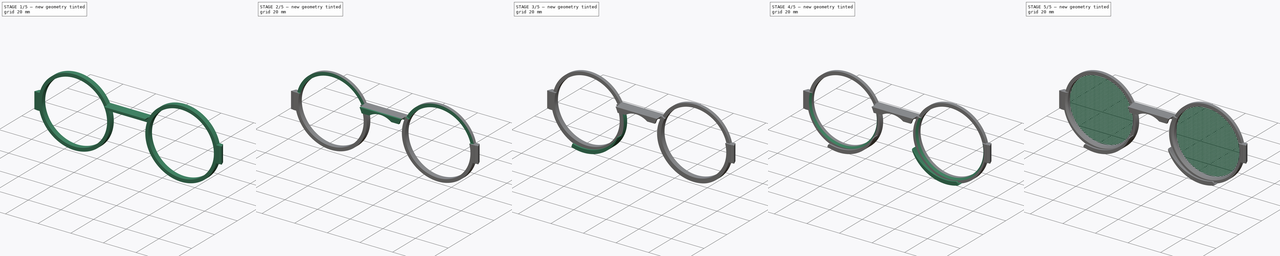
[diagram: build sequence overview — one tinted view per stage of 5, left to right]
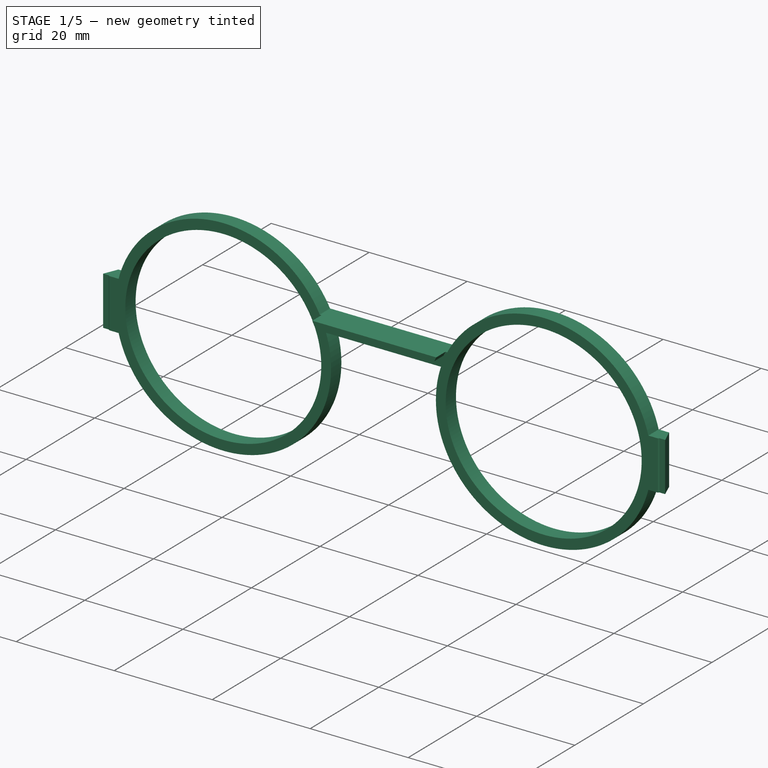
[diagram: stage 1 of 5 — iso view after this stage's code; geometry added in this stage tinted green]
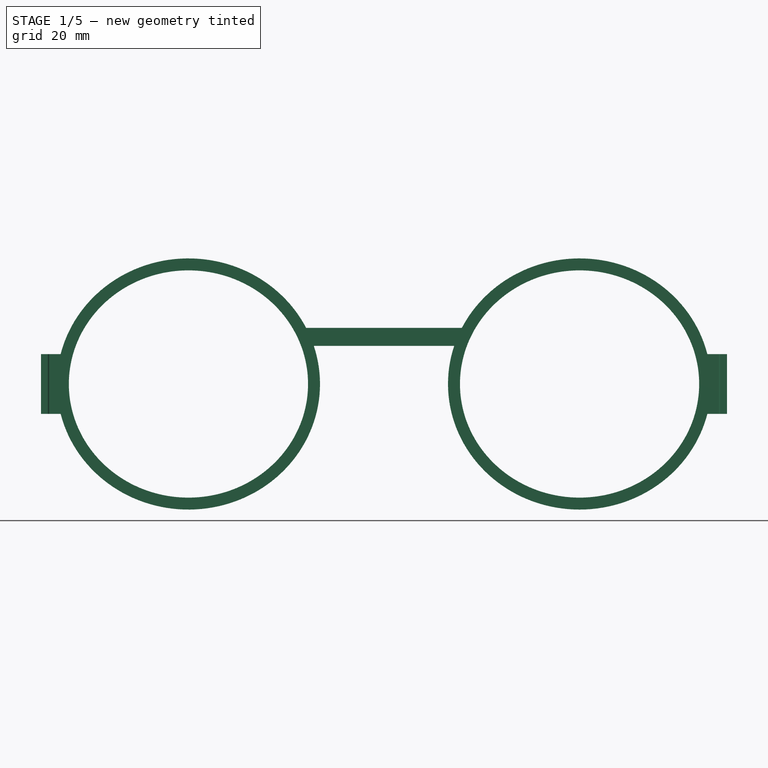
[diagram: stage 1 of 5 — front view after this stage's code; geometry added in this stage tinted green]
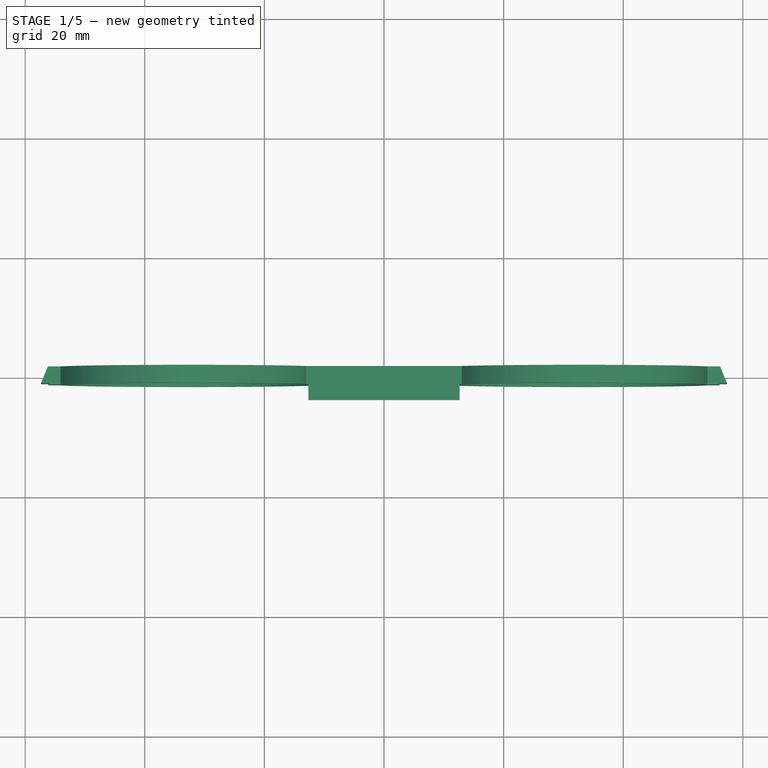
[diagram: stage 1 of 5 — top view after this stage's code; geometry added in this stage tinted green]
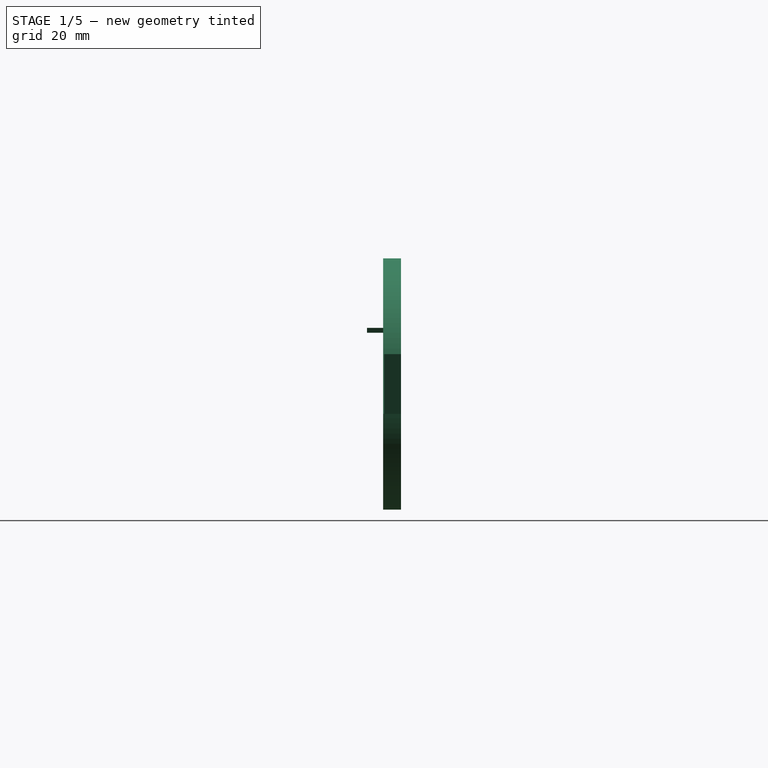
[diagram: stage 1 of 5 — right view after this stage's code; geometry added in this stage tinted green]
FCSTD DOCUMENT  (FreeCAD 1.1R39288 (Git))
Label: subframe
License: All rights reserved
LicenseURL: http://en.wikipedia.org/wiki/All_rights_reserved
objects: Sketcher::SketchObject×11, PartDesign::Pad×10, PartDesign::Mirrored×5, PartDesign::Pocket×3, PartDesign::Chamfer×1, PartDesign::Fillet×1, PartDesign::Body×1
note: 78 computed .brp shape members not serialized (recipe doc carries the construction recipe); baked Part::Feature solids carry a one-line shape summary decoded from their .brp

FEATURE [Sketcher::SketchObject] Sketch
  ArcFitTolerance = 1e-06
  AttachmentSupport = -> [XZ_Plane]
  FullyConstrained = true
  MakeInternals = false
  MapMode = 5
  Placement = pos=(0,0,0) rot=(1,0,0;1.5708rad)
  sketch-geometry (24):
    g0: Ellipse CenterX=-32.7 CenterY=0 CenterZ=0 NormalX=0 NormalY=0 NormalZ=1 MajorRadius=20 MinorRadius=19 AngleXU=-2.2e-15
    g1: LineSegment [constr] StartX=-12.7 StartY=0 StartZ=0 EndX=-52.7 EndY=0 EndZ=0
    g2: LineSegment [constr] StartX=-32.7 StartY=19 StartZ=0 EndX=-32.7 EndY=-19 EndZ=0
    g3: GeomPoint [constr] X=-26.455 Y=-1.37e-14 Z=0
    g4: GeomPoint [constr] X=-38.945 Y=1.39e-14 Z=0
    g5: Ellipse CenterX=32.7 CenterY=0 CenterZ=0 NormalX=0 NormalY=0 NormalZ=1 MajorRadius=20 MinorRadius=19 AngleXU=0
    g6: LineSegment [constr] StartX=52.7 StartY=0 StartZ=0 EndX=12.7 EndY=0 EndZ=0
    g7: LineSegment [constr] StartX=32.7 StartY=19 StartZ=0 EndX=32.7 EndY=-19 EndZ=0
    g8: GeomPoint [constr] X=38.945 Y=0 Z=0
    g9: GeomPoint [constr] X=26.455 Y=0 Z=0
    g10: ArcOfEllipse CenterX=-32.7 CenterY=0 CenterZ=0 NormalX=0 NormalY=0 NormalZ=1 MajorRadius=22 MinorRadius=21 AngleXU=-4.6e-15 StartAngle=0.410218 EndAngle=6.59162
    g11: LineSegment [constr] StartX=-10.7 StartY=0 StartZ=0 EndX=-54.7 EndY=0 EndZ=0
    g12: LineSegment [constr] StartX=-32.7 StartY=21 StartZ=0 EndX=-32.7 EndY=-21 EndZ=0
    g13: GeomPoint [constr] X=-26.1426 Y=-3.02e-14 Z=0
    g14: GeomPoint [constr] X=-39.2574 Y=3e-14 Z=0
    g15: ArcOfEllipse CenterX=32.7 CenterY=0 CenterZ=0 NormalX=0 NormalY=0 NormalZ=1 MajorRadius=22 MinorRadius=21 AngleXU=0 StartAngle=2.83315 EndAngle=9.01456
    g16: LineSegment [constr] StartX=54.7 StartY=0 StartZ=0 EndX=10.7 EndY=0 EndZ=0
    g17: LineSegment [constr] StartX=32.7 StartY=21 StartZ=0 EndX=32.7 EndY=-21 EndZ=0
    g18: GeomPoint [constr] X=39.2574 Y=0 Z=0
    g19: GeomPoint [constr] X=26.1426 Y=-3e-16 Z=0
    g20: LineSegment StartX=-11.7382 StartY=6.375 StartZ=0 EndX=11.7382 EndY=6.375 EndZ=0
    g21: LineSegment StartX=-12.5253 StartY=8.375 StartZ=0 EndX=12.5253 EndY=8.375 EndZ=0
    g22: Circle CenterX=-32.7 CenterY=0 CenterZ=0 NormalX=0 NormalY=0 NormalZ=1 AngleXU=0 Radius=0.5
    g23: Circle CenterX=32.7 CenterY=0 CenterZ=0 NormalX=0 NormalY=0 NormalZ=1 AngleXU=0 Radius=0.5
  constraints (33):
    c: InternalAlignment(g1-g4 -> g0) x4
    c: PointOnObject(g0,g-1)
    c: Horizontal(g1)
    c: DistanceX(g1,g1) = 40
    c: DistanceY(g2,g2) = 38
    c: InternalAlignment(g6-g9 -> g5) x4
    c: Horizontal(g6)
    c: Equal(g1,g6)
    c: Equal(g7,g2)
    c: Symmetric(g5,g0,g-2)
    c: DistanceX(g0,g5) = 65.4
    c: InternalAlignment(g11-g14 -> g10) x4
    c: Coincident(g10,g0)
    c: Horizontal(g11)
    c: DistanceX(g1,g11) = 2
    c: DistanceY(g12,g2) = 2
    c: InternalAlignment(g16-g19 -> g15) x4
    c: Symmetric(g0,g15,g-2)
    c: Horizontal(g16)
    c: Equal(g16,g11)
    c: Equal(g17,g12)
    c: Horizontal(g10,g15)
    c: Horizontal(g15,g10)
    c: Coincident(g20,g10)
    c: Coincident(g20,g15)
    c: Coincident(g21,g10)
    c: Coincident(g21,g15)
    c: Distance(g20,g21) = 2
    c: Distance(g-1,g20) = 6.375
    c: Coincident(g22,g0)
    c: Diameter(g22) = 1
    c: Equal(g22,g23)
    c: Symmetric(g22,g23,g-2)
FEATURE [PartDesign::Pad] Pad  label="Lenses holder"
  Direction = (0,-1,2e-16)
  Length = 3
  Length2 = 10
  Midplane = true
  Placement = pos=(0,0,0) rot=(1,0,0;1.5708rad)
  Profile = -> Sketch
  ReferenceAxis = -> Sketch [N_Axis]
  Suppressed = false
  Type = 0
FEATURE [Sketcher::SketchObject] Sketch012
  ArcFitTolerance = 1e-06
  AttachmentSupport = -> [XY_Plane]
  ExternalGeometry = -> [Pad]
  FullyConstrained = true
  MakeInternals = false
  MapMode = 5
  sketch-geometry (26):
    g0: LineSegment StartX=-53.2 StartY=1.5 StartZ=0 EndX=-56.2 EndY=1.5 EndZ=0
    g1: LineSegment [constr] StartX=-56.2 StartY=1.5 StartZ=0 EndX=-56.2 EndY=-1.5 EndZ=0
    g2: LineSegment StartX=-53.2 StartY=-1.5 StartZ=0 EndX=-53.2 EndY=1.5 EndZ=0
    g3: LineSegment StartX=53.2 StartY=-1.5 StartZ=0 EndX=53.2 EndY=1.5 EndZ=0
    g4: LineSegment StartX=53.2 StartY=1.5 StartZ=0 EndX=56.2 EndY=1.5 EndZ=0
    g5: LineSegment [constr] StartX=-54.7 StartY=-3.5 StartZ=0 EndX=-10.7 EndY=-3.5 EndZ=0
    g6: Circle [constr] CenterX=-56.2 CenterY=-5 CenterZ=0 NormalX=0 NormalY=0 NormalZ=1 AngleXU=0 Radius=1.5
    g7: ArcOfCircle [constr] CenterX=-53.2 CenterY=-5 CenterZ=0 NormalX=0 NormalY=0 NormalZ=1 AngleXU=0 Radius=1.5 StartAngle=1.5708 EndAngle=3.14159
    g8: LineSegment [constr] StartX=-58.7 StartY=-5 StartZ=0 EndX=-74.5344 EndY=-90 EndZ=0
    g9: LineSegment [constr] StartX=-58.7 StartY=-5 StartZ=0 EndX=-57.7 EndY=-5 EndZ=0
    g10: LineSegment [constr] StartX=-74.5344 StartY=-90 StartZ=0 EndX=-72.5682 EndY=-90.3663 EndZ=0
    g11: LineSegment [constr] StartX=-72.5682 StartY=-90.3663 StartZ=0 EndX=-72.5 EndY=-90 EndZ=0
    g12: LineSegment [constr] StartX=72.5682 StartY=-90.3663 StartZ=0 EndX=72.5 EndY=-90 EndZ=0
    g13: ArcOfEllipse [constr] CenterX=-56.2 CenterY=-6.90806 CenterZ=0 NormalX=0 NormalY=0 NormalZ=1 MajorRadius=5.40806 MinorRadius=2.67182 AngleXU=1.5708 StartAngle=1.11969e-07 EndAngle=1.21022
    g14: GeomPoint [constr] X=-56.2 Y=-1.5 Z=0
    g15: LineSegment StartX=-56.2 StartY=1.5 StartZ=0 EndX=-57.362 EndY=-1.3 EndZ=0
    g16: LineSegment StartX=-57.362 StartY=-1.3 StartZ=0 EndX=-56.2 EndY=-1.3 EndZ=0
    g17: LineSegment [constr] StartX=-57.362 StartY=-1.3 StartZ=0 EndX=-58.2458 EndY=-3.4296 EndZ=0
    g18: LineSegment StartX=57.362 StartY=-1.3 StartZ=0 EndX=56.2 EndY=-1.3 EndZ=0
    g19: LineSegment StartX=56.2 StartY=1.5 StartZ=0 EndX=57.362 EndY=-1.3 EndZ=0
    g20: LineSegment StartX=-56.2 StartY=-1.3 StartZ=0 EndX=-56 EndY=-1.5 EndZ=0
    g21: LineSegment [constr] StartX=-56.2 StartY=-1.5 StartZ=0 EndX=-56 EndY=-1.5 EndZ=0
    g22: GeomPoint [constr] X=-56.2 Y=-1.5 Z=0
    g23: LineSegment StartX=56.2 StartY=-1.3 StartZ=0 EndX=56 EndY=-1.5 EndZ=0
    g24: LineSegment StartX=-53.2 StartY=-1.5 StartZ=0 EndX=-56 EndY=-1.5 EndZ=0
    g25: LineSegment StartX=53.2 StartY=-1.5 StartZ=0 EndX=56 EndY=-1.5 EndZ=0
  constraints (71):
    c: Coincident(g0,g1)
    c: Coincident(g2,g0)
    c: Horizontal(g0)
    c: Vertical(g2)
    c: Coincident(g3,g4)
    c: Symmetric(g3,g0,g-2)
    c: Horizontal(g5)
    c: Vertical(g-3,g5)
    c: Vertical(g-3,g5)
    c: Diameter(g6) = 3
    c: Distance(g-3,g5) = 2
    c: Tangent(g5,g6)
    c: PointOnObject(g6,g1)
    c: Symmetric(g1,g0,g-1)
    c: PointOnObject(g7,g6)
    c: PointOnObject(g7,g5)
    c: Horizontal(g6,g7)
    c: Vertical(g7,g7)
    c: Horizontal(g7,g7)
    c: Vertical(g5,g7)
    c: PointOnObject(g7,g2)
    c: Coincident(g9,g8)
    c: PointOnObject(g9,g6)
    c: Horizontal(g9)
    c: PointOnObject(g6,g9)
    c: DistanceX(g9,g9) = 1
    c: Coincident(g10,g8)
    c: Coincident(g11,g10)
    c: Perpendicular(g10,g8)
    c: Parallel(g8,g11)
    c: Horizontal(g8,g11)
    c: Distance(g10,g10) = 2
    c: Symmetric(g11,g12,g-2)
    c: Symmetric(g11,g12,g-2)
    c: DistanceX(g11,g12) = 145
    c: DistanceY(g11,g6) = 85
    c: Coincident(g1,g13)
    c: PointOnObject(g14,g13)
    c: Tangent(g13,g8) = -1.5708
    c: Vertical(g13,g6)
    c: Coincident(g15,g0)
    c: Coincident(g16,g15)
    c: PointOnObject(g16,g1)
    c: Horizontal(g16)
    c: Coincident(g17,g15)
    c: Tangent(g17,g13) = -1.5708
    c: PointOnObject(g17,g15)
    c: Symmetric(g15,g19,g-2)
    c: Symmetric(g15,g19,g-2)
    c: Symmetric(g16,g18,g-2)
    c: Symmetric(g16,g18,g-2)
    c: Coincident(g20,g16)
    c: Angle(g1,g20) = 0.785398
    c: Coincident(g20,g21)
    c: Coincident(g14,g21)
    c: PointOnObject(g14,g1)
    c: PointOnObject(g22,g13)
    c: PointOnObject(g22,g21)
    c: Tangent(g13,g21,g22) = 1.5708
    c: Symmetric(g20,g23,g-2)
    c: Symmetric(g20,g23,g-2)
    c: Coincident(g24,g2)
    c: Coincident(g20,g24)
    c: Horizontal(g24)
    c: PointOnObject(g-3,g24)
    c: Distance(g16,g24) = 0.2
    c: Symmetric(g24,g25,g-2)
    c: Symmetric(g24,g25,g-2)
    c: PointOnObject(g22,g24)
    c: Coincident(g3,g25)
    c: Coincident(g4,g19)
FEATURE [PartDesign::Pad] Pad003  label="End pieces"
  BaseFeature = -> Pad
  Direction = (0,0,1)
  Length = 10
  Length2 = 10
  Midplane = true
  Placement = pos=(0,0,0) rot=(1,0,0;1.5708rad)
  Profile = -> Sketch012
  ReferenceAxis = -> Sketch012 [N_Axis]
  Refine = true
  Suppressed = false
  Type = 0
FEATURE [Sketcher::SketchObject] Sketch021  label="Nose bridge hook master sketch"
  ArcFitTolerance = 1e-06
  AttachmentSupport = -> [Pad003]
  ExternalGeometry = -> [Sketch]
  FullyConstrained = true
  MakeInternals = false
  MapMode = 5
  Placement = pos=(0,-1.5,7e-16) rot=(1,0,0;1.5708rad)
  sketch-geometry (45):
    g0: ArcOfEllipse CenterX=-32.7 CenterY=7e-16 CenterZ=0 NormalX=0 NormalY=0 NormalZ=1 MajorRadius=22.3233 MinorRadius=21.3233 AngleXU=-3.14159 StartAngle=3.4452 EndAngle=3.54523
    g1: LineSegment [constr] StartX=-55.0233 StartY=0 StartZ=0 EndX=-10.3767 EndY=1.3e-15 EndZ=0
    g2: LineSegment [constr] StartX=-32.7 StartY=-21.3233 StartZ=0 EndX=-32.7 EndY=21.3233 EndZ=0
    g3: GeomPoint [constr] X=-39.3066 Y=-1e-16 Z=0
    g4: GeomPoint [constr] X=-26.0934 Y=9e-16 Z=0
    g5: LineSegment [constr] StartX=-55.0233 StartY=0 StartZ=0 EndX=-54.7 EndY=0 EndZ=0
    g6: ArcOfEllipse CenterX=32.7 CenterY=7e-16 CenterZ=0 NormalX=0 NormalY=0 NormalZ=1 MajorRadius=22.3233 MinorRadius=21.3233 AngleXU=3.14159 StartAngle=5.87955 EndAngle=5.97957
    g7: LineSegment [constr] StartX=10.3767 StartY=1.3e-15 StartZ=0 EndX=55.0233 EndY=0 EndZ=0
    g8: LineSegment [constr] StartX=32.7 StartY=-21.3233 StartZ=0 EndX=32.7 EndY=21.3233 EndZ=0
    g9: GeomPoint [constr] X=26.0934 Y=1.5e-15 Z=0
    g10: GeomPoint [constr] X=39.3066 Y=5e-16 Z=0
    g11: LineSegment StartX=-12.1706 StartY=8.375 StartZ=0 EndX=12.1706 EndY=8.375 EndZ=0
    g12: LineSegment [constr] StartX=-32.7 StartY=21.3233 StartZ=0 EndX=-32.7 EndY=21 EndZ=0
    g13: ArcOfEllipse CenterX=-32.7 CenterY=7e-16 CenterZ=0 NormalX=0 NormalY=0 NormalZ=1 MajorRadius=22.3233 MinorRadius=21.3233 AngleXU=-3.14159 StartAngle=3.54523 EndAngle=3.55545
    g14: LineSegment [constr] StartX=-55.0233 StartY=0 StartZ=0 EndX=-10.3767 EndY=1.3e-15 EndZ=0
    g15: LineSegment [constr] StartX=-32.7 StartY=-21.3233 StartZ=0 EndX=-32.7 EndY=21.3233 EndZ=0
    g16: GeomPoint [constr] X=-39.3066 Y=-1e-16 Z=0
    g17: GeomPoint [constr] X=-26.0934 Y=9e-16 Z=0
    g18: ArcOfEllipse CenterX=32.7 CenterY=7e-16 CenterZ=0 NormalX=0 NormalY=0 NormalZ=1 MajorRadius=22.3233 MinorRadius=21.3233 AngleXU=3.14159 StartAngle=5.86933 EndAngle=5.87955
    g19: LineSegment [constr] StartX=10.3767 StartY=1.3e-15 StartZ=0 EndX=55.0233 EndY=0 EndZ=0
    g20: LineSegment [constr] StartX=32.7 StartY=-21.3233 StartZ=0 EndX=32.7 EndY=21.3233 EndZ=0
    g21: GeomPoint [constr] X=26.0934 Y=1.5e-15 Z=0
    g22: GeomPoint [constr] X=39.3066 Y=5e-16 Z=0
    g23: LineSegment StartX=-12.2613 StartY=8.575 StartZ=0 EndX=12.2613 EndY=8.575 EndZ=0
    g24: ArcOfEllipse CenterX=-32.7 CenterY=7e-16 CenterZ=0 NormalX=0 NormalY=0 NormalZ=1 MajorRadius=22.3233 MinorRadius=21.3233 AngleXU=-3.14159 StartAngle=3.55545 EndAngle=3.59681
    g25: LineSegment [constr] StartX=-55.0233 StartY=0 StartZ=0 EndX=-10.3767 EndY=1.3e-15 EndZ=0
    g26: LineSegment [constr] StartX=-32.7 StartY=-21.3233 StartZ=0 EndX=-32.7 EndY=21.3233 EndZ=0
    g27: GeomPoint [constr] X=-39.3066 Y=-1e-16 Z=0
    g28: GeomPoint [constr] X=-26.0934 Y=9e-16 Z=0
    g29: ArcOfEllipse CenterX=32.7 CenterY=7e-16 CenterZ=0 NormalX=0 NormalY=0 NormalZ=1 MajorRadius=22.3233 MinorRadius=21.3233 AngleXU=3.14159 StartAngle=5.82797 EndAngle=5.86933
    g30: LineSegment [constr] StartX=10.3767 StartY=1.3e-15 StartZ=0 EndX=55.0233 EndY=0 EndZ=0
    g31: LineSegment [constr] StartX=32.7 StartY=-21.3233 StartZ=0 EndX=32.7 EndY=21.3233 EndZ=0
    g32: GeomPoint [constr] X=26.0934 Y=1.5e-15 Z=0
    g33: GeomPoint [constr] X=39.3066 Y=5e-16 Z=0
    g34: LineSegment StartX=-12.65 StartY=9.375 StartZ=0 EndX=12.65 EndY=9.375 EndZ=0
    g35: LineSegment StartX=-12.65 StartY=9.375 StartZ=0 EndX=-13.014 EndY=9.375 EndZ=0
    g36: LineSegment StartX=-13.014 StartY=9.375 StartZ=0 EndX=-12.5253 EndY=8.375 EndZ=0
    g37: LineSegment StartX=-12.5253 StartY=8.375 StartZ=0 EndX=-12.1706 EndY=8.375 EndZ=0
    g38: LineSegment StartX=13.014 StartY=9.375 StartZ=0 EndX=12.5253 EndY=8.375 EndZ=0
    g39: LineSegment StartX=12.65 StartY=9.375 StartZ=0 EndX=13.014 EndY=9.375 EndZ=0
    g40: LineSegment StartX=12.5253 StartY=8.375 StartZ=0 EndX=12.1706 EndY=8.375 EndZ=0
    g41: LineSegment StartX=-11.3977 StartY=6.375 StartZ=0 EndX=-6.75 EndY=6.375 EndZ=0
    g42: LineSegment StartX=-6.75 StartY=6.375 StartZ=0 EndX=6.75 EndY=6.375 EndZ=0
    g43: LineSegment StartX=6.75 StartY=6.375 StartZ=0 EndX=11.3977 EndY=6.375 EndZ=0
    g44: ArcOfCircle CenterX=-1.9e-15 CenterY=-2.88011 CenterZ=0 NormalX=0 NormalY=0 NormalZ=1 AngleXU=0 Radius=11.4551 StartAngle=0.940658 EndAngle=2.20093
  constraints (73):
    c: InternalAlignment(g1-g4 -> g0) x4
    c: Coincident(g0,g-3)
    c: Coincident(g5,g1)
    c: PointOnObject(g5,g-3)
    c: PointOnObject(g5,g1)
    c: PointOnObject(g1,g-1)
    c: PointOnObject(g0,g-5)
    c: InternalAlignment(g7-g10 -> g6) x4
    c: Symmetric(g7,g1,g-2)
    c: Symmetric(g0,g6,g-2)
    c: Horizontal(g2,g8)
    c: Horizontal(g0,g6)
    c: Horizontal(g0,g6)
    c: Coincident(g43,g6)
    c: PointOnObject(g0,g-4)
    c: Coincident(g11,g0)
    c: Coincident(g11,g6)
    c: Coincident(g41,g0)
    c: Coincident(g12,g2)
    c: PointOnObject(g12,g-3)
    c: Equal(g12,g5)
    c: PointOnObject(g12,g2)
    c: InternalAlignment(g14-g17 -> g13) x4
    c: Coincident(g13,g0)
    c: Coincident(g1,g14)
    c: Horizontal(g2,g15)
    c: PointOnObject(g13,g11)
    c: Distance(g13,g11) = 0.2
    c: InternalAlignment(g19-g22 -> g18) x4
    c: Symmetric(g18,g0,g-2)
    c: Symmetric(g19,g1,g-2)
    c: Horizontal(g20,g2)
    c: Horizontal(g18,g13)
    c: Horizontal(g13,g18)
    c: Coincident(g23,g13)
    c: Coincident(g23,g18)
    c: InternalAlignment(g25-g28 -> g24) x4
    c: Coincident(g24,g0)
    c: Coincident(g1,g25)
    c: Horizontal(g2,g26)
    c: PointOnObject(g24,g23)
    c: InternalAlignment(g30-g33 -> g29) x4
    c: Symmetric(g29,g0,g-2)
    c: Symmetric(g30,g1,g-2)
    c: Horizontal(g31,g2)
    c: Horizontal(g29,g24)
    c: Horizontal(g24,g29)
    c: Coincident(g34,g24)
    c: Coincident(g34,g29)
    c: Coincident(g35,g24)
    c: PointOnObject(g35,g-3)
    c: Horizontal(g35)
    c: Coincident(g35,g36)
    c: Coincident(g36,g-4)
    c: Coincident(g37,g36)
    c: Coincident(g37,g13)
    c: Symmetric(g35,g39,g-2)
    c: Symmetric(g35,g39,g-2)
    c: Symmetric(g36,g38,g-2)
    c: Symmetric(g36,g38,g-2)
    c: Symmetric(g37,g40,g-2)
    c: Symmetric(g37,g40,g-2)
    c: Coincident(g41,g42)
    c: Coincident(g42,g43)
    c: Horizontal(g41)
    c: Horizontal(g43)
    c: Equal(g41,g43)
    c: Coincident(g41,g44)
    c: Coincident(g42,g44)
    c: Tangent(g23,g44)
    c: DistanceX(g41,g42) = 13.5
    c: DistanceX(g34,g34) = 25.3
    c: Distance(g34,g23) = 0.8
FEATURE [PartDesign::Pad] Pad007  label="Nose bridge hook #1"
  BaseFeature = -> Pad003
  Direction = (0,-1,2e-16)
  Length = 10
  Length2 = 10
  Placement = pos=(0,0,0) rot=(1,0,0;1.5708rad)
  Profile = -> Sketch021 [Edge7,Edge6,Edge1,Edge8,Edge11,Edge17,Edge18,Edge19]
  ReferenceAxis = -> Sketch021 [N_Axis]
  Refine = true
  Suppressed = false
  Type = 3
  UpToFace = -> Pad003 [Face17]
FEATURE [PartDesign::Pad] Pad005  label="Nose bridge hook #2"
  BaseFeature = -> Pad007
  Direction = (0,-1,2e-16)
  Length = 2.7
  Length2 = 10
  Placement = pos=(0,0,0) rot=(1,0,0;1.5708rad)
  Profile = -> Sketch021 [Edge5,Edge1,Edge3,Edge2]
  ReferenceAxis = -> Sketch021 [N_Axis]
  Refine = true
  Suppressed = false
  Type = 0
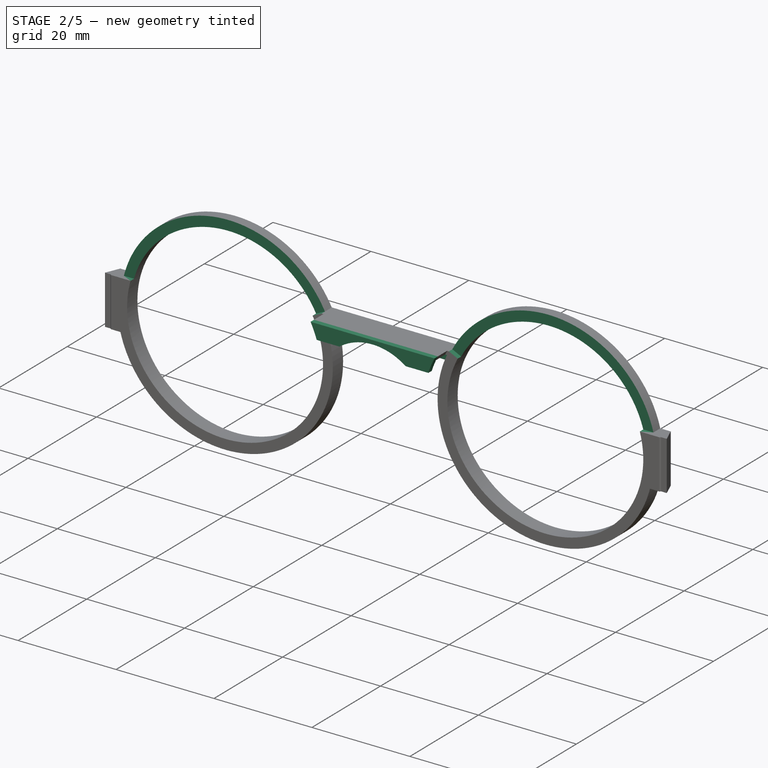
[diagram: stage 2 of 5 — iso view after this stage's code; geometry added in this stage tinted green]
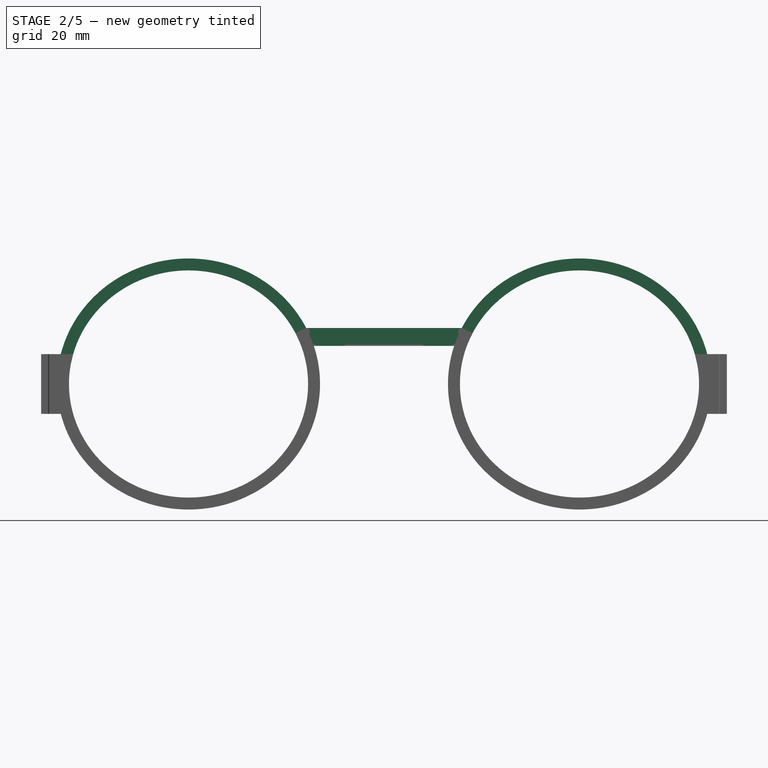
[diagram: stage 2 of 5 — front view after this stage's code; geometry added in this stage tinted green]
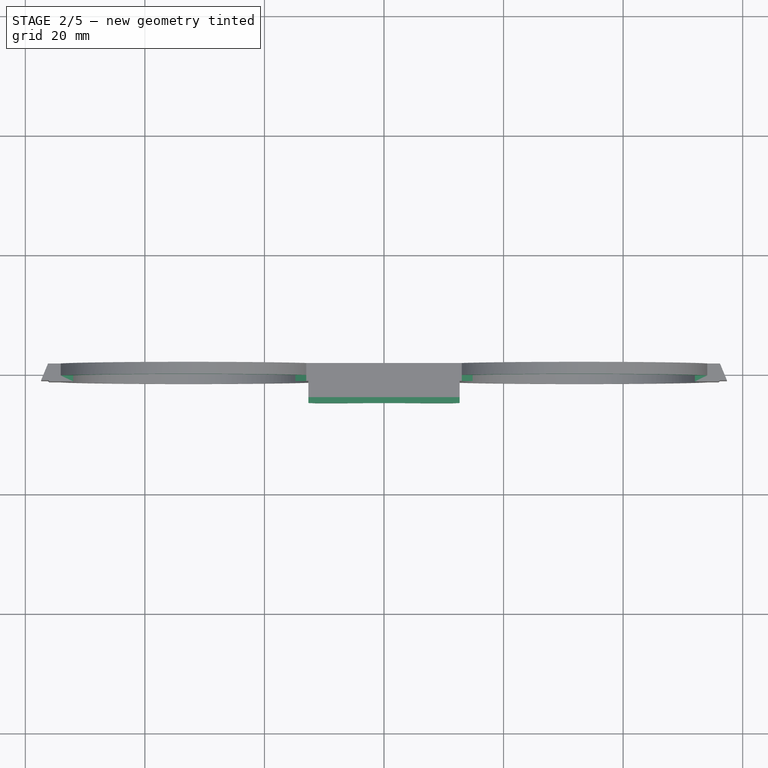
[diagram: stage 2 of 5 — top view after this stage's code; geometry added in this stage tinted green]
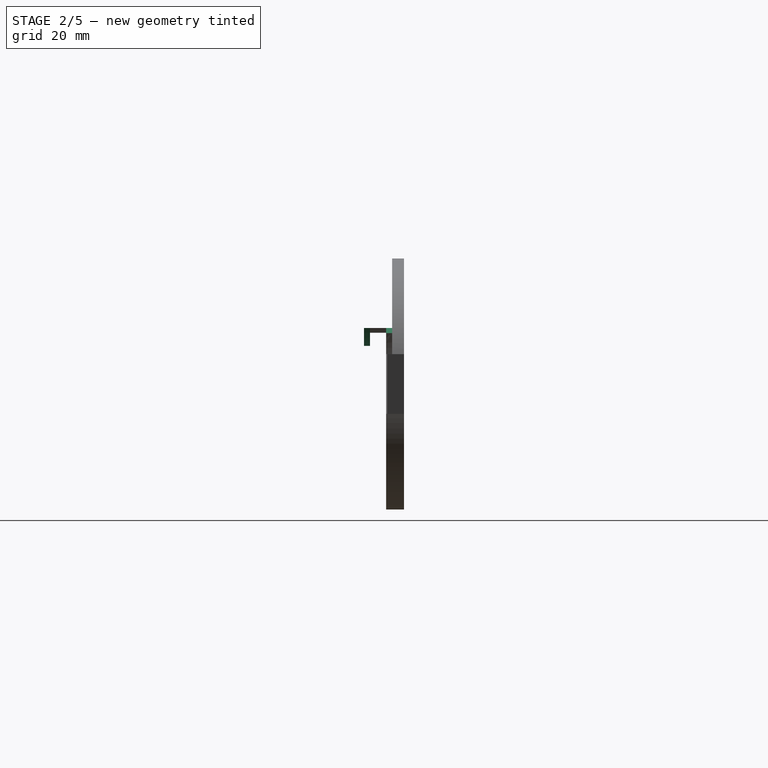
[diagram: stage 2 of 5 — right view after this stage's code; geometry added in this stage tinted green]
FEATURE [Sketcher::SketchObject] Sketch022
  ArcFitTolerance = 1e-06
  AttachmentSupport = -> [Pad005]
  ExternalGeometry = -> [Sketch021]
  FullyConstrained = true
  MakeInternals = false
  MapMode = 5
  Placement = pos=(0,-4.2,0) rot=(1,0,0;1.5708rad)
  sketch-geometry (14):
    g0: ArcOfCircle CenterX=-1.9e-15 CenterY=-2.88011 CenterZ=0 NormalX=0 NormalY=0 NormalZ=1 AngleXU=0 Radius=11.4551 StartAngle=0.940658 EndAngle=2.20093
    g1: LineSegment StartX=-11.3977 StartY=6.375 StartZ=0 EndX=-6.75 EndY=6.375 EndZ=0
    g2: LineSegment StartX=11.3977 StartY=6.375 StartZ=0 EndX=6.75 EndY=6.375 EndZ=0
    g3: ArcOfEllipse CenterX=-32.7 CenterY=8e-16 CenterZ=0 NormalX=0 NormalY=0 NormalZ=1 MajorRadius=22.3233 MinorRadius=21.3233 AngleXU=-3.14159 StartAngle=3.4452 EndAngle=3.59681
    g4: LineSegment [constr] StartX=-55.0233 StartY=0 StartZ=0 EndX=-10.3767 EndY=1.6e-15 EndZ=0
    g5: LineSegment [constr] StartX=-32.7 StartY=-21.3233 StartZ=0 EndX=-32.7 EndY=21.3233 EndZ=0
    g6: GeomPoint [constr] X=-39.3066 Y=0 Z=0
    g7: GeomPoint [constr] X=-26.0934 Y=1.1e-15 Z=0
    g8: ArcOfEllipse CenterX=32.7 CenterY=8e-16 CenterZ=0 NormalX=0 NormalY=0 NormalZ=1 MajorRadius=22.3233 MinorRadius=21.3233 AngleXU=-3.14159 StartAngle=5.82797 EndAngle=5.97957
    g9: LineSegment [constr] StartX=10.3767 StartY=0 StartZ=0 EndX=55.0233 EndY=1.6e-15 EndZ=0
    g10: LineSegment [constr] StartX=32.7 StartY=-21.3233 StartZ=0 EndX=32.7 EndY=21.3233 EndZ=0
    g11: GeomPoint [constr] X=26.0934 Y=0 Z=0
    g12: GeomPoint [constr] X=39.3066 Y=1.1e-15 Z=0
    g13: LineSegment StartX=-12.65 StartY=9.375 StartZ=0 EndX=12.65 EndY=9.375 EndZ=0
  constraints (21):
    c: Coincident(g0,g-5)
    c: Coincident(g0,g-5)
    c: Vertical(g-5,g0)
    c: Coincident(g1,g-4)
    c: Coincident(g1,g0)
    c: Symmetric(g1,g2,g-2)
    c: Symmetric(g1,g2,g-2)
    c: InternalAlignment(g4-g7 -> g3) x4
    c: Coincident(g3,g-3)
    c: Equal(g3,g-3)
    c: PointOnObject(g4,g-1)
    c: PointOnObject(g3,g1)
    c: PointOnObject(g3,g-6)
    c: InternalAlignment(g9-g12 -> g8) x4
    c: Symmetric(g8,g3,g-2)
    c: Equal(g8,g-3)
    c: PointOnObject(g9,g-1)
    c: PointOnObject(g8,g2)
    c: PointOnObject(g8,g-6)
    c: Coincident(g13,g3)
    c: Coincident(g13,g8)
FEATURE [PartDesign::Pad] Pad006  label="Nose bridge hook #3"
  BaseFeature = -> Pad005
  Direction = (0,-1,2e-16)
  Length = 1
  Length2 = 10
  Placement = pos=(0,0,0) rot=(1,0,0;1.5708rad)
  Profile = -> Sketch022
  ReferenceAxis = -> Sketch022 [N_Axis]
  Refine = true
  Suppressed = false
  Type = 0
FEATURE [Sketcher::SketchObject] Sketch025
  ArcFitTolerance = 1e-06
  AttachmentOffset = pos=(0,0,-0.8) rot=(0,0,1;3.14159rad)
  AttachmentSupport = -> [Pad006]
  ExternalGeometry = -> [Sketch,Sketch021]
  FullyConstrained = true
  MakeInternals = false
  MapMode = 5
  Placement = pos=(0,0.7,-7e-16) rot=(0,0.707107,0.707107;3.14159rad)
  sketch-geometry (12):
    g0: ArcOfEllipse CenterX=32.7 CenterY=4.8e-15 CenterZ=0 NormalX=0 NormalY=0 NormalZ=1 MajorRadius=22 MinorRadius=21 AngleXU=-3.14159 StartAngle=5.92434 EndAngle=5.97475
    g1: LineSegment [constr] StartX=10.7 StartY=0 StartZ=0 EndX=54.7 EndY=9.6e-15 EndZ=0
    g2: LineSegment [constr] StartX=32.7 StartY=-21 StartZ=0 EndX=32.7 EndY=21 EndZ=0
    g3: GeomPoint [constr] X=26.1426 Y=4e-15 Z=0
    g4: GeomPoint [constr] X=39.2574 Y=6.2e-15 Z=0
    g5: ArcOfEllipse CenterX=-32.7 CenterY=4.8e-15 CenterZ=0 NormalX=0 NormalY=0 NormalZ=1 MajorRadius=22 MinorRadius=21 AngleXU=-2e-16 StartAngle=0.308439 EndAngle=0.358842
    g6: LineSegment [constr] StartX=-10.7 StartY=0 StartZ=0 EndX=-54.7 EndY=9.6e-15 EndZ=0
    g7: LineSegment [constr] StartX=-32.7 StartY=21 StartZ=0 EndX=-32.7 EndY=-21 EndZ=0
    g8: GeomPoint [constr] X=-26.1426 Y=3.5e-15 Z=0
    g9: GeomPoint [constr] X=-39.2574 Y=6.2e-15 Z=0
    g10: LineSegment StartX=-12.1013 StartY=7.375 StartZ=0 EndX=12.1013 EndY=7.375 EndZ=0
    g11: LineSegment StartX=-11.7382 StartY=6.375 StartZ=0 EndX=11.7382 EndY=6.375 EndZ=0
  constraints (16):
    c: InternalAlignment(g1-g4 -> g0) x4
    c: Coincident(g0,g-3)
    c: PointOnObject(g1,g-1)
    c: Equal(g0,g-3)
    c: PointOnObject(g0,g-5)
    c: Distance(g0,g-4) = 2
    c: InternalAlignment(g6-g9 -> g5) x4
    c: Symmetric(g5,g0,g-2)
    c: PointOnObject(g6,g-1)
    c: Equal(g5,g-3)
    c: PointOnObject(g5,g-5)
    c: Horizontal(g5,g0)
    c: Coincident(g5,g10)
    c: Coincident(g0,g10)
    c: Coincident(g11,g5)
    c: Coincident(g11,g0)
FEATURE [PartDesign::Pocket] Pocket001  label="Nose bridge hook #4"
  BaseFeature = -> Pad006
  Direction = (0,-1,-2e-16)
  Length = 0
  Length2 = 5
  Placement = pos=(0,0,0) rot=(1,0,0;1.5708rad)
  Profile = -> Sketch025
  ReferenceAxis = -> Sketch025 [N_Axis]
  Refine = true
  Suppressed = false
  Type = 3
  UpToFace = -> Pad006 [Face1]
FEATURE [Sketcher::SketchObject] Sketch026
  ArcFitTolerance = 1e-06
  AttachmentSupport = -> [Pocket001]
  ExternalGeometry = -> [Sketch,Sketch021]
  FullyConstrained = true
  MakeInternals = false
  MapMode = 5
  Placement = pos=(0,-1.5,3e-16) rot=(1,0,0;1.5708rad)
  sketch-geometry (12):
    g0: ArcOfEllipse CenterX=-32.7 CenterY=0 CenterZ=0 NormalX=0 NormalY=0 NormalZ=1 MajorRadius=22 MinorRadius=21 AngleXU=3.14159 StartAngle=3.45003 EndAngle=3.56222
    g1: LineSegment [constr] StartX=-54.7 StartY=0 StartZ=0 EndX=-10.7 EndY=0 EndZ=0
    g2: LineSegment [constr] StartX=-32.7 StartY=-21 StartZ=0 EndX=-32.7 EndY=21 EndZ=0
    g3: GeomPoint [constr] X=-39.2574 Y=8e-16 Z=0
    g4: GeomPoint [constr] X=-26.1426 Y=0 Z=0
    g5: ArcOfEllipse CenterX=32.7 CenterY=0 CenterZ=0 NormalX=0 NormalY=0 NormalZ=1 MajorRadius=22 MinorRadius=21 AngleXU=3.14159 StartAngle=5.86256 EndAngle=5.97475
    g6: LineSegment [constr] StartX=10.7 StartY=0 StartZ=0 EndX=54.7 EndY=0 EndZ=0
    g7: LineSegment [constr] StartX=32.7 StartY=-21 StartZ=0 EndX=32.7 EndY=21 EndZ=0
    g8: GeomPoint [constr] X=26.1426 Y=8e-16 Z=0
    g9: GeomPoint [constr] X=39.2574 Y=0 Z=0
    g10: LineSegment StartX=-11.7382 StartY=6.375 StartZ=0 EndX=11.7382 EndY=6.375 EndZ=0
    g11: LineSegment StartX=-12.6177 StartY=8.575 StartZ=0 EndX=12.6177 EndY=8.575 EndZ=0
  constraints (16):
    c: InternalAlignment(g1-g4 -> g0) x4
    c: Coincident(g0,g-3)
    c: PointOnObject(g1,g-1)
    c: Equal(g0,g-3)
    c: PointOnObject(g0,g-4)
    c: InternalAlignment(g6-g9 -> g5) x4
    c: Symmetric(g5,g0,g-2)
    c: PointOnObject(g6,g-1)
    c: Equal(g-3,g5)
    c: PointOnObject(g5,g-4)
    c: Coincident(g10,g0)
    c: Coincident(g5,g10)
    c: PointOnObject(g0,g-5)
    c: PointOnObject(g5,g-5)
    c: Coincident(g11,g0)
    c: Coincident(g11,g5)
FEATURE [PartDesign::Pocket] Pocket002  label="Nose bridge hook ¤5"
  BaseFeature = -> Pocket001
  Direction = (0,1,-2e-16)
  Length = 0.5
  Length2 = 5
  Placement = pos=(0,0,0) rot=(1,0,0;1.5708rad)
  Profile = -> Sketch026
  ReferenceAxis = -> Sketch026 [N_Axis]
  Refine = true
  Suppressed = false
  Type = 0
FEATURE [Sketcher::SketchObject] Sketch027
  ArcFitTolerance = 1e-06
  AttachmentSupport = -> [Pocket002]
  ExternalGeometry = -> [Sketch,Pocket002,Sketch021]
  FullyConstrained = true
  MakeInternals = false
  MapMode = 5
  Placement = pos=(0,-1.5,3e-16) rot=(1,0,0;1.5708rad)
  sketch-geometry (12):
    g0: LineSegment StartX=-56 StartY=5 StartZ=0 EndX=-32.7 EndY=5 EndZ=0
    g1: LineSegment StartX=-32.7 StartY=5 StartZ=0 EndX=-32.7 EndY=0 EndZ=0
    g2: LineSegment StartX=-32.7 StartY=0 StartZ=0 EndX=-13.014 EndY=9.375 EndZ=0
    g3: LineSegment StartX=-13.014 StartY=9.375 StartZ=0 EndX=-13.014 EndY=32.675 EndZ=0
    g4: LineSegment StartX=-13.014 StartY=32.675 StartZ=0 EndX=-56 EndY=32.675 EndZ=0
    g5: LineSegment StartX=-56 StartY=5 StartZ=0 EndX=-56 EndY=32.675 EndZ=0
    g6: LineSegment StartX=56 StartY=5 StartZ=0 EndX=56 EndY=32.675 EndZ=0
    g7: LineSegment StartX=13.014 StartY=32.675 StartZ=0 EndX=56 EndY=32.675 EndZ=0
    g8: LineSegment StartX=13.014 StartY=9.375 StartZ=0 EndX=13.014 EndY=32.675 EndZ=0
    g9: LineSegment StartX=32.7 StartY=0 StartZ=0 EndX=13.014 EndY=9.375 EndZ=0
    g10: LineSegment StartX=32.7 StartY=5 StartZ=0 EndX=32.7 EndY=0 EndZ=0
    g11: LineSegment StartX=56 StartY=5 StartZ=0 EndX=32.7 EndY=5 EndZ=0
  constraints (27):
    c: Coincident(g0,g-4)
    c: Horizontal(g0)
    c: Coincident(g1,g0)
    c: Coincident(g1,g-3)
    c: Vertical(g1)
    c: Coincident(g2,g1)
    c: Coincident(g2,g-5)
    c: Coincident(g3,g2)
    c: Vertical(g3)
    c: Coincident(g4,g3)
    c: Horizontal(g4)
    c: Coincident(g5,g0)
    c: Coincident(g5,g4)
    c: Vertical(g5)
    c: Equal(g0,g3)
    c: Symmetric(g0,g11,g-2)
    c: Symmetric(g0,g11,g-2)
    c: Symmetric(g1,g10,g-2)
    c: Symmetric(g1,g10,g-2)
    c: Symmetric(g2,g9,g-2)
    c: Symmetric(g2,g9,g-2)
    c: Symmetric(g3,g8,g-2)
    c: Symmetric(g3,g8,g-2)
    c: Symmetric(g4,g7,g-2)
    c: Symmetric(g4,g7,g-2)
    c: Symmetric(g5,g6,g-2)
    c: Symmetric(g5,g6,g-2)
FEATURE [PartDesign::Pocket] Pocket  label="Top clearance for the lenses"
  BaseFeature = -> Pocket002
  Direction = (0,1,-2e-16)
  Length = 1
  Length2 = 5
  Placement = pos=(0,0,0) rot=(1,0,0;1.5708rad)
  Profile = -> Sketch027
  ReferenceAxis = -> Sketch027 [N_Axis]
  Refine = true
  Suppressed = false
  Type = 0
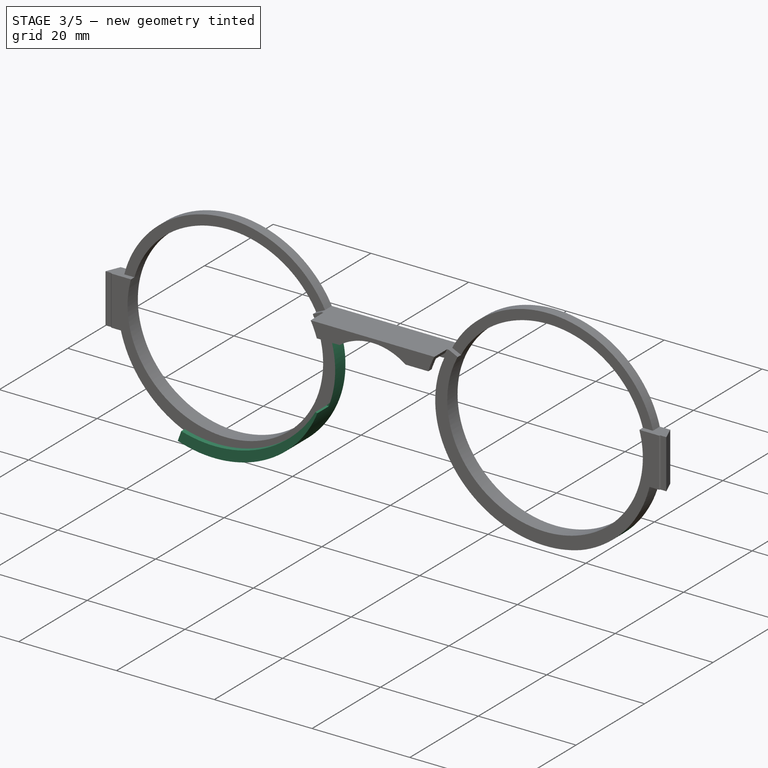
[diagram: stage 3 of 5 — iso view after this stage's code; geometry added in this stage tinted green]
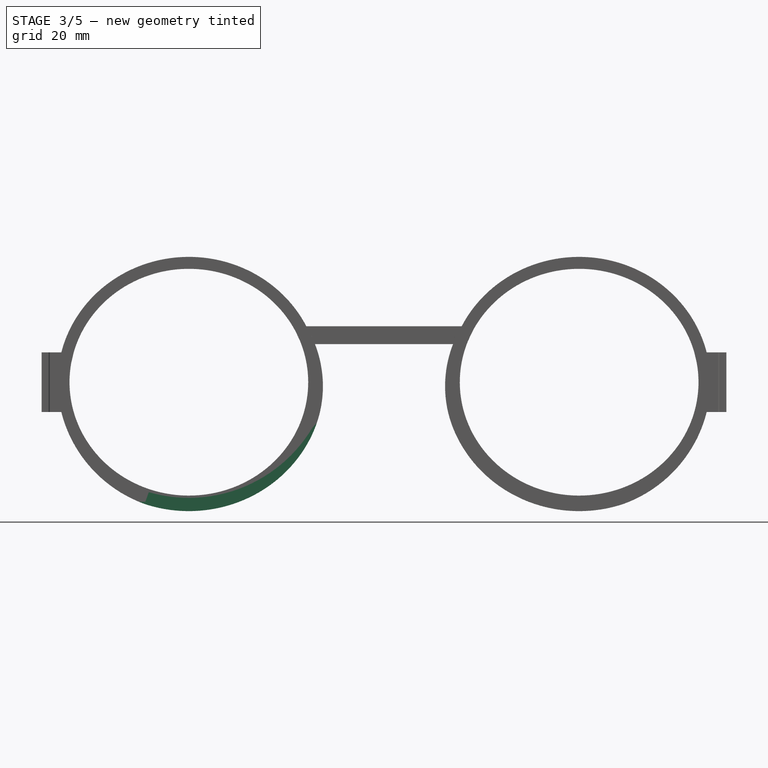
[diagram: stage 3 of 5 — front view after this stage's code; geometry added in this stage tinted green]
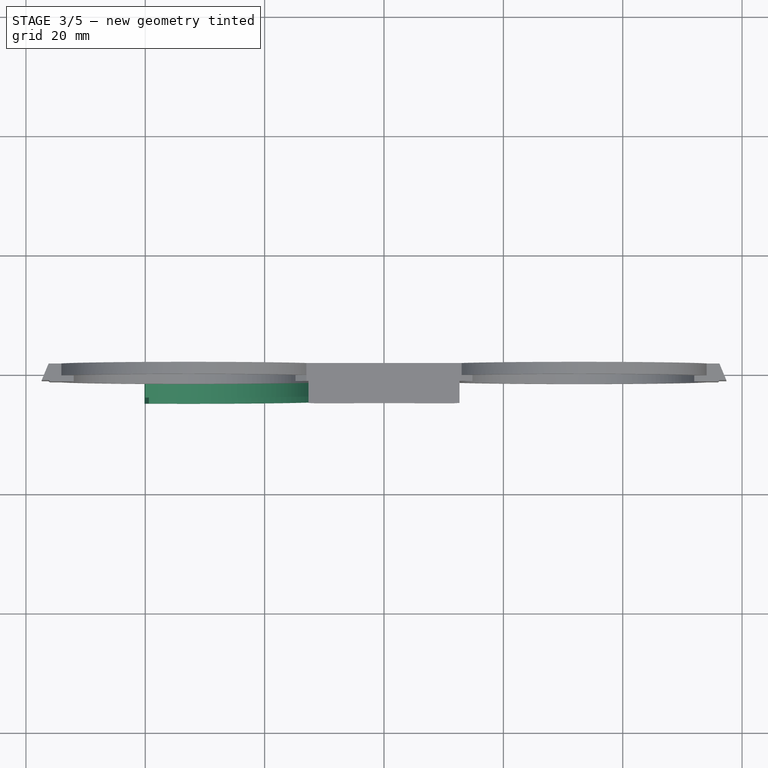
[diagram: stage 3 of 5 — top view after this stage's code; geometry added in this stage tinted green]
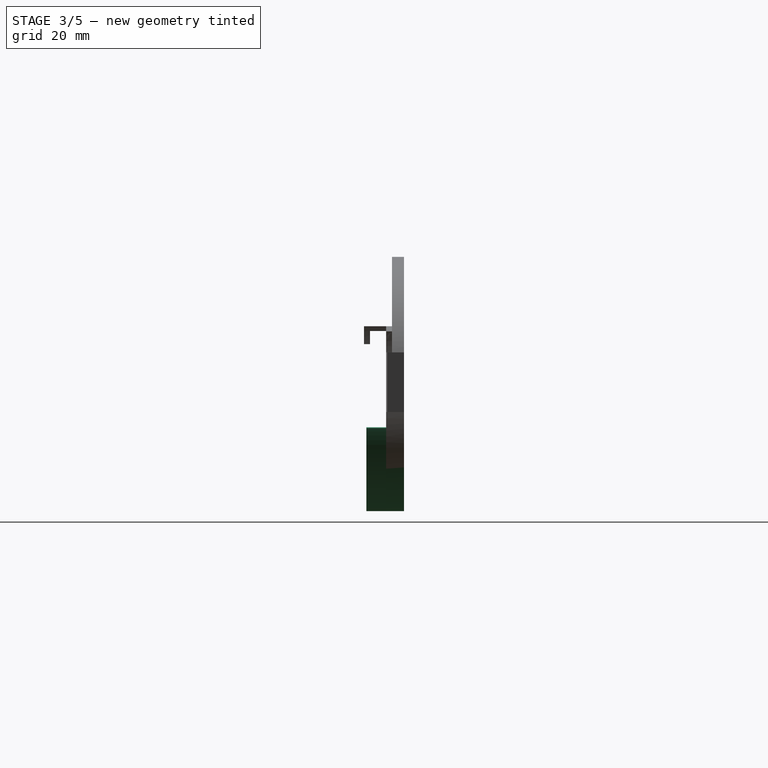
[diagram: stage 3 of 5 — right view after this stage's code; geometry added in this stage tinted green]
FEATURE [Sketcher::SketchObject] Sketch028  label="Left-hand side hook wall master sketch"
  ArcFitTolerance = 1e-06
  AttachmentSupport = -> [Pocket]
  ExternalGeometry = -> [Sketch,Sketch021,Pocket]
  FullyConstrained = true
  MakeInternals = false
  MapMode = 5
  Placement = pos=(0,-1.5,3e-16) rot=(1,0,0;1.5708rad)
  sketch-geometry (32):
    g0: LineSegment [constr] StartX=-32.7 StartY=3e-16 StartZ=0 EndX=-39.92 EndY=-19.8369 EndZ=0
    g1: LineSegment [constr] StartX=-39.92 StartY=-19.8369 StartZ=0 EndX=-39.9884 EndY=-20.0248 EndZ=0
    g2: LineSegment StartX=-39.9884 StartY=-20.0248 StartZ=0 EndX=-40.1253 EndY=-20.4007 EndZ=0
    g3: LineSegment [constr] StartX=-32.7 StartY=3e-16 StartZ=0 EndX=-54.7 EndY=0 EndZ=0
    g4: LineSegment [constr] StartX=-54.7 StartY=0 StartZ=0 EndX=-54.9 EndY=0 EndZ=0
    g5: LineSegment [constr] StartX=-54.9 StartY=0 StartZ=0 EndX=-55.3 EndY=0 EndZ=0
    g6: ArcOfEllipse CenterX=-32.7 CenterY=3e-16 CenterZ=0 NormalX=0 NormalY=0 NormalZ=1 MajorRadius=22 MinorRadius=21 AngleXU=-3.14159 StartAngle=0.240404 EndAngle=3.60436
    g7: LineSegment [constr] StartX=-54.7 StartY=0 StartZ=0 EndX=-10.7 EndY=6e-16 EndZ=0
    g8: LineSegment [constr] StartX=-32.7 StartY=-21 StartZ=0 EndX=-32.7 EndY=21 EndZ=0
    g9: GeomPoint [constr] X=-39.2574 Y=2e-16 Z=0
    g10: GeomPoint [constr] X=-26.1426 Y=4e-16 Z=0
    g11: ArcOfEllipse CenterX=-32.7 CenterY=3e-16 CenterZ=0 NormalX=0 NormalY=0 NormalZ=1 MajorRadius=22.2 MinorRadius=21.1999 AngleXU=-3.14159 StartAngle=1.23628 EndAngle=2.77745
    g12: LineSegment [constr] StartX=-54.9 StartY=0 StartZ=0 EndX=-10.5 EndY=6e-16 EndZ=0
    g13: LineSegment [constr] StartX=-32.7 StartY=-21.1999 StartZ=0 EndX=-32.7 EndY=21.1999 EndZ=0
    g14: GeomPoint [constr] X=-39.2881 Y=2e-16 Z=0
    g15: GeomPoint [constr] X=-26.1119 Y=4e-16 Z=0
    g16: ArcOfEllipse CenterX=-32.7 CenterY=3e-16 CenterZ=0 NormalX=0 NormalY=0 NormalZ=1 MajorRadius=22.6 MinorRadius=21.5998 AngleXU=-3.14159 StartAngle=1.23603 EndAngle=2.77773
    g17: LineSegment [constr] StartX=-55.3 StartY=0 StartZ=0 EndX=-10.1 EndY=7e-16 EndZ=0
    g18: LineSegment [constr] StartX=-32.7 StartY=-21.5998 StartZ=0 EndX=-32.7 EndY=21.5998 EndZ=0
    g19: GeomPoint [constr] X=-39.349 Y=2e-16 Z=0
    g20: GeomPoint [constr] X=-26.051 Y=4e-16 Z=0
    g21: ArcOfEllipse CenterX=-32.7 CenterY=0 CenterZ=0 NormalX=0 NormalY=0 NormalZ=1 MajorRadius=22.0471 MinorRadius=21.71 AngleXU=2.79253 StartAngle=0.58601 EndAngle=1.5708
    g22: LineSegment [constr] StartX=-53.4175 StartY=7.54055 StartZ=0 EndX=-11.9825 EndY=-7.54055 EndZ=0
    g23: LineSegment [constr] StartX=-40.1253 StartY=-20.4007 StartZ=0 EndX=-25.2747 EndY=20.4007 EndZ=0
    g24: GeomPoint [constr] X=-36.309 Y=1.31358 Z=0
    g25: GeomPoint [constr] X=-29.091 Y=-1.31358 Z=0
    g26: LineSegment StartX=-11.9557 StartY=-7.55032 StartZ=0 EndX=-11.5797 EndY=-7.68717 EndZ=0
    g27: ArcOfEllipse CenterX=-32.7 CenterY=0 CenterZ=0 NormalX=0 NormalY=0 NormalZ=1 MajorRadius=22.5304 MinorRadius=20.6279 AngleXU=-0.189523 StartAngle=6.10921 EndAngle=6.95977
    g28: LineSegment [constr] StartX=-10.573 StartY=-4.24452 StartZ=0 EndX=-54.827 EndY=4.24452 EndZ=0
    g29: LineSegment [constr] StartX=-28.8139 StartY=20.2585 StartZ=0 EndX=-36.5861 EndY=-20.2585 EndZ=0
    g30: GeomPoint [constr] X=-23.8008 Y=-1.7071 Z=0
    g31: GeomPoint [constr] X=-41.5992 Y=1.7071 Z=0
  constraints (47):
    c: Coincident(g0,g-3)
    c: PointOnObject(g0,g-3)
    c: Coincident(g1,g0)
    c: PointOnObject(g1,g0)
    c: Distance(g1,g1) = 0.2
    c: Coincident(g2,g1)
    c: PointOnObject(g2,g0)
    c: Distance(g2,g2) = 0.4
    c: Coincident(g3,g0)
    c: PointOnObject(g3,g-3)
    c: Coincident(g4,g3)
    c: Coincident(g5,g4)
    c: PointOnObject(g4,g3)
    c: PointOnObject(g5,g3)
    c: Equal(g4,g1)
    c: Equal(g5,g2)
    c: PointOnObject(g3,g-1)
    c: InternalAlignment(g7-g10 -> g6) x4
    c: Coincident(g6,g0)
    c: PointOnObject(g7,g-1)
    c: Equal(g6,g-3)
    c: InternalAlignment(g12-g15 -> g11) x4
    c: Coincident(g11,g0)
    c: Coincident(g12,g4)
    c: Coincident(g11,g1)
    c: InternalAlignment(g17-g20 -> g16) x4
    c: Coincident(g16,g0)
    c: Coincident(g5,g17)
    c: Coincident(g16,g2)
    c: InternalAlignment(g22-g25 -> g21) x4
    c: Coincident(g21,g0)
    c: Coincident(g2,g23)
    c: PointOnObject(g21,g0)
    c: Coincident(g27,g0)
    c: Coincident(g26,g11)
    c: Angle(g0,g8) = 0.349066
    c: PointOnObject(g11,g22)
    c: PointOnObject(g26,g22)
    c: PointOnObject(g26,g16)
    c: InternalAlignment(g28-g31 -> g27) x4
    c: PointOnObject(g16,g22)
    c: Tangent(g27,g16) = -1.5708
    c: PointOnObject(g27,g-3)
    c: PointOnObject(g27,g-4)
    c: PointOnObject(g6,g-4)
    c: PointOnObject(g6,g-5)
    c: Coincident(g6,g21)
FEATURE [PartDesign::Pad] Pad008  label="Left-hand side hook wall #1"
  BaseFeature = -> Pocket
  Direction = (1,1,1)
  Length = 10
  Length2 = 10
  Placement = pos=(0,0,0) rot=(1,0,0;1.5708rad)
  Profile = -> Sketch028 [Edge7,Edge6,Edge4,Edge5]
  ReferenceAxis = -> Sketch028 [N_Axis]
  Refine = true
  Suppressed = false
  Type = 3
  UpToFace = -> Pocket [Face19]
FEATURE [PartDesign::Pad] Pad009  label="Left-hand side hook wall #2"
  BaseFeature = -> Pad008
  Direction = (1,1,1)
  Length = 2.3
  Length2 = 10
  Placement = pos=(0,0,0) rot=(1,0,0;1.5708rad)
  Profile = -> Sketch028 [Edge3,Edge2,Edge4,Edge1]
  ReferenceAxis = -> Sketch028 [N_Axis]
  Refine = true
  Suppressed = false
  Type = 0
FEATURE [Sketcher::SketchObject] Sketch029
  ArcFitTolerance = 1e-06
  AttachmentSupport = -> [Pad009]
  ExternalGeometry = -> [Sketch028,Sketch]
  FullyConstrained = true
  MakeInternals = false
  MapMode = 5
  Placement = pos=(0,-3.8,0) rot=(1,0,0;1.5708rad)
  sketch-geometry (12):
    g0: ArcOfEllipse CenterX=-32.7 CenterY=8e-16 CenterZ=0 NormalX=0 NormalY=0 NormalZ=1 MajorRadius=22.6 MinorRadius=21.5998 AngleXU=-3.14159 StartAngle=1.23603 EndAngle=2.77773
    g1: GeomPoint [constr] X=-55.3 Y=0 Z=0
    g2: LineSegment StartX=-40.1253 StartY=-20.4007 StartZ=0 EndX=-39.4068 EndY=-18.4267 EndZ=0
    g3: LineSegment [constr] StartX=-39.4068 StartY=-18.4267 StartZ=0 EndX=-39.2358 EndY=-17.9569 EndZ=0
    g4: ArcOfCircle CenterX=-32.7 CenterY=4.72632 CenterZ=0 NormalX=0 NormalY=0 NormalZ=1 AngleXU=0 Radius=24.1048 StartAngle=4.43043 EndAngle=5.74881
    g5: LineSegment StartX=-11.9557 StartY=-7.55032 StartZ=0 EndX=-11.5797 EndY=-7.68717 EndZ=0
    g6: LineSegment [constr] StartX=-39.2358 StartY=-17.9569 StartZ=0 EndX=-32.7 EndY=0 EndZ=0
    g7: LineSegment [constr] StartX=-32.7 StartY=8e-16 StartZ=0 EndX=-26.1642 EndY=-17.9569 EndZ=0
    g8: LineSegment [constr] StartX=-32.7 StartY=8e-16 StartZ=0 EndX=-32.7 EndY=-19 EndZ=0
    g9: LineSegment [constr] StartX=-39.2358 StartY=-17.9569 StartZ=0 EndX=-32.7 EndY=-17.9569 EndZ=0
    g10: LineSegment [constr] StartX=-32.7 StartY=-17.9569 StartZ=0 EndX=-26.1642 EndY=-17.9569 EndZ=0
    g11: LineSegment [constr] StartX=-26.1642 StartY=-17.9569 StartZ=0 EndX=-25.9932 EndY=-18.4267 EndZ=0
  constraints (34):
    c: Coincident(g0,g-5)
    c: Coincident(g0,g-3)
    c: PointOnObject(g1,g-5)
    c: PointOnObject(g1,g0)
    c: Tangent(g-5,g0,g1) = -1.5708
    c: PointOnObject(g0,g-4)
    c: PointOnObject(g1,g-1)
    c: Coincident(g2,g0)
    c: PointOnObject(g-3,g2)
    c: Coincident(g3,g2)
    c: PointOnObject(g3,g-6)
    c: PointOnObject(g3,g2)
    c: Distance(g3,g3) = 0.5
    c: Coincident(g4,g2)
    c: Coincident(g4,g-4)
    c: Coincident(g5,g4)
    c: Coincident(g0,g5)
    c: Coincident(g6,g3)
    c: Coincident(g6,g0)
    c: Coincident(g7,g0)
    c: Coincident(g8,g0)
    c: PointOnObject(g8,g-6)
    c: Coincident(g9,g3)
    c: PointOnObject(g9,g8)
    c: Coincident(g10,g9)
    c: Coincident(g10,g7)
    c: Equal(g9,g10)
    c: Perpendicular(g8,g9)
    c: Perpendicular(g10,g8)
    c: PointOnObject(g7,g-6)
    c: Coincident(g11,g7)
    c: PointOnObject(g11,g4)
    c: PointOnObject(g11,g7)
    c: Equal(g3,g11)
FEATURE [PartDesign::Pad] Pad010  label="Left-hand side hook"
  BaseFeature = -> Pad009
  Direction = (0,-1,2e-16)
  Length = 1
  Length2 = 10
  Placement = pos=(0,0,0) rot=(1,0,0;1.5708rad)
  Profile = -> Sketch029
  ReferenceAxis = -> Sketch029 [N_Axis]
  Refine = true
  Suppressed = false
  Type = 0
FEATURE [PartDesign::Mirrored] Mirrored  label="Right-hand side hook wall #1"
  BaseFeature = -> Pad010
  MirrorPlane = -> YZ_Plane
  Originals = -> [Pad008]
  Placement = pos=(0,0,0) rot=(1,0,0;1.5708rad)
  Refine = true
  Suppressed = false
  TransformMode = 0
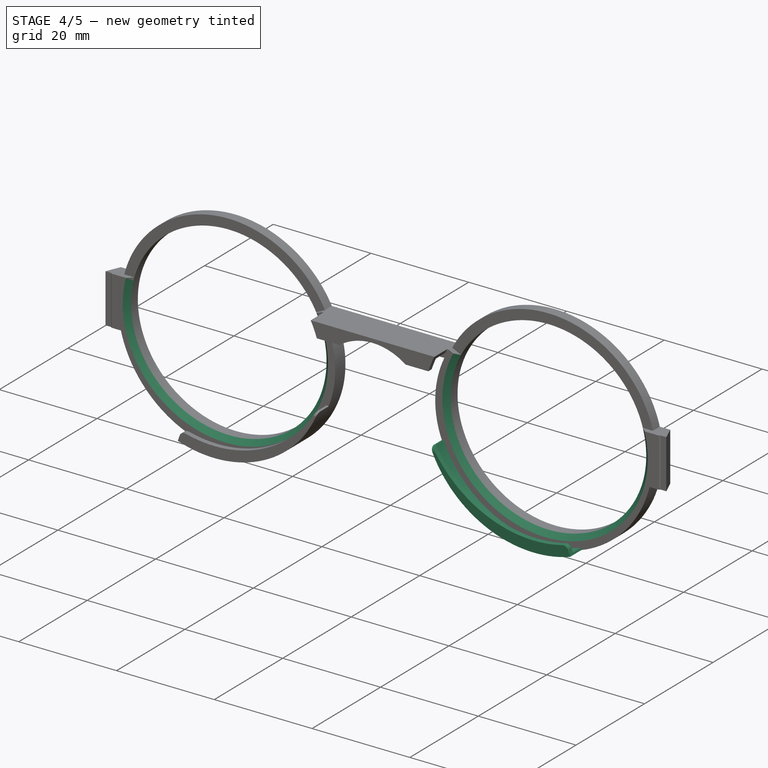
[diagram: stage 4 of 5 — iso view after this stage's code; geometry added in this stage tinted green]
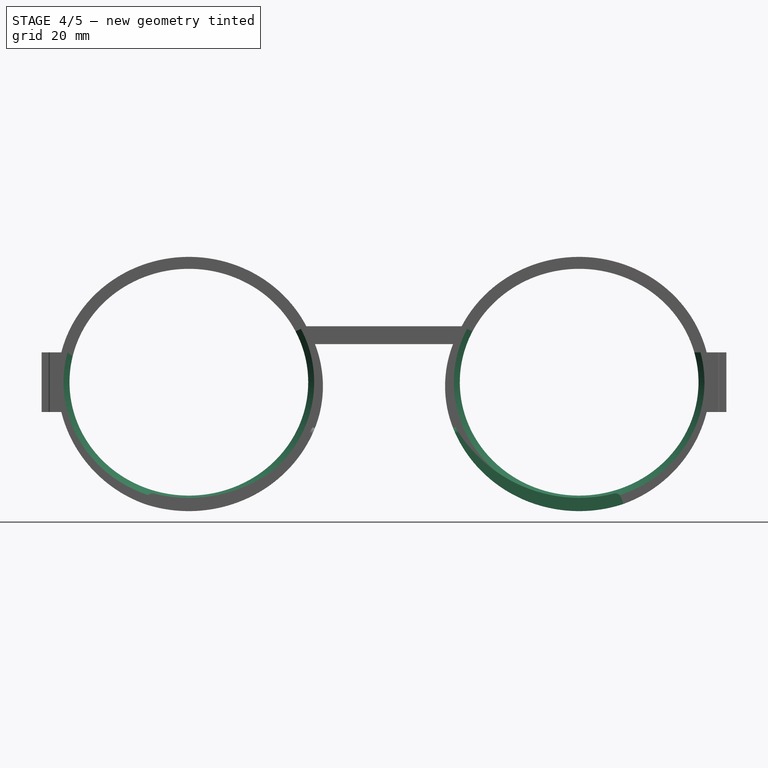
[diagram: stage 4 of 5 — front view after this stage's code; geometry added in this stage tinted green]
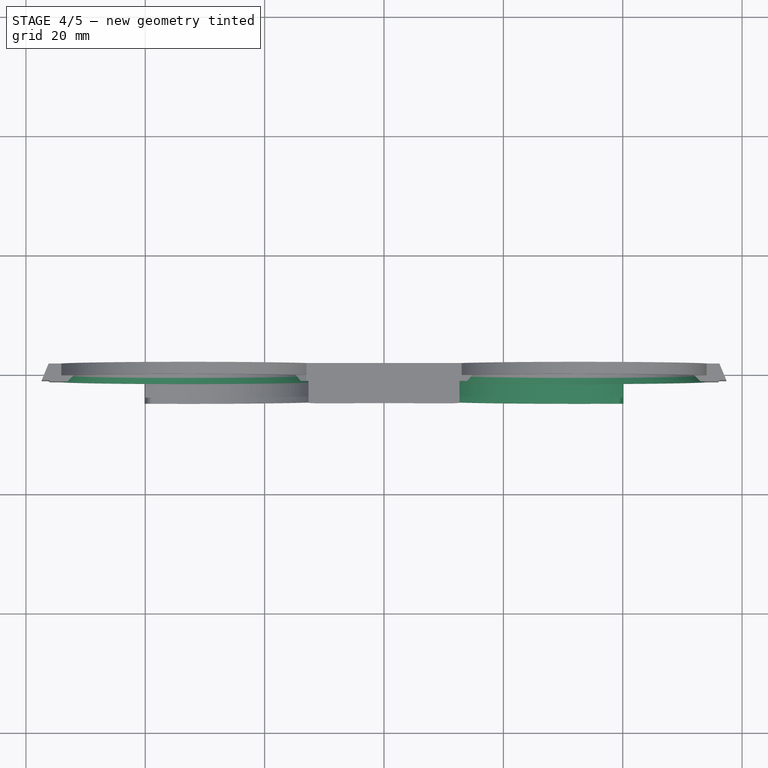
[diagram: stage 4 of 5 — top view after this stage's code; geometry added in this stage tinted green]
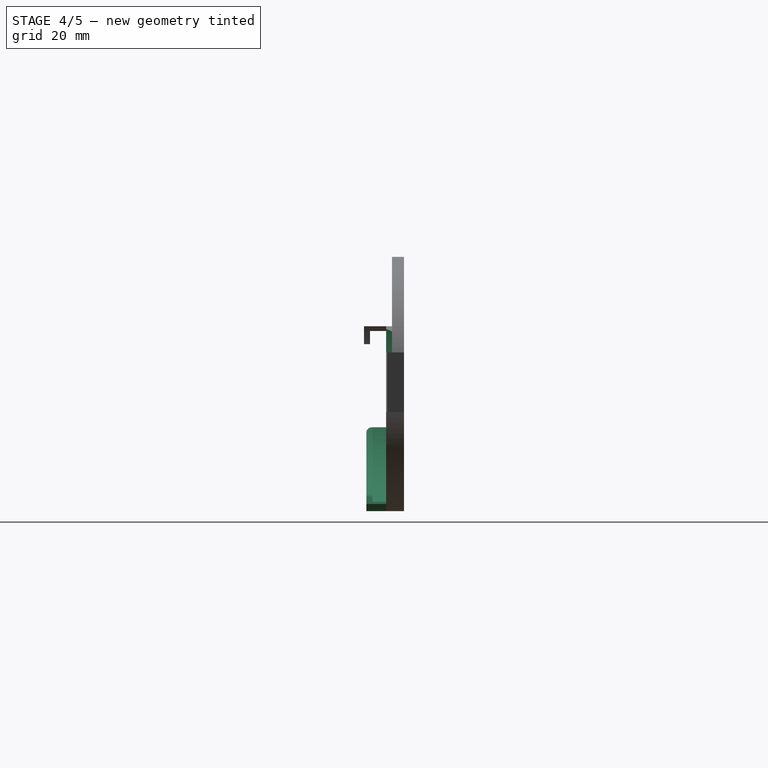
[diagram: stage 4 of 5 — right view after this stage's code; geometry added in this stage tinted green]
FEATURE [PartDesign::Mirrored] Mirrored001  label="Right-hand side hook wall #2"
  BaseFeature = -> Mirrored
  MirrorPlane = -> YZ_Plane
  Originals = -> [Pad009]
  Placement = pos=(0,0,0) rot=(1,0,0;1.5708rad)
  Refine = true
  Suppressed = false
  TransformMode = 0
FEATURE [PartDesign::Mirrored] Mirrored002  label="Right-hand side hook"
  BaseFeature = -> Mirrored001
  MirrorPlane = -> YZ_Plane
  Originals = -> [Pad010]
  Placement = pos=(0,0,0) rot=(1,0,0;1.5708rad)
  Refine = true
  Suppressed = false
  TransformMode = 0
FEATURE [PartDesign::Chamfer] Chamfer  label="Bottom clearance for the lenses"
  Angle = 45
  Base = -> Mirrored002 [Edge113,Edge9]
  BaseFeature = -> Mirrored002
  ChamferType = 0
  FlipDirection = false
  Placement = pos=(0,0,0) rot=(1,0,0;1.5708rad)
  Refine = true
  Size = 1
  Size2 = 1
  SupportTransform = false
  Suppressed = false
  UseAllEdges = false
FEATURE [PartDesign::Fillet] Fillet  label="Left and right hooks edge smoothing"
  Base = -> Chamfer [Edge64,Edge50,Edge156,Edge161]
  BaseFeature = -> Chamfer
  Placement = pos=(0,0,0) rot=(1,0,0;1.5708rad)
  Radius = 1
  Refine = true
  SupportTransform = false
  Suppressed = false
  UseAllEdges = false
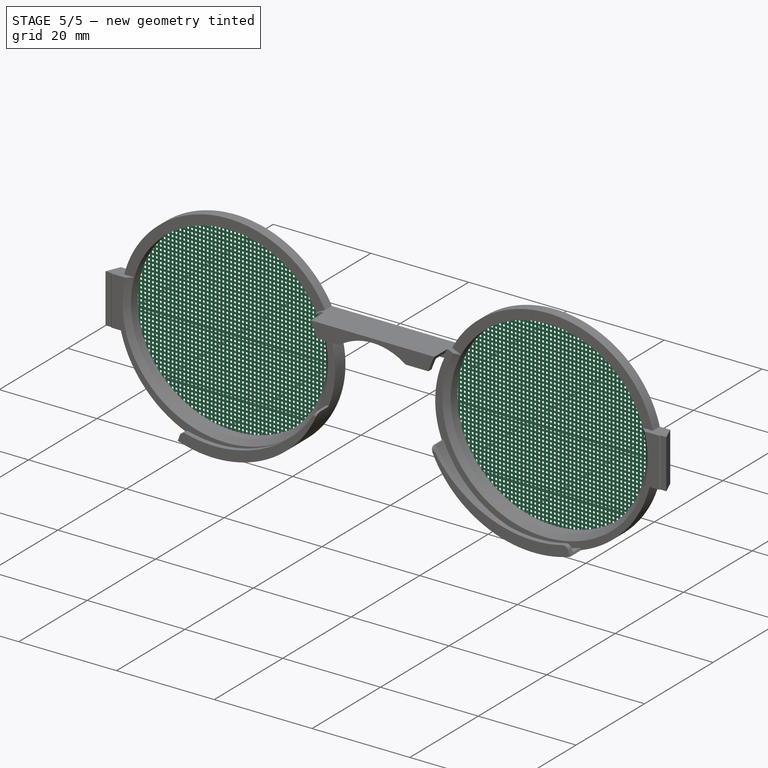
[diagram: stage 5 of 5 — iso view after this stage's code; geometry added in this stage tinted green]
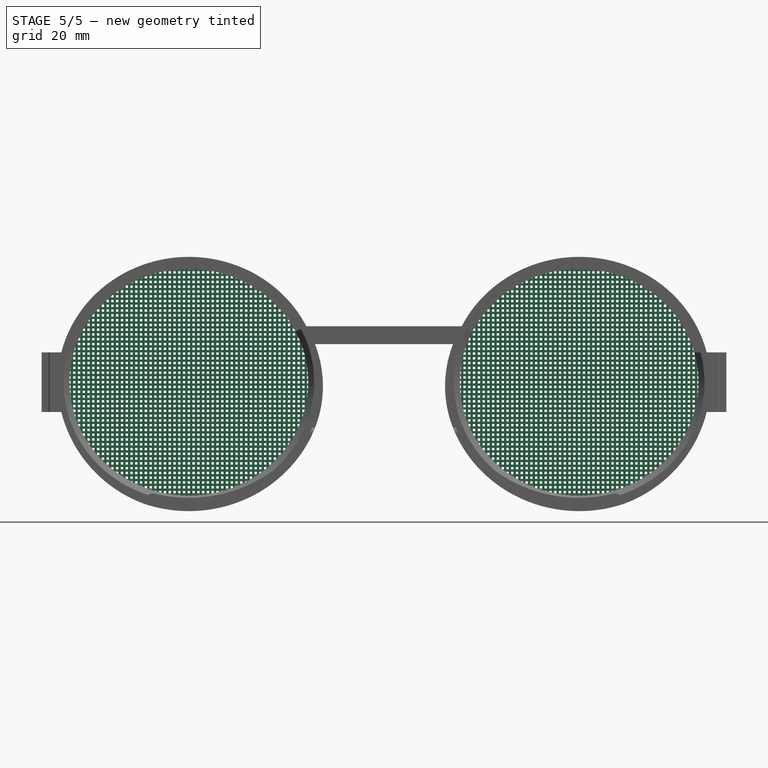
[diagram: stage 5 of 5 — front view after this stage's code; geometry added in this stage tinted green]
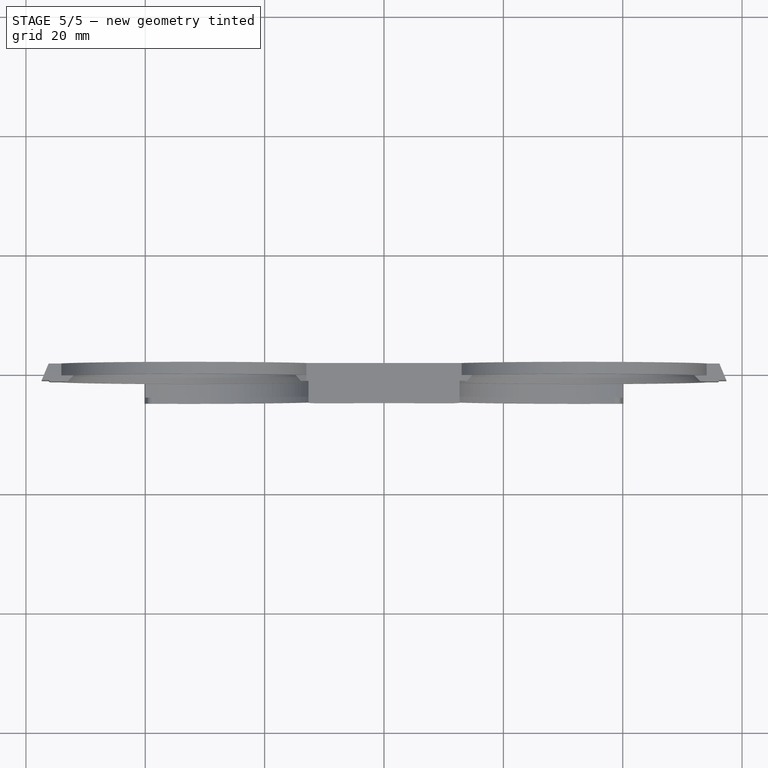
[diagram: stage 5 of 5 — top view after this stage's code; geometry added in this stage tinted green]
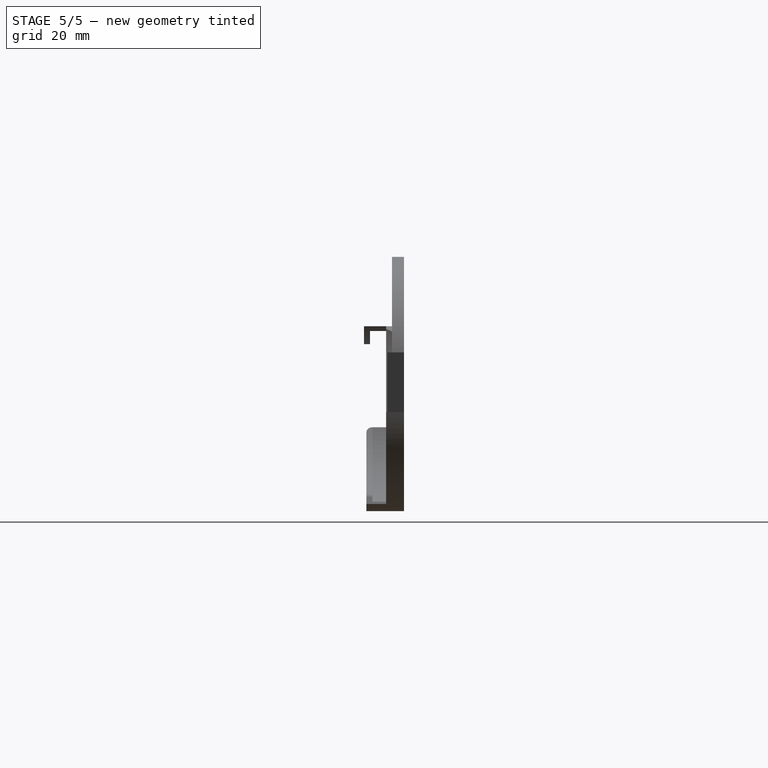
[diagram: stage 5 of 5 — right view after this stage's code; geometry added in this stage tinted green]
FEATURE [Sketcher::SketchObject] Sketch030
  ArcFitTolerance = 1e-06
  AttachmentOffset = pos=(0,0,0) rot=(0,0,1;3.14159rad)
  AttachmentSupport = -> [Fillet]
  ExternalGeometry = -> [Sketch]
  FullyConstrained = true
  MakeInternals = false
  MapMode = 5
  Placement = pos=(0,1.5,-1.4e-15) rot=(0,0.707107,0.707107;3.14159rad)
  sketch-geometry (258):
    g0: Circle [constr] CenterX=-32.7 CenterY=-2.3e-15 CenterZ=0 NormalX=0 NormalY=0 NormalZ=1 AngleXU=0 Radius=20.5
    g1: LineSegment [constr] StartX=-53.2 StartY=-2.3e-15 StartZ=0 EndX=-52.7 EndY=-2.3e-15 EndZ=0
    g2: LineSegment [constr] StartX=-32.7 StartY=21 StartZ=0 EndX=-32.7 EndY=20.5 EndZ=0
    g3: LineSegment StartX=-53.199 StartY=-0.2 StartZ=0 EndX=-12.201 EndY=-0.2 EndZ=0
    g4: LineSegment StartX=-53.1912 StartY=-0.6 StartZ=0 EndX=-12.2088 EndY=-0.6 EndZ=0
    g5: LineSegment [constr] StartX=-32.7 StartY=-0.2 StartZ=0 EndX=-32.7 EndY=-0.6 EndZ=0
    g6: LineSegment StartX=-53.1756 StartY=-1 StartZ=0 EndX=-12.2244 EndY=-1 EndZ=0
    g7: LineSegment StartX=-53.1521 StartY=-1.4 StartZ=0 EndX=-12.2479 EndY=-1.4 EndZ=0
    g8: LineSegment StartX=-53.1208 StartY=-1.8 StartZ=0 EndX=-12.2792 EndY=-1.8 EndZ=0
    g9: LineSegment StartX=-53.0816 StartY=-2.2 StartZ=0 EndX=-12.3184 EndY=-2.2 EndZ=0
    g10: LineSegment StartX=-53.0345 StartY=-2.6 StartZ=0 EndX=-12.3655 EndY=-2.6 EndZ=0
    g11: LineSegment StartX=-52.9793 StartY=-3 StartZ=0 EndX=-12.4207 EndY=-3 EndZ=0
    g12: LineSegment StartX=-52.9161 StartY=-3.4 StartZ=0 EndX=-12.4839 EndY=-3.4 EndZ=0
    g13: LineSegment StartX=-52.8447 StartY=-3.8 StartZ=0 EndX=-12.5553 EndY=-3.8 EndZ=0
    g14: LineSegment StartX=-52.7651 StartY=-4.2 StartZ=0 EndX=-12.6349 EndY=-4.2 EndZ=0
    g15: LineSegment [constr] StartX=-32.7 StartY=-0.6 StartZ=0 EndX=-32.7 EndY=-1 EndZ=0
    g16: LineSegment [constr] StartX=-32.7 StartY=-1 StartZ=0 EndX=-32.7 EndY=-1.4 EndZ=0
    g17: LineSegment [constr] StartX=-32.7 StartY=-1.4 StartZ=0 EndX=-32.7 EndY=-1.8 EndZ=0
    g18: LineSegment [constr] StartX=-32.7 StartY=-1.8 StartZ=0 EndX=-32.7 EndY=-2.2 EndZ=0
    g19: LineSegment [constr] StartX=-32.7 StartY=-2.2 StartZ=0 EndX=-32.7 EndY=-2.6 EndZ=0
    g20: LineSegment [constr] StartX=-32.7 StartY=-2.6 StartZ=0 EndX=-32.7 EndY=-3 EndZ=0
    g21: LineSegment [constr] StartX=-32.7 StartY=-3 StartZ=0 EndX=-32.7 EndY=-3.4 EndZ=0
    g22: LineSegment [constr] StartX=-32.7 StartY=-3.8 StartZ=0 EndX=-32.7 EndY=-3.4 EndZ=0
    g23: LineSegment [constr] StartX=-32.7 StartY=-4.2 StartZ=0 EndX=-32.7 EndY=-3.8 EndZ=0
    g24: LineSegment StartX=-52.6772 StartY=-4.6 StartZ=0 EndX=-12.7228 EndY=-4.6 EndZ=0
    g25: LineSegment StartX=-52.5809 StartY=-5 StartZ=0 EndX=-12.8191 EndY=-5 EndZ=0
    g26: LineSegment StartX=-52.476 StartY=-5.4 StartZ=0 EndX=-12.924 EndY=-5.4 EndZ=0
    g27: LineSegment StartX=-52.3624 StartY=-5.8 StartZ=0 EndX=-13.0376 EndY=-5.8 EndZ=0
    g28: LineSegment StartX=-52.24 StartY=-6.2 StartZ=0 EndX=-13.16 EndY=-6.2 EndZ=0
    g29: LineSegment StartX=-52.1085 StartY=-6.6 StartZ=0 EndX=-13.2915 EndY=-6.6 EndZ=0
    g30: LineSegment StartX=-51.9678 StartY=-7 StartZ=0 EndX=-13.4322 EndY=-7 EndZ=0
    g31: LineSegment StartX=-51.8178 StartY=-7.4 StartZ=0 EndX=-13.5822 EndY=-7.4 EndZ=0
    g32: LineSegment StartX=-51.6581 StartY=-7.8 StartZ=0 EndX=-13.7419 EndY=-7.8 EndZ=0
    g33: LineSegment StartX=-51.4886 StartY=-8.2 StartZ=0 EndX=-13.9114 EndY=-8.2 EndZ=0
    g34: LineSegment StartX=-51.3089 StartY=-8.6 StartZ=0 EndX=-14.0911 EndY=-8.6 EndZ=0
    g35: LineSegment [constr] StartX=-32.7 StartY=-4.2 StartZ=0 EndX=-32.7 EndY=-4.6 EndZ=0
    g36: LineSegment [constr] StartX=-32.7 StartY=-5 StartZ=0 EndX=-32.7 EndY=-4.6 EndZ=0
    g37: LineSegment [constr] StartX=-32.7 StartY=-5 StartZ=0 EndX=-32.7 EndY=-5.4 EndZ=0
    g38: LineSegment [constr] StartX=-32.7 StartY=-5.4 StartZ=0 EndX=-32.7 EndY=-5.8 EndZ=0
    g39: LineSegment [constr] StartX=-32.7 StartY=-6.2 StartZ=0 EndX=-32.7 EndY=-5.8 EndZ=0
    g40: LineSegment [constr] StartX=-32.7 StartY=-6.2 StartZ=0 EndX=-32.7 EndY=-6.6 EndZ=0
    g41: LineSegment [constr] StartX=-32.7 StartY=-6.6 StartZ=0 EndX=-32.7 EndY=-7 EndZ=0
    g42: LineSegment [constr] StartX=-32.7 StartY=-7 StartZ=0 EndX=-32.7 EndY=-7.4 EndZ=0
    g43: LineSegment [constr] StartX=-32.7 StartY=-7.4 StartZ=0 EndX=-32.7 EndY=-7.8 EndZ=0
    g44: LineSegment [constr] StartX=-32.7 StartY=-7.8 StartZ=0 EndX=-32.7 EndY=-8.2 EndZ=0
    g45: LineSegment [constr] StartX=-32.7 StartY=-8.2 StartZ=0 EndX=-32.7 EndY=-8.6 EndZ=0
    g46: LineSegment StartX=-51.1187 StartY=-9 StartZ=0 EndX=-14.2813 EndY=-9 EndZ=0
    g47: LineSegment StartX=-50.9178 StartY=-9.4 StartZ=0 EndX=-14.4822 EndY=-9.4 EndZ=0
    g48: LineSegment StartX=-50.7058 StartY=-9.8 StartZ=0 EndX=-14.6942 EndY=-9.8 EndZ=0
    g49: LineSegment StartX=-50.4823 StartY=-10.2 StartZ=0 EndX=-14.9177 EndY=-10.2 EndZ=0
    g50: LineSegment StartX=-50.2468 StartY=-10.6 StartZ=0 EndX=-15.1532 EndY=-10.6 EndZ=0
    g51: LineSegment StartX=-49.9988 StartY=-11 StartZ=0 EndX=-15.4012 EndY=-11 EndZ=0
    g52: LineSegment StartX=-49.7379 StartY=-11.4 StartZ=0 EndX=-15.6621 EndY=-11.4 EndZ=0
    g53: LineSegment StartX=-49.4634 StartY=-11.8 StartZ=0 EndX=-15.9366 EndY=-11.8 EndZ=0
    g54: LineSegment StartX=-49.1745 StartY=-12.2 StartZ=0 EndX=-16.2255 EndY=-12.2 EndZ=0
    g55: LineSegment StartX=-48.8707 StartY=-12.6 StartZ=0 EndX=-16.5293 EndY=-12.6 EndZ=0
    g56: LineSegment StartX=-48.5509 StartY=-13 StartZ=0 EndX=-16.8491 EndY=-13 EndZ=0
    g57: LineSegment StartX=-48.2142 StartY=-13.4 StartZ=0 EndX=-17.1858 EndY=-13.4 EndZ=0
    g58: LineSegment StartX=-47.8595 StartY=-13.8 StartZ=0 EndX=-17.5405 EndY=-13.8 EndZ=0
    g59: LineSegment StartX=-47.4855 StartY=-14.2 StartZ=0 EndX=-17.9145 EndY=-14.2 EndZ=0
    g60: LineSegment StartX=-47.0906 StartY=-14.6 StartZ=0 EndX=-18.3094 EndY=-14.6 EndZ=0
    g61: LineSegment StartX=-46.6732 StartY=-15 StartZ=0 EndX=-18.7268 EndY=-15 EndZ=0
    g62: LineSegment StartX=-46.2311 StartY=-15.4 StartZ=0 EndX=-19.1689 EndY=-15.4 EndZ=0
    g63: LineSegment StartX=-45.7618 StartY=-15.8 StartZ=0 EndX=-19.6382 EndY=-15.8 EndZ=0
    g64: LineSegment StartX=-45.2622 StartY=-16.2 StartZ=0 EndX=-20.1378 EndY=-16.2 EndZ=0
    g65: LineSegment StartX=-44.7287 StartY=-16.6 StartZ=0 EndX=-20.6713 EndY=-16.6 EndZ=0
    g66: LineSegment StartX=-44.1564 StartY=-17 StartZ=0 EndX=-21.2436 EndY=-17 EndZ=0
    g67: LineSegment StartX=-43.5393 StartY=-17.4 StartZ=0 EndX=-21.8607 EndY=-17.4 EndZ=0
    g68: LineSegment [constr] StartX=-32.7 StartY=-8.6 StartZ=0 EndX=-32.7 EndY=-9 EndZ=0
    g69: LineSegment [constr] StartX=-32.7 StartY=-9 StartZ=0 EndX=-32.7 EndY=-9.4 EndZ=0
    g70: LineSegment [constr] StartX=-32.7 StartY=-9.4 StartZ=0 EndX=-32.7 EndY=-9.8 EndZ=0
    g71: LineSegment [constr] StartX=-32.7 StartY=-9.8 StartZ=0 EndX=-32.7 EndY=-10.2 EndZ=0
    g72: LineSegment [constr] StartX=-32.7 StartY=-10.2 StartZ=0 EndX=-32.7 EndY=-10.6 EndZ=0
    g73: LineSegment [constr] StartX=-32.7 StartY=-10.6 StartZ=0 EndX=-32.7 EndY=-11 EndZ=0
    g74: LineSegment [constr] StartX=-32.7 StartY=-11 StartZ=0 EndX=-32.7 EndY=-11.4 EndZ=0
    g75: LineSegment [constr] StartX=-32.7 StartY=-11.4 StartZ=0 EndX=-32.7 EndY=-11.8 EndZ=0
    g76: LineSegment [constr] StartX=-32.7 StartY=-11.8 StartZ=0 EndX=-32.7 EndY=-12.2 EndZ=0
    g77: LineSegment [constr] StartX=-32.7 StartY=-12.2 StartZ=0 EndX=-32.7 EndY=-12.6 EndZ=0
    g78: LineSegment [constr] StartX=-32.7 StartY=-12.6 StartZ=0 EndX=-32.7 EndY=-13 EndZ=0
    g79: LineSegment [constr] StartX=-32.7 StartY=-13 StartZ=0 EndX=-32.7 EndY=-13.4 EndZ=0
    g80: LineSegment [constr] StartX=-32.7 StartY=-13.4 StartZ=0 EndX=-32.7 EndY=-13.8 EndZ=0
    g81: LineSegment [constr] StartX=-32.7 StartY=-13.8 StartZ=0 EndX=-32.7 EndY=-14.2 EndZ=0
    g82: LineSegment [constr] StartX=-32.7 StartY=-14.2 StartZ=0 EndX=-32.7 EndY=-14.6 EndZ=0
    g83: LineSegment [constr] StartX=-32.7 StartY=-14.6 StartZ=0 EndX=-32.7 EndY=-15 EndZ=0
    g84: LineSegment [constr] StartX=-32.7 StartY=-15 StartZ=0 EndX=-32.7 EndY=-15.4 EndZ=0
    g85: LineSegment [constr] StartX=-32.7 StartY=-15.4 StartZ=0 EndX=-32.7 EndY=-15.8 EndZ=0
    g86: LineSegment [constr] StartX=-32.7 StartY=-15.8 StartZ=0 EndX=-32.7 EndY=-16.2 EndZ=0
    g87: LineSegment [constr] StartX=-32.7 StartY=-16.2 StartZ=0 EndX=-32.7 EndY=-16.6 EndZ=0
    g88: LineSegment [constr] StartX=-32.7 StartY=-16.6 StartZ=0 EndX=-32.7 EndY=-17 EndZ=0
    g89: LineSegment [constr] StartX=-32.7 StartY=-17 StartZ=0 EndX=-32.7 EndY=-17.4 EndZ=0
    g90: LineSegment StartX=-42.8691 StartY=-17.8 StartZ=0 EndX=-22.5309 EndY=-17.8 EndZ=0
    g91: LineSegment StartX=-42.1345 StartY=-18.2 StartZ=0 EndX=-23.2655 EndY=-18.2 EndZ=0
    g92: LineSegment StartX=-41.3192 StartY=-18.6 StartZ=0 EndX=-24.0808 EndY=-18.6 EndZ=0
    g93: LineSegment [constr] StartX=-32.7 StartY=-17.4 StartZ=0 EndX=-32.7 EndY=-17.8 EndZ=0
    g94: LineSegment [constr] StartX=-32.7 StartY=-17.8 StartZ=0 EndX=-32.7 EndY=-18.2 EndZ=0
    g95: LineSegment [constr] StartX=-32.7 StartY=-18.2 StartZ=0 EndX=-32.7 EndY=-18.6 EndZ=0
    g96: LineSegment StartX=-40.3974 StartY=-19 StartZ=0 EndX=-25.0026 EndY=-19 EndZ=0
    g97: LineSegment [constr] StartX=-32.7 StartY=-18.6 StartZ=0 EndX=-32.7 EndY=-19 EndZ=0
    g98: LineSegment StartX=-39.325 StartY=-19.4 StartZ=0 EndX=-26.075 EndY=-19.4 EndZ=0
    g99: LineSegment StartX=-38.0113 StartY=-19.8 StartZ=0 EndX=-27.3887 EndY=-19.8 EndZ=0
    g100: LineSegment [constr] StartX=-32.7 StartY=-19 StartZ=0 EndX=-32.7 EndY=-19.4 EndZ=0
    g101: LineSegment [constr] StartX=-32.7 StartY=-19.4 StartZ=0 EndX=-32.7 EndY=-19.8 EndZ=0
    g102: LineSegment StartX=-36.1943 StartY=-20.2 StartZ=0 EndX=-29.2057 EndY=-20.2 EndZ=0
    g103: LineSegment [constr] StartX=-32.7 StartY=-20.2 StartZ=0 EndX=-32.7 EndY=-19.8 EndZ=0
    g104: LineSegment StartX=-12.201 StartY=-0.2 StartZ=0 EndX=-12.2088 EndY=-0.6 EndZ=0
    g105: LineSegment StartX=-12.2244 StartY=-1 StartZ=0 EndX=-12.2479 EndY=-1.4 EndZ=0
    g106: LineSegment StartX=-12.2792 StartY=-1.8 StartZ=0 EndX=-12.3184 EndY=-2.2 EndZ=0
    g107: LineSegment StartX=-12.3655 StartY=-2.6 StartZ=0 EndX=-12.4207 EndY=-3 EndZ=0
    g108: LineSegment StartX=-12.4839 StartY=-3.4 StartZ=0 EndX=-12.5553 EndY=-3.8 EndZ=0
    g109: LineSegment StartX=-12.6349 StartY=-4.2 StartZ=0 EndX=-12.7228 EndY=-4.6 EndZ=0
    g110: LineSegment StartX=-12.8191 StartY=-5 StartZ=0 EndX=-12.924 EndY=-5.4 EndZ=0
    g111: LineSegment StartX=-13.0376 StartY=-5.8 StartZ=0 EndX=-13.16 EndY=-6.2 EndZ=0
    g112: LineSegment StartX=-13.2915 StartY=-6.6 StartZ=0 EndX=-13.4322 EndY=-7 EndZ=0
    g113: LineSegment StartX=-13.5822 StartY=-7.4 StartZ=0 EndX=-13.7419 EndY=-7.8 EndZ=0
    g114: LineSegment StartX=-13.9114 StartY=-8.2 StartZ=0 EndX=-14.0911 EndY=-8.6 EndZ=0
    g115: LineSegment StartX=-14.2813 StartY=-9 StartZ=0 EndX=-14.4822 EndY=-9.4 EndZ=0
    g116: LineSegment StartX=-14.6942 StartY=-9.8 StartZ=0 EndX=-14.9177 EndY=-10.2 EndZ=0
    g117: LineSegment StartX=-15.1532 StartY=-10.6 StartZ=0 EndX=-15.4012 EndY=-11 EndZ=0
    g118: LineSegment StartX=-15.6621 StartY=-11.4 StartZ=0 EndX=-15.9366 EndY=-11.8 EndZ=0
    g119: LineSegment StartX=-16.2255 StartY=-12.2 StartZ=0 EndX=-16.5293 EndY=-12.6 EndZ=0
    g120: LineSegment StartX=-16.8491 StartY=-13 StartZ=0 EndX=-17.1858 EndY=-13.4 EndZ=0
    g121: LineSegment StartX=-17.5405 StartY=-13.8 StartZ=0 EndX=-17.9145 EndY=-14.2 EndZ=0
    g122: LineSegment StartX=-18.3094 StartY=-14.6 StartZ=0 EndX=-18.7268 EndY=-15 EndZ=0
    g123: LineSegment StartX=-19.1689 StartY=-15.4 StartZ=0 EndX=-19.6382 EndY=-15.8 EndZ=0
    g124: LineSegment StartX=-20.1378 StartY=-16.2 StartZ=0 EndX=-20.6713 EndY=-16.6 EndZ=0
    g125: LineSegment StartX=-21.2436 StartY=-17 StartZ=0 EndX=-21.8607 EndY=-17.4 EndZ=0
    g126: LineSegment StartX=-22.5309 StartY=-17.8 StartZ=0 EndX=-23.2655 EndY=-18.2 EndZ=0
    g127: LineSegment StartX=-24.0808 StartY=-18.6 StartZ=0 EndX=-25.0026 EndY=-19 EndZ=0
    g128: LineSegment StartX=-26.075 StartY=-19.4 StartZ=0 EndX=-27.3887 EndY=-19.8 EndZ=0
    g129: ArcOfCircle CenterX=-32.7 CenterY=-2.3e-15 CenterZ=0 NormalX=0 NormalY=0 NormalZ=1 AngleXU=0 Radius=20.5 StartAngle=4.5411 EndAngle=4.88368
    g130: LineSegment StartX=-53.199 StartY=-0.2 StartZ=0 EndX=-53.1912 EndY=-0.6 EndZ=0
    g131: LineSegment StartX=-53.1756 StartY=-1 StartZ=0 EndX=-53.1521 EndY=-1.4 EndZ=0
    g132: LineSegment StartX=-53.1208 StartY=-1.8 StartZ=0 EndX=-53.0816 EndY=-2.2 EndZ=0
    g133: LineSegment StartX=-53.0345 StartY=-2.6 StartZ=0 EndX=-52.9793 EndY=-3 EndZ=0
    g134: LineSegment StartX=-52.9161 StartY=-3.4 StartZ=0 EndX=-52.8447 EndY=-3.8 EndZ=0
    g135: LineSegment StartX=-52.7651 StartY=-4.2 StartZ=0 EndX=-52.6772 EndY=-4.6 EndZ=0
    g136: LineSegment StartX=-52.5809 StartY=-5 StartZ=0 EndX=-52.476 EndY=-5.4 EndZ=0
    g137: LineSegment StartX=-52.3624 StartY=-5.8 StartZ=0 EndX=-52.24 EndY=-6.2 EndZ=0
    g138: LineSegment StartX=-52.1085 StartY=-6.6 StartZ=0 EndX=-51.9678 EndY=-7 EndZ=0
    g139: LineSegment StartX=-51.8178 StartY=-7.4 StartZ=0 EndX=-51.6581 EndY=-7.8 EndZ=0
    g140: LineSegment StartX=-51.4886 StartY=-8.2 StartZ=0 EndX=-51.3089 EndY=-8.6 EndZ=0
    g141: LineSegment StartX=-51.1187 StartY=-9 StartZ=0 EndX=-50.9178 EndY=-9.4 EndZ=0
    g142: LineSegment StartX=-50.7058 StartY=-9.8 StartZ=0 EndX=-50.4823 EndY=-10.2 EndZ=0
    g143: LineSegment StartX=-50.2468 StartY=-10.6 StartZ=0 EndX=-49.9988 EndY=-11 EndZ=0
    g144: LineSegment StartX=-49.7379 StartY=-11.4 StartZ=0 EndX=-49.4634 EndY=-11.8 EndZ=0
    g145: LineSegment StartX=-49.1745 StartY=-12.2 StartZ=0 EndX=-48.8707 EndY=-12.6 EndZ=0
    g146: LineSegment StartX=-48.5509 StartY=-13 StartZ=0 EndX=-48.2142 EndY=-13.4 EndZ=0
    g147: LineSegment StartX=-47.8595 StartY=-13.8 StartZ=0 EndX=-47.4855 EndY=-14.2 EndZ=0
    g148: LineSegment StartX=-47.0906 StartY=-14.6 StartZ=0 EndX=-46.6732 EndY=-15 EndZ=0
    g149: LineSegment StartX=-46.2311 StartY=-15.4 StartZ=0 EndX=-45.7618 EndY=-15.8 EndZ=0
    g150: LineSegment StartX=-45.2622 StartY=-16.2 StartZ=0 EndX=-44.7287 EndY=-16.6 EndZ=0
    g151: LineSegment StartX=-44.1564 StartY=-17 StartZ=0 EndX=-43.5393 EndY=-17.4 EndZ=0
    g152: LineSegment StartX=-42.8691 StartY=-17.8 StartZ=0 EndX=-42.1345 EndY=-18.2 EndZ=0
    g153: LineSegment StartX=-41.3192 StartY=-18.6 StartZ=0 EndX=-40.3974 EndY=-19 EndZ=0
    g154: LineSegment StartX=-39.325 StartY=-19.4 StartZ=0 EndX=-38.0113 EndY=-19.8 EndZ=0
    g155: LineSegment StartX=-53.199 StartY=0.2 StartZ=0 EndX=-12.201 EndY=0.2 EndZ=0
    g156: LineSegment StartX=-53.1912 StartY=0.6 StartZ=0 EndX=-12.2088 EndY=0.6 EndZ=0
    g157: LineSegment StartX=-53.1756 StartY=1 StartZ=0 EndX=-12.2244 EndY=1 EndZ=0
    g158: LineSegment StartX=-53.1521 StartY=1.4 StartZ=0 EndX=-12.2479 EndY=1.4 EndZ=0
    g159: LineSegment StartX=-53.1208 StartY=1.8 StartZ=0 EndX=-12.2792 EndY=1.8 EndZ=0
    g160: LineSegment StartX=-53.0816 StartY=2.2 StartZ=0 EndX=-12.3184 EndY=2.2 EndZ=0
    g161: LineSegment StartX=-53.0345 StartY=2.6 StartZ=0 EndX=-12.3655 EndY=2.6 EndZ=0
    g162: LineSegment StartX=-52.9793 StartY=3 StartZ=0 EndX=-12.4207 EndY=3 EndZ=0
    g163: LineSegment StartX=-52.9161 StartY=3.4 StartZ=0 EndX=-12.4839 EndY=3.4 EndZ=0
    g164: LineSegment StartX=-52.8447 StartY=3.8 StartZ=0 EndX=-12.5553 EndY=3.8 EndZ=0
    g165: LineSegment StartX=-52.7651 StartY=4.2 StartZ=0 EndX=-12.6349 EndY=4.2 EndZ=0
    g166: LineSegment StartX=-52.6772 StartY=4.6 StartZ=0 EndX=-12.7228 EndY=4.6 EndZ=0
    g167: LineSegment StartX=-52.5809 StartY=5 StartZ=0 EndX=-12.8191 EndY=5 EndZ=0
    g168: LineSegment StartX=-52.476 StartY=5.4 StartZ=0 EndX=-12.924 EndY=5.4 EndZ=0
    g169: LineSegment StartX=-52.3624 StartY=5.8 StartZ=0 EndX=-13.0376 EndY=5.8 EndZ=0
    g170: LineSegment StartX=-52.24 StartY=6.2 StartZ=0 EndX=-13.16 EndY=6.2 EndZ=0
    g171: LineSegment StartX=-52.1085 StartY=6.6 StartZ=0 EndX=-13.2915 EndY=6.6 EndZ=0
    g172: LineSegment StartX=-51.9678 StartY=7 StartZ=0 EndX=-13.4322 EndY=7 EndZ=0
    g173: LineSegment StartX=-51.8178 StartY=7.4 StartZ=0 EndX=-13.5822 EndY=7.4 EndZ=0
    g174: LineSegment StartX=-51.6581 StartY=7.8 StartZ=0 EndX=-13.7419 EndY=7.8 EndZ=0
    g175: LineSegment StartX=-51.4886 StartY=8.2 StartZ=0 EndX=-13.9114 EndY=8.2 EndZ=0
    g176: LineSegment StartX=-51.3089 StartY=8.6 StartZ=0 EndX=-14.0911 EndY=8.6 EndZ=0
    g177: LineSegment StartX=-51.1187 StartY=9 StartZ=0 EndX=-14.2813 EndY=9 EndZ=0
    g178: LineSegment StartX=-50.9178 StartY=9.4 StartZ=0 EndX=-14.4822 EndY=9.4 EndZ=0
    g179: LineSegment StartX=-50.7058 StartY=9.8 StartZ=0 EndX=-14.6942 EndY=9.8 EndZ=0
    g180: LineSegment StartX=-50.4823 StartY=10.2 StartZ=0 EndX=-14.9177 EndY=10.2 EndZ=0
    g181: LineSegment StartX=-50.2468 StartY=10.6 StartZ=0 EndX=-15.1532 EndY=10.6 EndZ=0
    g182: LineSegment StartX=-49.9988 StartY=11 StartZ=0 EndX=-15.4012 EndY=11 EndZ=0
    g183: LineSegment StartX=-49.7379 StartY=11.4 StartZ=0 EndX=-15.6621 EndY=11.4 EndZ=0
    g184: LineSegment StartX=-49.4634 StartY=11.8 StartZ=0 EndX=-15.9366 EndY=11.8 EndZ=0
    g185: LineSegment StartX=-49.1745 StartY=12.2 StartZ=0 EndX=-16.2255 EndY=12.2 EndZ=0
    g186: LineSegment StartX=-48.8707 StartY=12.6 StartZ=0 EndX=-16.5293 EndY=12.6 EndZ=0
    g187: LineSegment StartX=-48.5509 StartY=13 StartZ=0 EndX=-16.8491 EndY=13 EndZ=0
    g188: LineSegment StartX=-48.2142 StartY=13.4 StartZ=0 EndX=-17.1858 EndY=13.4 EndZ=0
    g189: LineSegment StartX=-47.8595 StartY=13.8 StartZ=0 EndX=-17.5405 EndY=13.8 EndZ=0
    g190: LineSegment StartX=-47.4855 StartY=14.2 StartZ=0 EndX=-17.9145 EndY=14.2 EndZ=0
    g191: LineSegment StartX=-47.0906 StartY=14.6 StartZ=0 EndX=-18.3094 EndY=14.6 EndZ=0
    g192: LineSegment StartX=-46.6732 StartY=15 StartZ=0 EndX=-18.7268 EndY=15 EndZ=0
    g193: LineSegment StartX=-46.2311 StartY=15.4 StartZ=0 EndX=-19.1689 EndY=15.4 EndZ=0
    g194: LineSegment StartX=-45.7618 StartY=15.8 StartZ=0 EndX=-19.6382 EndY=15.8 EndZ=0
    g195: LineSegment StartX=-45.2622 StartY=16.2 StartZ=0 EndX=-20.1378 EndY=16.2 EndZ=0
    g196: LineSegment StartX=-44.7287 StartY=16.6 StartZ=0 EndX=-20.6713 EndY=16.6 EndZ=0
    g197: LineSegment StartX=-44.1564 StartY=17 StartZ=0 EndX=-21.2436 EndY=17 EndZ=0
    g198: LineSegment StartX=-43.5393 StartY=17.4 StartZ=0 EndX=-21.8607 EndY=17.4 EndZ=0
    g199: LineSegment StartX=-42.8691 StartY=17.8 StartZ=0 EndX=-22.5309 EndY=17.8 EndZ=0
    g200: LineSegment StartX=-42.1345 StartY=18.2 StartZ=0 EndX=-23.2655 EndY=18.2 EndZ=0
    g201: LineSegment StartX=-41.3192 StartY=18.6 StartZ=0 EndX=-24.0808 EndY=18.6 EndZ=0
    g202: LineSegment StartX=-40.3974 StartY=19 StartZ=0 EndX=-25.0026 EndY=19 EndZ=0
    g203: LineSegment StartX=-39.325 StartY=19.4 StartZ=0 EndX=-26.075 EndY=19.4 EndZ=0
    g204: LineSegment StartX=-38.0113 StartY=19.8 StartZ=0 EndX=-27.3887 EndY=19.8 EndZ=0
    g205: LineSegment StartX=-36.1943 StartY=20.2 StartZ=0 EndX=-29.2057 EndY=20.2 EndZ=0
    g206: LineSegment StartX=-12.201 StartY=0.2 StartZ=0 EndX=-12.2088 EndY=0.6 EndZ=0
    g207: LineSegment StartX=-12.2244 StartY=1 StartZ=0 EndX=-12.2479 EndY=1.4 EndZ=0
    g208: LineSegment StartX=-12.2792 StartY=1.8 StartZ=0 EndX=-12.3184 EndY=2.2 EndZ=0
    g209: LineSegment StartX=-12.3655 StartY=2.6 StartZ=0 EndX=-12.4207 EndY=3 EndZ=0
    g210: LineSegment StartX=-12.4839 StartY=3.4 StartZ=0 EndX=-12.5553 EndY=3.8 EndZ=0
    g211: LineSegment StartX=-12.6349 StartY=4.2 StartZ=0 EndX=-12.7228 EndY=4.6 EndZ=0
    g212: LineSegment StartX=-12.8191 StartY=5 StartZ=0 EndX=-12.924 EndY=5.4 EndZ=0
    g213: LineSegment StartX=-13.0376 StartY=5.8 StartZ=0 EndX=-13.16 EndY=6.2 EndZ=0
    g214: LineSegment StartX=-13.2915 StartY=6.6 StartZ=0 EndX=-13.4322 EndY=7 EndZ=0
    g215: LineSegment StartX=-13.5822 StartY=7.4 StartZ=0 EndX=-13.7419 EndY=7.8 EndZ=0
    g216: LineSegment StartX=-13.9114 StartY=8.2 StartZ=0 EndX=-14.0911 EndY=8.6 EndZ=0
    g217: LineSegment StartX=-14.2813 StartY=9 StartZ=0 EndX=-14.4822 EndY=9.4 EndZ=0
    g218: LineSegment StartX=-14.6942 StartY=9.8 StartZ=0 EndX=-14.9177 EndY=10.2 EndZ=0
    g219: LineSegment StartX=-15.1532 StartY=10.6 StartZ=0 EndX=-15.4012 EndY=11 EndZ=0
    g220: LineSegment StartX=-15.6621 StartY=11.4 StartZ=0 EndX=-15.9366 EndY=11.8 EndZ=0
    g221: LineSegment StartX=-16.2255 StartY=12.2 StartZ=0 EndX=-16.5293 EndY=12.6 EndZ=0
    g222: LineSegment StartX=-16.8491 StartY=13 StartZ=0 EndX=-17.1858 EndY=13.4 EndZ=0
    g223: LineSegment StartX=-17.5405 StartY=13.8 StartZ=0 EndX=-17.9145 EndY=14.2 EndZ=0
    g224: LineSegment StartX=-18.3094 StartY=14.6 StartZ=0 EndX=-18.7268 EndY=15 EndZ=0
    g225: LineSegment StartX=-19.1689 StartY=15.4 StartZ=0 EndX=-19.6382 EndY=15.8 EndZ=0
    g226: LineSegment StartX=-20.1378 StartY=16.2 StartZ=0 EndX=-20.6713 EndY=16.6 EndZ=0
    g227: LineSegment StartX=-21.2436 StartY=17 StartZ=0 EndX=-21.8607 EndY=17.4 EndZ=0
    g228: LineSegment StartX=-22.5309 StartY=17.8 StartZ=0 EndX=-23.2655 EndY=18.2 EndZ=0
    g229: LineSegment StartX=-24.0808 StartY=18.6 StartZ=0 EndX=-25.0026 EndY=19 EndZ=0
    g230: LineSegment StartX=-26.075 StartY=19.4 StartZ=0 EndX=-27.3887 EndY=19.8 EndZ=0
    g231: ArcOfCircle CenterX=-32.7 CenterY=2.3e-15 CenterZ=0 NormalX=0 NormalY=0 NormalZ=1 AngleXU=0 Radius=20.5 StartAngle=1.39951 EndAngle=1.74209
    g232: LineSegment StartX=-53.199 StartY=0.2 StartZ=0 EndX=-53.1912 EndY=0.6 EndZ=0
    g233: LineSegment StartX=-53.1756 StartY=1 StartZ=0 EndX=-53.1521 EndY=1.4 EndZ=0
    g234: LineSegment StartX=-53.1208 StartY=1.8 StartZ=0 EndX=-53.0816 EndY=2.2 EndZ=0
    g235: LineSegment StartX=-53.0345 StartY=2.6 StartZ=0 EndX=-52.9793 EndY=3 EndZ=0
    g236: LineSegment StartX=-52.9161 StartY=3.4 StartZ=0 EndX=-52.8447 EndY=3.8 EndZ=0
    g237: LineSegment StartX=-52.7651 StartY=4.2 StartZ=0 EndX=-52.6772 EndY=4.6 EndZ=0
    g238: LineSegment StartX=-52.5809 StartY=5 StartZ=0 EndX=-52.476 EndY=5.4 EndZ=0
    g239: LineSegment StartX=-52.3624 StartY=5.8 StartZ=0 EndX=-52.24 EndY=6.2 EndZ=0
    g240: LineSegment StartX=-52.1085 StartY=6.6 StartZ=0 EndX=-51.9678 EndY=7 EndZ=0
    g241: LineSegment StartX=-51.8178 StartY=7.4 StartZ=0 EndX=-51.6581 EndY=7.8 EndZ=0
    g242: LineSegment StartX=-51.4886 StartY=8.2 StartZ=0 EndX=-51.3089 EndY=8.6 EndZ=0
    g243: LineSegment StartX=-51.1187 StartY=9 StartZ=0 EndX=-50.9178 EndY=9.4 EndZ=0
    g244: LineSegment StartX=-50.7058 StartY=9.8 StartZ=0 EndX=-50.4823 EndY=10.2 EndZ=0
    g245: LineSegment StartX=-50.2468 StartY=10.6 StartZ=0 EndX=-49.9988 EndY=11 EndZ=0
    g246: LineSegment StartX=-49.7379 StartY=11.4 StartZ=0 EndX=-49.4634 EndY=11.8 EndZ=0
    g247: LineSegment StartX=-49.1745 StartY=12.2 StartZ=0 EndX=-48.8707 EndY=12.6 EndZ=0
    g248: LineSegment StartX=-48.5509 StartY=13 StartZ=0 EndX=-48.2142 EndY=13.4 EndZ=0
    g249: LineSegment StartX=-47.8595 StartY=13.8 StartZ=0 EndX=-47.4855 EndY=14.2 EndZ=0
    g250: LineSegment StartX=-47.0906 StartY=14.6 StartZ=0 EndX=-46.6732 EndY=15 EndZ=0
    g251: LineSegment StartX=-46.2311 StartY=15.4 StartZ=0 EndX=-45.7618 EndY=15.8 EndZ=0
    g252: LineSegment StartX=-45.2622 StartY=16.2 StartZ=0 EndX=-44.7287 EndY=16.6 EndZ=0
    g253: LineSegment StartX=-44.1564 StartY=17 StartZ=0 EndX=-43.5393 EndY=17.4 EndZ=0
    g254: LineSegment StartX=-42.8691 StartY=17.8 StartZ=0 EndX=-42.1345 EndY=18.2 EndZ=0
    g255: LineSegment StartX=-41.3192 StartY=18.6 StartZ=0 EndX=-40.3974 EndY=19 EndZ=0
    g256: LineSegment StartX=-39.325 StartY=19.4 StartZ=0 EndX=-38.0113 EndY=19.8 EndZ=0
    g257: LineSegment [constr] StartX=-32.7 StartY=-0.2 StartZ=0 EndX=-32.7 EndY=0.2 EndZ=0
  constraints (624):
    c: Coincident(g0,g-4)
    c: PointOnObject(g1,g0)
    c: PointOnObject(g1,g-4)
    c: PointOnObject(g2,g-3)
    c: PointOnObject(g2,g0)
    c: PointOnObject(g0,g2)
    c: PointOnObject(g0,g1)
    c: Equal(g1,g2)
    c: Vertical(g2)
    c: Horizontal(g1)
    c: PointOnObject(g3,g0)
    c: PointOnObject(g3,g0)
    c: Horizontal(g3)
    c: PointOnObject(g4,g0)
    c: PointOnObject(g4,g0)
    c: Horizontal(g4)
    c: Symmetric(g3,g3,g5)
    c: Symmetric(g4,g4,g5)
    c: Distance(g4,g3) = 0.4
    c: PointOnObject(g6,g0)
    c: PointOnObject(g6,g0)
    c: Horizontal(g6)
    c: PointOnObject(g7,g0)
    c: PointOnObject(g7,g0)
    c: Horizontal(g7)
    c: PointOnObject(g8,g0)
    c: PointOnObject(g8,g0)
    c: Horizontal(g8)
    c: PointOnObject(g9,g0)
    c: PointOnObject(g9,g0)
    c: Horizontal(g9)
    c: PointOnObject(g10,g0)
    c: PointOnObject(g10,g0)
    c: Horizontal(g10)
    c: PointOnObject(g11,g0)
    c: PointOnObject(g11,g0)
    c: Horizontal(g11)
    c: PointOnObject(g12,g0)
    c: PointOnObject(g12,g0)
    c: Horizontal(g12)
    c: PointOnObject(g13,g0)
    c: PointOnObject(g13,g0)
    c: Horizontal(g13)
    c: PointOnObject(g14,g0)
    c: PointOnObject(g14,g0)
    c: Horizontal(g14)
    c: Coincident(g15,g5)
    c: Symmetric(g6,g6,g15)
    c: Distance(g6,g4) = 0.4
    c: Coincident(g16,g15)
    c: Symmetric(g7,g7,g16)
    c: Equal(g16,g5)
    c: Coincident(g17,g16)
    c: Symmetric(g8,g8,g17)
    c: Equal(g17,g15)
    c: Coincident(g18,g17)
    c: Symmetric(g9,g9,g18)
    c: Equal(g18,g16)
    c: Coincident(g19,g18)
    c: Symmetric(g10,g10,g19)
    c: Equal(g19,g17)
    c: Coincident(g20,g19)
    c: Symmetric(g11,g11,g20)
    c: Equal(g20,g18)
    c: Coincident(g21,g20)
    c: Symmetric(g12,g12,g21)
    c: Equal(g21,g19)
    c: Symmetric(g13,g13,g22)
    c: Coincident(g22,g21)
    c: Equal(g22,g20)
    c: Symmetric(g14,g14,g23)
    c: Coincident(g23,g22)
    c: Equal(g23,g21)
    c: PointOnObject(g24,g0)
    c: PointOnObject(g24,g0)
    c: Horizontal(g24)
    c: PointOnObject(g25,g0)
    c: PointOnObject(g25,g0)
    c: Horizontal(g25)
    c: PointOnObject(g26,g0)
    c: PointOnObject(g26,g0)
    c: Horizontal(g26)
    c: PointOnObject(g27,g0)
    c: PointOnObject(g27,g0)
    c: Horizontal(g27)
    c: PointOnObject(g28,g0)
    c: PointOnObject(g28,g0)
    c: Horizontal(g28)
    c: PointOnObject(g29,g0)
    c: PointOnObject(g29,g0)
    c: Horizontal(g29)
    c: PointOnObject(g30,g0)
    c: PointOnObject(g30,g0)
    c: Horizontal(g30)
    c: PointOnObject(g31,g0)
    c: PointOnObject(g31,g0)
    c: Horizontal(g31)
    c: PointOnObject(g32,g0)
    c: PointOnObject(g32,g0)
    c: Horizontal(g32)
    c: PointOnObject(g33,g0)
    c: PointOnObject(g33,g0)
    c: Horizontal(g33)
    c: PointOnObject(g34,g0)
    c: PointOnObject(g34,g0)
    c: Horizontal(g34)
    c: Coincident(g35,g23)
    c: Symmetric(g24,g24,g35)
    c: Equal(g35,g22)
    c: Symmetric(g25,g25,g36)
    c: Coincident(g36,g35)
    c: Equal(g23,g36)
    c: Coincident(g37,g36)
    c: Symmetric(g26,g26,g37)
    c: Equal(g37,g35)
    c: Coincident(g38,g37)
    c: Symmetric(g27,g27,g38)
    c: Equal(g38,g36)
    c: Coincident(g39,g38)
    c: Vertical(g39)
    c: Equal(g39,g37)
    c: PointOnObject(g39,g28)
    c: Coincident(g40,g39)
    c: Symmetric(g29,g29,g40)
    c: Equal(g40,g38)
    c: Coincident(g41,g40)
    c: Symmetric(g30,g30,g41)
    c: Equal(g41,g39)
    c: Coincident(g42,g41)
    c: Symmetric(g31,g31,g42)
    c: Equal(g42,g40)
    c: Coincident(g43,g42)
    c: Symmetric(g32,g32,g43)
    c: Equal(g43,g41)
    c: Coincident(g44,g43)
    c: Symmetric(g33,g33,g44)
    c: Equal(g44,g42)
    c: Coincident(g45,g44)
    c: Symmetric(g34,g34,g45)
    c: Equal(g45,g43)
    c: PointOnObject(g46,g0)
    c: PointOnObject(g46,g0)
    c: Horizontal(g46)
    c: PointOnObject(g47,g0)
    c: PointOnObject(g47,g0)
    c: Horizontal(g47)
    c: PointOnObject(g48,g0)
    c: PointOnObject(g48,g0)
    c: Horizontal(g48)
    c: PointOnObject(g49,g0)
    c: PointOnObject(g49,g0)
    c: Horizontal(g49)
    c: PointOnObject(g50,g0)
    c: PointOnObject(g50,g0)
    c: Horizontal(g50)
    c: PointOnObject(g51,g0)
    c: PointOnObject(g51,g0)
    c: Horizontal(g51)
    c: PointOnObject(g52,g0)
    c: PointOnObject(g52,g0)
    c: Horizontal(g52)
    c: PointOnObject(g53,g0)
    c: PointOnObject(g53,g0)
    c: Horizontal(g53)
    c: PointOnObject(g54,g0)
    c: PointOnObject(g54,g0)
    c: Horizontal(g54)
    c: PointOnObject(g55,g0)
    c: PointOnObject(g55,g0)
    c: Horizontal(g55)
    c: PointOnObject(g56,g0)
    c: PointOnObject(g56,g0)
    c: Horizontal(g56)
    c: PointOnObject(g57,g0)
    c: PointOnObject(g57,g0)
    c: Horizontal(g57)
    c: PointOnObject(g58,g0)
    c: PointOnObject(g58,g0)
    c: Horizontal(g58)
    c: PointOnObject(g59,g0)
    c: PointOnObject(g59,g0)
    c: Horizontal(g59)
    c: PointOnObject(g60,g0)
    c: PointOnObject(g60,g0)
    c: Horizontal(g60)
    c: PointOnObject(g61,g0)
    c: PointOnObject(g61,g0)
    c: Horizontal(g61)
    c: PointOnObject(g62,g0)
    c: PointOnObject(g62,g0)
    c: Horizontal(g62)
    c: PointOnObject(g63,g0)
    c: PointOnObject(g63,g0)
    c: Horizontal(g63)
    c: PointOnObject(g64,g0)
    c: PointOnObject(g64,g0)
    c: Horizontal(g64)
    c: PointOnObject(g65,g0)
    c: PointOnObject(g65,g0)
    c: Horizontal(g65)
    c: PointOnObject(g66,g0)
    c: PointOnObject(g66,g0)
    c: Horizontal(g66)
    c: PointOnObject(g67,g0)
    c: PointOnObject(g67,g0)
    c: Horizontal(g67)
    c: Coincident(g68,g45)
    c: Symmetric(g46,g46,g68)
    c: Equal(g68,g44)
    c: Coincident(g69,g68)
    c: Symmetric(g47,g47,g69)
    c: Equal(g69,g45)
    c: Coincident(g70,g69)
    c: Symmetric(g48,g48,g70)
    c: Equal(g70,g68)
    c: Coincident(g71,g70)
    c: Symmetric(g49,g49,g71)
    c: Equal(g69,g71)
    c: Coincident(g72,g71)
    c: Symmetric(g50,g50,g72)
    c: Equal(g70,g72)
    c: Coincident(g73,g72)
    c: Symmetric(g51,g51,g73)
    c: Equal(g73,g71)
    c: Coincident(g74,g73)
    c: Symmetric(g52,g52,g74)
    c: Equal(g72,g74)
    c: Coincident(g75,g74)
    c: Symmetric(g53,g53,g75)
    c: Equal(g75,g73)
    c: Coincident(g76,g75)
    c: Symmetric(g54,g54,g76)
    c: Equal(g76,g74)
    c: Coincident(g77,g76)
    c: Symmetric(g55,g55,g77)
    c: Equal(g77,g75)
    c: Coincident(g78,g77)
    c: Symmetric(g56,g56,g78)
    c: Equal(g78,g76)
    c: Coincident(g79,g78)
    c: Symmetric(g57,g57,g79)
    c: Equal(g79,g77)
    c: Coincident(g80,g79)
    c: Symmetric(g58,g58,g80)
    c: Equal(g80,g78)
    c: Coincident(g81,g80)
    c: Symmetric(g59,g59,g81)
    c: Equal(g81,g79)
    c: Coincident(g82,g81)
    c: Symmetric(g60,g60,g82)
    c: Equal(g82,g80)
    c: Coincident(g83,g82)
    c: Symmetric(g61,g61,g83)
    c: Equal(g83,g81)
    c: Coincident(g84,g83)
    c: Symmetric(g62,g62,g84)
    c: Equal(g84,g82)
    c: Coincident(g85,g84)
    c: Symmetric(g63,g63,g85)
    c: Equal(g85,g83)
    c: Coincident(g86,g85)
    c: Symmetric(g64,g64,g86)
    c: Equal(g86,g84)
    c: Coincident(g87,g86)
    c: Symmetric(g65,g65,g87)
    c: Equal(g85,g87)
    c: Coincident(g88,g87)
    c: Symmetric(g66,g66,g88)
    c: Equal(g88,g86)
    c: Coincident(g89,g88)
    c: Symmetric(g67,g67,g89)
    c: Equal(g89,g87)
    c: PointOnObject(g90,g0)
    c: PointOnObject(g90,g0)
    c: Horizontal(g90)
    c: PointOnObject(g91,g0)
    c: PointOnObject(g91,g0)
    c: Horizontal(g91)
    c: PointOnObject(g92,g0)
    c: PointOnObject(g92,g0)
    c: Horizontal(g92)
    c: Coincident(g93,g89)
    c: Symmetric(g90,g90,g93)
    c: Equal(g93,g88)
    c: Coincident(g94,g93)
    c: Symmetric(g91,g91,g94)
    c: Equal(g94,g89)
    c: Coincident(g95,g94)
    c: Symmetric(g92,g92,g95)
    c: Equal(g95,g93)
    c: PointOnObject(g96,g0)
    c: PointOnObject(g96,g0)
    c: Horizontal(g96)
    c: Coincident(g97,g95)
    c: Symmetric(g96,g96,g97)
    c: Equal(g97,g94)
    c: PointOnObject(g98,g0)
    c: PointOnObject(g98,g0)
    c: Horizontal(g98)
    c: PointOnObject(g99,g0)
    c: PointOnObject(g99,g0)
    c: Horizontal(g99)
    c: Coincident(g100,g97)
    c: Symmetric(g98,g98,g100)
    c: Coincident(g101,g100)
    c: Symmetric(g99,g99,g101)
    c: Equal(g100,g95)
    c: Equal(g101,g97)
    c: PointOnObject(g102,g0)
    c: Horizontal(g102)
    c: Symmetric(g102,g102,g103)
    c: Coincident(g103,g101)
    c: Equal(g103,g100)
    c: Coincident(g3,g104)
    c: Coincident(g104,g4)
    c: Coincident(g6,g105)
    c: Coincident(g105,g7)
    c: Coincident(g8,g106)
    c: Coincident(g9,g106)
    c: Coincident(g10,g107)
    c: Coincident(g11,g107)
    c: Coincident(g12,g108)
    c: Coincident(g13,g108)
    c: Coincident(g14,g109)
    c: Coincident(g24,g109)
    c: Coincident(g25,g110)
    c: Coincident(g26,g110)
    c: Coincident(g27,g111)
    c: Coincident(g28,g111)
    c: Coincident(g29,g112)
    c: Coincident(g30,g112)
    c: Coincident(g31,g113)
    c: Coincident(g32,g113)
    c: Coincident(g33,g114)
    c: Coincident(g34,g114)
    c: Coincident(g46,g115)
    c: Coincident(g47,g115)
    c: Coincident(g48,g116)
    c: Coincident(g49,g116)
    c: Coincident(g50,g117)
    c: Coincident(g51,g117)
    c: Coincident(g52,g118)
    c: Coincident(g53,g118)
    c: Coincident(g54,g119)
    c: Coincident(g55,g119)
    c: Coincident(g56,g120)
    c: Coincident(g57,g120)
    c: Coincident(g58,g121)
    c: Coincident(g59,g121)
    c: Coincident(g60,g122)
    c: Coincident(g61,g122)
    c: Coincident(g62,g123)
    c: Coincident(g63,g123)
    c: Coincident(g64,g124)
    c: Coincident(g65,g124)
    c: Coincident(g66,g125)
    c: Coincident(g67,g125)
    c: Coincident(g90,g126)
    c: Coincident(g91,g126)
    c: Coincident(g92,g127)
    c: Coincident(g96,g127)
    c: Coincident(g98,g128)
    c: Coincident(g99,g128)
    c: Coincident(g102,g129)
    c: Coincident(g102,g129)
    c: Coincident(g0,g129)
    c: Symmetric(g104,g130,g5)
    c: Symmetric(g104,g130,g5)
    c: Symmetric(g105,g131,g5)
    c: Symmetric(g105,g131,g5)
    c: Symmetric(g106,g132,g5)
    c: Symmetric(g106,g132,g5)
    c: Symmetric(g107,g133,g5)
    c: Symmetric(g107,g133,g5)
    c: Symmetric(g108,g134,g5)
    c: Symmetric(g108,g134,g5)
    c: Symmetric(g109,g135,g5)
    c: Symmetric(g109,g135,g5)
    c: Symmetric(g110,g136,g5)
    c: Symmetric(g110,g136,g5)
    c: Symmetric(g111,g137,g5)
    c: Symmetric(g111,g137,g5)
    c: Symmetric(g112,g138,g5)
    c: Symmetric(g112,g138,g5)
    c: Symmetric(g113,g139,g5)
    c: Symmetric(g113,g139,g5)
    c: Symmetric(g114,g140,g5)
    c: Symmetric(g114,g140,g5)
    c: Symmetric(g115,g141,g5)
    c: Symmetric(g115,g141,g5)
    c: Symmetric(g116,g142,g5)
    c: Symmetric(g116,g142,g5)
    c: Symmetric(g117,g143,g5)
    c: Symmetric(g117,g143,g5)
    c: Symmetric(g118,g144,g5)
    c: Symmetric(g118,g144,g5)
    c: Symmetric(g119,g145,g5)
    c: Symmetric(g119,g145,g5)
    c: Symmetric(g120,g146,g5)
    c: Symmetric(g120,g146,g5)
    c: Symmetric(g121,g147,g5)
    c: Symmetric(g121,g147,g5)
    c: Symmetric(g122,g148,g5)
    c: Symmetric(g122,g148,g5)
    c: Symmetric(g123,g149,g5)
    c: Symmetric(g123,g149,g5)
    c: Symmetric(g124,g150,g5)
    c: Symmetric(g124,g150,g5)
    c: Symmetric(g125,g151,g5)
    c: Symmetric(g125,g151,g5)
    c: Symmetric(g126,g152,g5)
    c: Symmetric(g126,g152,g5)
    c: Symmetric(g127,g153,g5)
    c: Symmetric(g127,g153,g5)
    c: Symmetric(g128,g154,g5)
    c: Symmetric(g128,g154,g5)
    c: Symmetric(g3,g155,g-1)
    c: Symmetric(g3,g155,g-1)
    c: Symmetric(g4,g156,g-1)
    c: Symmetric(g4,g156,g-1)
    c: Symmetric(g6,g157,g-1)
    c: Symmetric(g6,g157,g-1)
    c: Symmetric(g7,g158,g-1)
    c: Symmetric(g7,g158,g-1)
    c: Symmetric(g8,g159,g-1)
    c: Symmetric(g8,g159,g-1)
    c: Symmetric(g9,g160,g-1)
    c: Symmetric(g9,g160,g-1)
    c: Symmetric(g10,g161,g-1)
    c: Symmetric(g10,g161,g-1)
    c: Symmetric(g11,g162,g-1)
    c: Symmetric(g11,g162,g-1)
    c: Symmetric(g12,g163,g-1)
    c: Symmetric(g12,g163,g-1)
    c: Symmetric(g13,g164,g-1)
    c: Symmetric(g13,g164,g-1)
    c: Symmetric(g14,g165,g-1)
    c: Symmetric(g14,g165,g-1)
    c: Symmetric(g24,g166,g-1)
    c: Symmetric(g24,g166,g-1)
    c: Symmetric(g25,g167,g-1)
    c: Symmetric(g25,g167,g-1)
    c: Symmetric(g26,g168,g-1)
    c: Symmetric(g26,g168,g-1)
    c: Symmetric(g27,g169,g-1)
    c: Symmetric(g27,g169,g-1)
    c: Symmetric(g28,g170,g-1)
    c: Symmetric(g28,g170,g-1)
    c: Symmetric(g29,g171,g-1)
    c: Symmetric(g29,g171,g-1)
    c: Symmetric(g30,g172,g-1)
    c: Symmetric(g30,g172,g-1)
    c: Symmetric(g31,g173,g-1)
    c: Symmetric(g31,g173,g-1)
    c: Symmetric(g32,g174,g-1)
    c: Symmetric(g32,g174,g-1)
    c: Symmetric(g33,g175,g-1)
    c: Symmetric(g33,g175,g-1)
    c: Symmetric(g34,g176,g-1)
    c: Symmetric(g34,g176,g-1)
    c: Symmetric(g46,g177,g-1)
    c: Symmetric(g46,g177,g-1)
    c: Symmetric(g47,g178,g-1)
    c: Symmetric(g47,g178,g-1)
    c: Symmetric(g48,g179,g-1)
    c: Symmetric(g48,g179,g-1)
    c: Symmetric(g49,g180,g-1)
    c: Symmetric(g49,g180,g-1)
    c: Symmetric(g50,g181,g-1)
    c: Symmetric(g50,g181,g-1)
    c: Symmetric(g51,g182,g-1)
    c: Symmetric(g51,g182,g-1)
    c: Symmetric(g52,g183,g-1)
    c: Symmetric(g52,g183,g-1)
    c: Symmetric(g53,g184,g-1)
    c: Symmetric(g53,g184,g-1)
    c: Symmetric(g54,g185,g-1)
    c: Symmetric(g54,g185,g-1)
    c: Symmetric(g55,g186,g-1)
    c: Symmetric(g55,g186,g-1)
    c: Symmetric(g56,g187,g-1)
    c: Symmetric(g56,g187,g-1)
    c: Symmetric(g57,g188,g-1)
    c: Symmetric(g57,g188,g-1)
    c: Symmetric(g58,g189,g-1)
    c: Symmetric(g58,g189,g-1)
    c: Symmetric(g59,g190,g-1)
    c: Symmetric(g59,g190,g-1)
    c: Symmetric(g60,g191,g-1)
    c: Symmetric(g60,g191,g-1)
    c: Symmetric(g61,g192,g-1)
    c: Symmetric(g61,g192,g-1)
    c: Symmetric(g62,g193,g-1)
    c: Symmetric(g62,g193,g-1)
    c: Symmetric(g63,g194,g-1)
    c: Symmetric(g63,g194,g-1)
    c: Symmetric(g64,g195,g-1)
    c: Symmetric(g64,g195,g-1)
    c: Symmetric(g65,g196,g-1)
    c: Symmetric(g65,g196,g-1)
    c: Symmetric(g66,g197,g-1)
    c: Symmetric(g66,g197,g-1)
    c: Symmetric(g67,g198,g-1)
    c: Symmetric(g67,g198,g-1)
    c: Symmetric(g90,g199,g-1)
    c: Symmetric(g90,g199,g-1)
    c: Symmetric(g91,g200,g-1)
    c: Symmetric(g91,g200,g-1)
    c: Symmetric(g92,g201,g-1)
    c: Symmetric(g92,g201,g-1)
    c: Symmetric(g96,g202,g-1)
    c: Symmetric(g96,g202,g-1)
    c: Symmetric(g98,g203,g-1)
    c: Symmetric(g98,g203,g-1)
    c: Symmetric(g99,g204,g-1)
    c: Symmetric(g99,g204,g-1)
    c: Symmetric(g102,g205,g-1)
    c: Symmetric(g102,g205,g-1)
    c: Symmetric(g104,g206,g-1)
    c: Symmetric(g104,g206,g-1)
    c: Symmetric(g105,g207,g-1)
    c: Symmetric(g105,g207,g-1)
    c: Symmetric(g106,g208,g-1)
    c: Symmetric(g106,g208,g-1)
    c: Symmetric(g107,g209,g-1)
    c: Symmetric(g107,g209,g-1)
    c: Symmetric(g108,g210,g-1)
    c: Symmetric(g108,g210,g-1)
    c: Symmetric(g109,g211,g-1)
    c: Symmetric(g109,g211,g-1)
    c: Symmetric(g110,g212,g-1)
    c: Symmetric(g110,g212,g-1)
    c: Symmetric(g111,g213,g-1)
    c: Symmetric(g111,g213,g-1)
    c: Symmetric(g112,g214,g-1)
    c: Symmetric(g112,g214,g-1)
    c: Symmetric(g113,g215,g-1)
    c: Symmetric(g113,g215,g-1)
    c: Symmetric(g114,g216,g-1)
    c: Symmetric(g114,g216,g-1)
    c: Symmetric(g115,g217,g-1)
    c: Symmetric(g115,g217,g-1)
    c: Symmetric(g116,g218,g-1)
    c: Symmetric(g116,g218,g-1)
    c: Symmetric(g117,g219,g-1)
    c: Symmetric(g117,g219,g-1)
    c: Symmetric(g118,g220,g-1)
    c: Symmetric(g118,g220,g-1)
    c: Symmetric(g119,g221,g-1)
    c: Symmetric(g119,g221,g-1)
    c: Symmetric(g120,g222,g-1)
    c: Symmetric(g120,g222,g-1)
    c: Symmetric(g121,g223,g-1)
    c: Symmetric(g121,g223,g-1)
    c: Symmetric(g122,g224,g-1)
    c: Symmetric(g122,g224,g-1)
    c: Symmetric(g123,g225,g-1)
    c: Symmetric(g123,g225,g-1)
    c: Symmetric(g124,g226,g-1)
    c: Symmetric(g124,g226,g-1)
    c: Symmetric(g125,g227,g-1)
    c: Symmetric(g125,g227,g-1)
    c: Symmetric(g126,g228,g-1)
    c: Symmetric(g126,g228,g-1)
    c: Symmetric(g127,g229,g-1)
    c: Symmetric(g127,g229,g-1)
    c: Symmetric(g128,g230,g-1)
    c: Symmetric(g128,g230,g-1)
    c: Equal(g129,g231)
    c: Symmetric(g129,g231,g-1)
    c: Symmetric(g129,g231,g-1)
    c: Symmetric(g130,g232,g-1)
    c: Symmetric(g130,g232,g-1)
    c: Symmetric(g131,g233,g-1)
    c: Symmetric(g131,g233,g-1)
    c: Symmetric(g132,g234,g-1)
    c: Symmetric(g132,g234,g-1)
    c: Symmetric(g133,g235,g-1)
    c: Symmetric(g133,g235,g-1)
    c: Symmetric(g134,g236,g-1)
    c: Symmetric(g134,g236,g-1)
    c: Symmetric(g135,g237,g-1)
    c: Symmetric(g135,g237,g-1)
    c: Symmetric(g136,g238,g-1)
    c: Symmetric(g136,g238,g-1)
    c: Symmetric(g137,g239,g-1)
    c: Symmetric(g137,g239,g-1)
    c: Symmetric(g138,g240,g-1)
    c: Symmetric(g138,g240,g-1)
    c: Symmetric(g139,g241,g-1)
    c: Symmetric(g139,g241,g-1)
    c: Symmetric(g140,g242,g-1)
    c: Symmetric(g140,g242,g-1)
    c: Symmetric(g141,g243,g-1)
    c: Symmetric(g141,g243,g-1)
    c: Symmetric(g142,g244,g-1)
    c: Symmetric(g142,g244,g-1)
    c: Symmetric(g143,g245,g-1)
    c: Symmetric(g143,g245,g-1)
    c: Symmetric(g144,g246,g-1)
    c: Symmetric(g144,g246,g-1)
    c: Symmetric(g145,g247,g-1)
    c: Symmetric(g145,g247,g-1)
    c: Symmetric(g146,g248,g-1)
    c: Symmetric(g146,g248,g-1)
    c: Symmetric(g147,g249,g-1)
    c: Symmetric(g147,g249,g-1)
    c: Symmetric(g148,g250,g-1)
    c: Symmetric(g148,g250,g-1)
    c: Symmetric(g149,g251,g-1)
    c: Symmetric(g149,g251,g-1)
    c: Symmetric(g150,g252,g-1)
    c: Symmetric(g150,g252,g-1)
    c: Symmetric(g151,g253,g-1)
    c: Symmetric(g151,g253,g-1)
    c: Symmetric(g152,g254,g-1)
    c: Symmetric(g152,g254,g-1)
    c: Symmetric(g153,g255,g-1)
    c: Symmetric(g153,g255,g-1)
    c: Symmetric(g154,g256,g-1)
    c: Symmetric(g154,g256,g-1)
    c: Coincident(g257,g5)
    c: Symmetric(g155,g155,g257)
    c: Equal(g15,g257)
FEATURE [PartDesign::Pad] Pad011  label="Right lens horizontal mesh"
  BaseFeature = -> Fillet
  Direction = (0,1,0)
  Length = 0.1
  Length2 = 10
  Placement = pos=(0,0,0) rot=(1,0,0;1.5708rad)
  Profile = -> Sketch030
  ReferenceAxis = -> Sketch030 [N_Axis]
  Refine = true
  Reversed = true
  Suppressed = false
  Type = 0
FEATURE [PartDesign::Mirrored] Mirrored003  label="Left lens horizontal mesh"
  BaseFeature = -> Pad011
  MirrorPlane = -> YZ_Plane
  Originals = -> [Pad011]
  Placement = pos=(0,0,0) rot=(1,0,0;1.5708rad)
  Refine = true
  Suppressed = false
  TransformMode = 0
FEATURE [Sketcher::SketchObject] Sketch032
  ArcFitTolerance = 1e-06
  AttachmentOffset = pos=(0,0,-0.1) rot=(0,0,1;3.14159rad)
  AttachmentSupport = -> [Mirrored003]
  ExternalGeometry = -> [Sketch]
  FullyConstrained = true
  MakeInternals = false
  MapMode = 5
  Placement = pos=(0,1.4,-1.5e-15) rot=(0,0.707107,0.707107;3.14159rad)
  sketch-geometry (258):
    g0: Circle [constr] CenterX=-32.7 CenterY=-2.4e-15 CenterZ=0 NormalX=0 NormalY=0 NormalZ=1 AngleXU=0 Radius=20.5
    g1: LineSegment [constr] StartX=-12.2 StartY=0 StartZ=0 EndX=-12.7 EndY=0 EndZ=0
    g2: LineSegment [constr] StartX=-32.7 StartY=21 StartZ=0 EndX=-32.7 EndY=20.5 EndZ=0
    g3: LineSegment StartX=-32.9 StartY=20.499 StartZ=0 EndX=-32.9 EndY=-20.499 EndZ=0
    g4: LineSegment StartX=-33.3 StartY=20.4912 StartZ=0 EndX=-33.3 EndY=-20.4912 EndZ=0
    g5: LineSegment [constr] StartX=-32.9 StartY=2.45e-14 StartZ=0 EndX=-33.3 EndY=2.45e-14 EndZ=0
    g6: LineSegment [constr] StartX=-33.3 StartY=2.45e-14 StartZ=0 EndX=-33.7 EndY=2.45e-14 EndZ=0
    g7: LineSegment StartX=-32.9 StartY=20.499 StartZ=0 EndX=-33.3 EndY=20.4912 EndZ=0
    g8: LineSegment StartX=-32.9 StartY=-20.499 StartZ=0 EndX=-33.3 EndY=-20.4912 EndZ=0
    g9: LineSegment StartX=-33.7 StartY=-20.4756 StartZ=0 EndX=-33.7 EndY=20.4756 EndZ=0
    g10: LineSegment StartX=-34.1 StartY=20.4521 StartZ=0 EndX=-34.1 EndY=-20.4521 EndZ=0
    g11: LineSegment StartX=-33.7 StartY=20.4756 StartZ=0 EndX=-34.1 EndY=20.4521 EndZ=0
    g12: LineSegment StartX=-33.7 StartY=-20.4756 StartZ=0 EndX=-34.1 EndY=-20.4521 EndZ=0
    g13: LineSegment [constr] StartX=-33.7 StartY=2.45e-14 StartZ=0 EndX=-34.1 EndY=2.45e-14 EndZ=0
    g14: LineSegment StartX=-34.5 StartY=20.4208 StartZ=0 EndX=-34.5 EndY=-20.4208 EndZ=0
    g15: LineSegment StartX=-34.9 StartY=20.3816 StartZ=0 EndX=-34.9 EndY=-20.3816 EndZ=0
    g16: LineSegment StartX=-35.3 StartY=20.3345 StartZ=0 EndX=-35.3 EndY=-20.3345 EndZ=0
    g17: LineSegment StartX=-35.7 StartY=20.2793 StartZ=0 EndX=-35.7 EndY=-20.2793 EndZ=0
    g18: LineSegment StartX=-36.1 StartY=20.2161 StartZ=0 EndX=-36.1 EndY=-20.2161 EndZ=0
    g19: LineSegment StartX=-36.5 StartY=20.1447 StartZ=0 EndX=-36.5 EndY=-20.1447 EndZ=0
    g20: LineSegment StartX=-36.9 StartY=20.0651 StartZ=0 EndX=-36.9 EndY=-20.0651 EndZ=0
    g21: LineSegment StartX=-37.3 StartY=19.9772 StartZ=0 EndX=-37.3 EndY=-19.9772 EndZ=0
    g22: LineSegment StartX=-37.7 StartY=19.8809 StartZ=0 EndX=-37.7 EndY=-19.8809 EndZ=0
    g23: LineSegment StartX=-38.1 StartY=19.776 StartZ=0 EndX=-38.1 EndY=-19.776 EndZ=0
    g24: LineSegment StartX=-38.5 StartY=19.6624 StartZ=0 EndX=-38.5 EndY=-19.6624 EndZ=0
    g25: LineSegment StartX=-38.9 StartY=19.54 StartZ=0 EndX=-38.9 EndY=-19.54 EndZ=0
    g26: LineSegment StartX=-39.3 StartY=19.4085 StartZ=0 EndX=-39.3 EndY=-19.4085 EndZ=0
    g27: LineSegment StartX=-39.7 StartY=19.2678 StartZ=0 EndX=-39.7 EndY=-19.2678 EndZ=0
    g28: LineSegment StartX=-40.1 StartY=19.1178 StartZ=0 EndX=-40.1 EndY=-19.1178 EndZ=0
    g29: LineSegment StartX=-40.5 StartY=18.9581 StartZ=0 EndX=-40.5 EndY=-18.9581 EndZ=0
    g30: LineSegment StartX=-40.9 StartY=18.7886 StartZ=0 EndX=-40.9 EndY=-18.7886 EndZ=0
    g31: LineSegment StartX=-41.3 StartY=18.6089 StartZ=0 EndX=-41.3 EndY=-18.6089 EndZ=0
    g32: LineSegment StartX=-41.7 StartY=18.4187 StartZ=0 EndX=-41.7 EndY=-18.4187 EndZ=0
    g33: LineSegment StartX=-42.1 StartY=18.2178 StartZ=0 EndX=-42.1 EndY=-18.2178 EndZ=0
    g34: LineSegment StartX=-42.5 StartY=18.0058 StartZ=0 EndX=-42.5 EndY=-18.0058 EndZ=0
    g35: LineSegment StartX=-42.9 StartY=17.7823 StartZ=0 EndX=-42.9 EndY=-17.7823 EndZ=0
    g36: LineSegment StartX=-43.3 StartY=17.5468 StartZ=0 EndX=-43.3 EndY=-17.5468 EndZ=0
    g37: LineSegment StartX=-43.7 StartY=17.2988 StartZ=0 EndX=-43.7 EndY=-17.2988 EndZ=0
    g38: LineSegment StartX=-44.1 StartY=17.0379 StartZ=0 EndX=-44.1 EndY=-17.0379 EndZ=0
    g39: LineSegment StartX=-34.5 StartY=20.4208 StartZ=0 EndX=-34.9 EndY=20.3816 EndZ=0
    g40: LineSegment StartX=-35.3 StartY=20.3345 StartZ=0 EndX=-35.7 EndY=20.2793 EndZ=0
    g41: LineSegment StartX=-36.1 StartY=20.2161 StartZ=0 EndX=-36.5 EndY=20.1447 EndZ=0
    g42: LineSegment StartX=-36.9 StartY=20.0651 StartZ=0 EndX=-37.3 EndY=19.9772 EndZ=0
    g43: LineSegment StartX=-37.7 StartY=19.8809 StartZ=0 EndX=-38.1 EndY=19.776 EndZ=0
    g44: LineSegment StartX=-38.5 StartY=19.6624 StartZ=0 EndX=-38.9 EndY=19.54 EndZ=0
    g45: LineSegment StartX=-39.3 StartY=19.4085 StartZ=0 EndX=-39.7 EndY=19.2678 EndZ=0
    g46: LineSegment StartX=-40.1 StartY=19.1178 StartZ=0 EndX=-40.5 EndY=18.9581 EndZ=0
    g47: LineSegment StartX=-40.9 StartY=18.7886 StartZ=0 EndX=-41.3 EndY=18.6089 EndZ=0
    g48: LineSegment StartX=-41.7 StartY=18.4187 StartZ=0 EndX=-42.1 EndY=18.2178 EndZ=0
    g49: LineSegment StartX=-42.5 StartY=18.0058 StartZ=0 EndX=-42.9 EndY=17.7823 EndZ=0
    g50: LineSegment StartX=-43.3 StartY=17.5468 StartZ=0 EndX=-43.7 EndY=17.2988 EndZ=0
    g51: LineSegment StartX=-34.5 StartY=-20.4208 StartZ=0 EndX=-34.9 EndY=-20.3816 EndZ=0
    g52: LineSegment StartX=-35.3 StartY=-20.3345 StartZ=0 EndX=-35.7 EndY=-20.2793 EndZ=0
    g53: LineSegment StartX=-36.1 StartY=-20.2161 StartZ=0 EndX=-36.5 EndY=-20.1447 EndZ=0
    g54: LineSegment StartX=-36.9 StartY=-20.0651 StartZ=0 EndX=-37.3 EndY=-19.9772 EndZ=0
    g55: LineSegment StartX=-37.7 StartY=-19.8809 StartZ=0 EndX=-38.1 EndY=-19.776 EndZ=0
    g56: LineSegment StartX=-38.5 StartY=-19.6624 StartZ=0 EndX=-38.9 EndY=-19.54 EndZ=0
    g57: LineSegment StartX=-39.3 StartY=-19.4085 StartZ=0 EndX=-39.7 EndY=-19.2678 EndZ=0
    g58: LineSegment StartX=-40.1 StartY=-19.1178 StartZ=0 EndX=-40.5 EndY=-18.9581 EndZ=0
    g59: LineSegment StartX=-40.9 StartY=-18.7886 StartZ=0 EndX=-41.3 EndY=-18.6089 EndZ=0
    g60: LineSegment StartX=-41.7 StartY=-18.4187 StartZ=0 EndX=-42.1 EndY=-18.2178 EndZ=0
    g61: LineSegment StartX=-42.5 StartY=-18.0058 StartZ=0 EndX=-42.9 EndY=-17.7823 EndZ=0
    g62: LineSegment StartX=-43.3 StartY=-17.5468 StartZ=0 EndX=-43.7 EndY=-17.2988 EndZ=0
    g63: LineSegment [constr] StartX=-34.1 StartY=2.45e-14 StartZ=0 EndX=-34.5 EndY=2.45e-14 EndZ=0
    g64: LineSegment [constr] StartX=-34.5 StartY=2.45e-14 StartZ=0 EndX=-34.9 EndY=2.45e-14 EndZ=0
    g65: LineSegment [constr] StartX=-34.9 StartY=2.45e-14 StartZ=0 EndX=-35.3 EndY=2.45e-14 EndZ=0
    g66: LineSegment [constr] StartX=-35.3 StartY=2.45e-14 StartZ=0 EndX=-35.7 EndY=2.45e-14 EndZ=0
    g67: LineSegment [constr] StartX=-35.7 StartY=2.45e-14 StartZ=0 EndX=-36.1 EndY=2.45e-14 EndZ=0
    g68: LineSegment [constr] StartX=-36.1 StartY=2.45e-14 StartZ=0 EndX=-36.5 EndY=2.45e-14 EndZ=0
    g69: LineSegment [constr] StartX=-36.5 StartY=2.45e-14 StartZ=0 EndX=-36.9 EndY=2.45e-14 EndZ=0
    g70: LineSegment [constr] StartX=-36.9 StartY=2.45e-14 StartZ=0 EndX=-37.3 EndY=2.45e-14 EndZ=0
    g71: LineSegment [constr] StartX=-37.3 StartY=2.45e-14 StartZ=0 EndX=-37.7 EndY=2.45e-14 EndZ=0
    g72: LineSegment [constr] StartX=-37.7 StartY=2.45e-14 StartZ=0 EndX=-38.1 EndY=2.45e-14 EndZ=0
    g73: LineSegment [constr] StartX=-38.1 StartY=2.45e-14 StartZ=0 EndX=-38.5 EndY=2.45e-14 EndZ=0
    g74: LineSegment [constr] StartX=-38.5 StartY=2.45e-14 StartZ=0 EndX=-38.9 EndY=2.45e-14 EndZ=0
    g75: LineSegment [constr] StartX=-38.9 StartY=2.45e-14 StartZ=0 EndX=-39.3 EndY=2.45e-14 EndZ=0
    g76: LineSegment [constr] StartX=-39.3 StartY=2.45e-14 StartZ=0 EndX=-39.7 EndY=2.45e-14 EndZ=0
    g77: LineSegment [constr] StartX=-39.7 StartY=2.45e-14 StartZ=0 EndX=-40.1 EndY=2.45e-14 EndZ=0
    g78: LineSegment [constr] StartX=-40.1 StartY=2.45e-14 StartZ=0 EndX=-40.5 EndY=2.45e-14 EndZ=0
    g79: LineSegment [constr] StartX=-40.5 StartY=2.45e-14 StartZ=0 EndX=-40.9 EndY=2.45e-14 EndZ=0
    g80: LineSegment [constr] StartX=-40.9 StartY=2.45e-14 StartZ=0 EndX=-41.3 EndY=2.45e-14 EndZ=0
    g81: LineSegment [constr] StartX=-41.3 StartY=2.45e-14 StartZ=0 EndX=-41.7 EndY=2.45e-14 EndZ=0
    g82: LineSegment [constr] StartX=-41.7 StartY=2.45e-14 StartZ=0 EndX=-42.1 EndY=2.45e-14 EndZ=0
    g83: LineSegment [constr] StartX=-42.1 StartY=2.45e-14 StartZ=0 EndX=-42.5 EndY=2.45e-14 EndZ=0
    g84: LineSegment [constr] StartX=-42.5 StartY=2.45e-14 StartZ=0 EndX=-42.9 EndY=2.45e-14 EndZ=0
    g85: LineSegment [constr] StartX=-42.9 StartY=2.45e-14 StartZ=0 EndX=-43.3 EndY=2.45e-14 EndZ=0
    g86: LineSegment [constr] StartX=-43.3 StartY=2.45e-14 StartZ=0 EndX=-43.7 EndY=2.45e-14 EndZ=0
    g87: LineSegment [constr] StartX=-43.7 StartY=2.45e-14 StartZ=0 EndX=-44.1 EndY=2.45e-14 EndZ=0
    g88: LineSegment StartX=-44.5 StartY=16.7634 StartZ=0 EndX=-44.5 EndY=-16.7634 EndZ=0
    g89: LineSegment StartX=-44.9 StartY=16.4745 StartZ=0 EndX=-44.9 EndY=-16.4745 EndZ=0
    g90: LineSegment StartX=-45.3 StartY=16.1707 StartZ=0 EndX=-45.3 EndY=-16.1707 EndZ=0
    g91: LineSegment StartX=-45.7 StartY=15.8509 StartZ=0 EndX=-45.7 EndY=-15.8509 EndZ=0
    g92: LineSegment StartX=-46.1 StartY=15.5142 StartZ=0 EndX=-46.1 EndY=-15.5142 EndZ=0
    g93: LineSegment StartX=-46.5 StartY=15.1595 StartZ=0 EndX=-46.5 EndY=-15.1595 EndZ=0
    g94: LineSegment StartX=-46.9 StartY=14.7855 StartZ=0 EndX=-46.9 EndY=-14.7855 EndZ=0
    g95: LineSegment StartX=-47.3 StartY=14.3906 StartZ=0 EndX=-47.3 EndY=-14.3906 EndZ=0
    g96: LineSegment StartX=-47.7 StartY=13.9732 StartZ=0 EndX=-47.7 EndY=-13.9732 EndZ=0
    g97: LineSegment StartX=-48.1 StartY=13.5311 StartZ=0 EndX=-48.1 EndY=-13.5311 EndZ=0
    g98: LineSegment StartX=-48.5 StartY=13.0618 StartZ=0 EndX=-48.5 EndY=-13.0618 EndZ=0
    g99: LineSegment StartX=-48.9 StartY=12.5622 StartZ=0 EndX=-48.9 EndY=-12.5622 EndZ=0
    g100: LineSegment StartX=-49.3 StartY=12.0287 StartZ=0 EndX=-49.3 EndY=-12.0287 EndZ=0
    g101: LineSegment StartX=-49.7 StartY=11.4564 StartZ=0 EndX=-49.7 EndY=-11.4564 EndZ=0
    g102: LineSegment StartX=-50.1 StartY=10.8393 StartZ=0 EndX=-50.1 EndY=-10.8393 EndZ=0
    g103: LineSegment StartX=-50.5 StartY=10.1691 StartZ=0 EndX=-50.5 EndY=-10.1691 EndZ=0
    g104: LineSegment StartX=-50.9 StartY=9.43451 StartZ=0 EndX=-50.9 EndY=-9.43451 EndZ=0
    g105: LineSegment StartX=-51.3 StartY=8.61916 StartZ=0 EndX=-51.3 EndY=-8.61916 EndZ=0
    g106: LineSegment StartX=-51.7 StartY=7.6974 StartZ=0 EndX=-51.7 EndY=-7.6974 EndZ=0
    g107: LineSegment StartX=-52.1 StartY=6.62495 StartZ=0 EndX=-52.1 EndY=-6.62495 EndZ=0
    g108: LineSegment StartX=-52.5 StartY=5.31131 StartZ=0 EndX=-52.5 EndY=-5.31131 EndZ=0
    g109: LineSegment [constr] StartX=-44.1 StartY=2.45e-14 StartZ=0 EndX=-44.5 EndY=2.45e-14 EndZ=0
    g110: LineSegment [constr] StartX=-44.5 StartY=2.45e-14 StartZ=0 EndX=-44.9 EndY=2.45e-14 EndZ=0
    g111: LineSegment [constr] StartX=-44.9 StartY=2.45e-14 StartZ=0 EndX=-45.3 EndY=2.45e-14 EndZ=0
    g112: LineSegment [constr] StartX=-45.3 StartY=2.45e-14 StartZ=0 EndX=-45.7 EndY=2.45e-14 EndZ=0
    g113: LineSegment [constr] StartX=-45.7 StartY=2.45e-14 StartZ=0 EndX=-46.1 EndY=2.45e-14 EndZ=0
    g114: LineSegment [constr] StartX=-46.1 StartY=2.45e-14 StartZ=0 EndX=-46.5 EndY=2.45e-14 EndZ=0
    g115: LineSegment [constr] StartX=-46.5 StartY=2.45e-14 StartZ=0 EndX=-46.9 EndY=2.45e-14 EndZ=0
    g116: LineSegment [constr] StartX=-46.9 StartY=2.45e-14 StartZ=0 EndX=-47.3 EndY=2.45e-14 EndZ=0
    g117: LineSegment [constr] StartX=-47.3 StartY=2.45e-14 StartZ=0 EndX=-47.7 EndY=2.45e-14 EndZ=0
    g118: LineSegment [constr] StartX=-47.7 StartY=2.45e-14 StartZ=0 EndX=-48.1 EndY=2.45e-14 EndZ=0
    g119: LineSegment [constr] StartX=-48.1 StartY=2.45e-14 StartZ=0 EndX=-48.5 EndY=2.45e-14 EndZ=0
    g120: LineSegment [constr] StartX=-48.5 StartY=2.45e-14 StartZ=0 EndX=-48.9 EndY=2.45e-14 EndZ=0
    g121: LineSegment [constr] StartX=-48.9 StartY=2.45e-14 StartZ=0 EndX=-49.3 EndY=2.45e-14 EndZ=0
    g122: LineSegment [constr] StartX=-49.3 StartY=2.45e-14 StartZ=0 EndX=-49.7 EndY=2.45e-14 EndZ=0
    g123: LineSegment [constr] StartX=-49.7 StartY=2.45e-14 StartZ=0 EndX=-50.1 EndY=2.45e-14 EndZ=0
    g124: LineSegment [constr] StartX=-50.1 StartY=2.45e-14 StartZ=0 EndX=-50.5 EndY=2.45e-14 EndZ=0
    g125: LineSegment [constr] StartX=-50.5 StartY=2.45e-14 StartZ=0 EndX=-50.9 EndY=2.45e-14 EndZ=0
    g126: LineSegment [constr] StartX=-50.9 StartY=2.45e-14 StartZ=0 EndX=-51.3 EndY=2.45e-14 EndZ=0
    g127: LineSegment [constr] StartX=-51.3 StartY=2.45e-14 StartZ=0 EndX=-51.7 EndY=2.45e-14 EndZ=0
    g128: LineSegment [constr] StartX=-51.7 StartY=2.45e-14 StartZ=0 EndX=-52.1 EndY=2.45e-14 EndZ=0
    g129: LineSegment [constr] StartX=-52.1 StartY=2.45e-14 StartZ=0 EndX=-52.5 EndY=2.45e-14 EndZ=0
    g130: LineSegment StartX=-52.9 StartY=3.49428 StartZ=0 EndX=-52.9 EndY=-3.49428 EndZ=0
    g131: LineSegment [constr] StartX=-52.5 StartY=2.45e-14 StartZ=0 EndX=-52.9 EndY=2.45e-14 EndZ=0
    g132: LineSegment StartX=-44.1 StartY=17.0379 StartZ=0 EndX=-44.5 EndY=16.7634 EndZ=0
    g133: LineSegment StartX=-44.9 StartY=16.4745 StartZ=0 EndX=-45.3 EndY=16.1707 EndZ=0
    g134: LineSegment StartX=-45.7 StartY=15.8509 StartZ=0 EndX=-46.1 EndY=15.5142 EndZ=0
    g135: LineSegment StartX=-46.5 StartY=15.1595 StartZ=0 EndX=-46.9 EndY=14.7855 EndZ=0
    g136: LineSegment StartX=-47.3 StartY=14.3906 StartZ=0 EndX=-47.7 EndY=13.9732 EndZ=0
    g137: LineSegment StartX=-48.1 StartY=13.5311 StartZ=0 EndX=-48.5 EndY=13.0618 EndZ=0
    g138: LineSegment StartX=-48.9 StartY=12.5622 StartZ=0 EndX=-49.3 EndY=12.0287 EndZ=0
    g139: LineSegment StartX=-49.7 StartY=11.4564 StartZ=0 EndX=-50.1 EndY=10.8393 EndZ=0
    g140: LineSegment StartX=-50.5 StartY=10.1691 StartZ=0 EndX=-50.9 EndY=9.43451 EndZ=0
    g141: LineSegment StartX=-51.3 StartY=8.61916 StartZ=0 EndX=-51.7 EndY=7.6974 EndZ=0
    g142: LineSegment StartX=-52.1 StartY=6.62495 StartZ=0 EndX=-52.5 EndY=5.31131 EndZ=0
    g143: ArcOfCircle CenterX=-32.7 CenterY=2.45e-14 CenterZ=0 NormalX=0 NormalY=0 NormalZ=1 AngleXU=0 Radius=20.5 StartAngle=2.9703 EndAngle=3.31288
    g144: LineSegment StartX=-44.1 StartY=-17.0379 StartZ=0 EndX=-44.5 EndY=-16.7634 EndZ=0
    g145: LineSegment StartX=-44.9 StartY=-16.4745 StartZ=0 EndX=-45.3 EndY=-16.1707 EndZ=0
    g146: LineSegment StartX=-45.7 StartY=-15.8509 StartZ=0 EndX=-46.1 EndY=-15.5142 EndZ=0
    g147: LineSegment StartX=-46.5 StartY=-15.1595 StartZ=0 EndX=-46.9 EndY=-14.7855 EndZ=0
    g148: LineSegment StartX=-47.3 StartY=-14.3906 StartZ=0 EndX=-47.7 EndY=-13.9732 EndZ=0
    g149: LineSegment StartX=-48.1 StartY=-13.5311 StartZ=0 EndX=-48.5 EndY=-13.0618 EndZ=0
    g150: LineSegment StartX=-48.9 StartY=-12.5622 StartZ=0 EndX=-49.3 EndY=-12.0287 EndZ=0
    g151: LineSegment StartX=-49.7 StartY=-11.4564 StartZ=0 EndX=-50.1 EndY=-10.8393 EndZ=0
    g152: LineSegment StartX=-50.5 StartY=-10.1691 StartZ=0 EndX=-50.9 EndY=-9.43451 EndZ=0
    g153: LineSegment StartX=-51.3 StartY=-8.61916 StartZ=0 EndX=-51.7 EndY=-7.6974 EndZ=0
    g154: LineSegment StartX=-52.1 StartY=-6.62495 StartZ=0 EndX=-52.5 EndY=-5.31131 EndZ=0
    g155: LineSegment StartX=-32.5 StartY=20.499 StartZ=0 EndX=-32.5 EndY=-20.499 EndZ=0
    g156: LineSegment StartX=-32.1 StartY=20.4912 StartZ=0 EndX=-32.1 EndY=-20.4912 EndZ=0
    g157: LineSegment StartX=-32.5 StartY=20.499 StartZ=0 EndX=-32.1 EndY=20.4912 EndZ=0
    g158: LineSegment StartX=-32.5 StartY=-20.499 StartZ=0 EndX=-32.1 EndY=-20.4912 EndZ=0
    g159: LineSegment StartX=-31.7 StartY=-20.4756 StartZ=0 EndX=-31.7 EndY=20.4756 EndZ=0
    g160: LineSegment StartX=-31.3 StartY=20.4521 StartZ=0 EndX=-31.3 EndY=-20.4521 EndZ=0
    g161: LineSegment StartX=-31.7 StartY=20.4756 StartZ=0 EndX=-31.3 EndY=20.4521 EndZ=0
    g162: LineSegment StartX=-31.7 StartY=-20.4756 StartZ=0 EndX=-31.3 EndY=-20.4521 EndZ=0
    g163: LineSegment StartX=-30.9 StartY=20.4208 StartZ=0 EndX=-30.9 EndY=-20.4208 EndZ=0
    g164: LineSegment StartX=-30.5 StartY=20.3816 StartZ=0 EndX=-30.5 EndY=-20.3816 EndZ=0
    g165: LineSegment StartX=-30.1 StartY=20.3345 StartZ=0 EndX=-30.1 EndY=-20.3345 EndZ=0
    g166: LineSegment StartX=-29.7 StartY=20.2793 StartZ=0 EndX=-29.7 EndY=-20.2793 EndZ=0
    g167: LineSegment StartX=-29.3 StartY=20.2161 StartZ=0 EndX=-29.3 EndY=-20.2161 EndZ=0
    g168: LineSegment StartX=-28.9 StartY=20.1447 StartZ=0 EndX=-28.9 EndY=-20.1447 EndZ=0
    g169: LineSegment StartX=-28.5 StartY=20.0651 StartZ=0 EndX=-28.5 EndY=-20.0651 EndZ=0
    g170: LineSegment StartX=-28.1 StartY=19.9772 StartZ=0 EndX=-28.1 EndY=-19.9772 EndZ=0
    g171: LineSegment StartX=-27.7 StartY=19.8809 StartZ=0 EndX=-27.7 EndY=-19.8809 EndZ=0
    g172: LineSegment StartX=-27.3 StartY=19.776 StartZ=0 EndX=-27.3 EndY=-19.776 EndZ=0
    g173: LineSegment StartX=-26.9 StartY=19.6624 StartZ=0 EndX=-26.9 EndY=-19.6624 EndZ=0
    g174: LineSegment StartX=-26.5 StartY=19.54 StartZ=0 EndX=-26.5 EndY=-19.54 EndZ=0
    g175: LineSegment StartX=-26.1 StartY=19.4085 StartZ=0 EndX=-26.1 EndY=-19.4085 EndZ=0
    g176: LineSegment StartX=-25.7 StartY=19.2678 StartZ=0 EndX=-25.7 EndY=-19.2678 EndZ=0
    g177: LineSegment StartX=-25.3 StartY=19.1178 StartZ=0 EndX=-25.3 EndY=-19.1178 EndZ=0
    g178: LineSegment StartX=-24.9 StartY=18.9581 StartZ=0 EndX=-24.9 EndY=-18.9581 EndZ=0
    g179: LineSegment StartX=-24.5 StartY=18.7886 StartZ=0 EndX=-24.5 EndY=-18.7886 EndZ=0
    g180: LineSegment StartX=-24.1 StartY=18.6089 StartZ=0 EndX=-24.1 EndY=-18.6089 EndZ=0
    g181: LineSegment StartX=-23.7 StartY=18.4187 StartZ=0 EndX=-23.7 EndY=-18.4187 EndZ=0
    g182: LineSegment StartX=-23.3 StartY=18.2178 StartZ=0 EndX=-23.3 EndY=-18.2178 EndZ=0
    g183: LineSegment StartX=-22.9 StartY=18.0058 StartZ=0 EndX=-22.9 EndY=-18.0058 EndZ=0
    g184: LineSegment StartX=-22.5 StartY=17.7823 StartZ=0 EndX=-22.5 EndY=-17.7823 EndZ=0
    g185: LineSegment StartX=-22.1 StartY=17.5468 StartZ=0 EndX=-22.1 EndY=-17.5468 EndZ=0
    g186: LineSegment StartX=-21.7 StartY=17.2988 StartZ=0 EndX=-21.7 EndY=-17.2988 EndZ=0
    g187: LineSegment StartX=-21.3 StartY=17.0379 StartZ=0 EndX=-21.3 EndY=-17.0379 EndZ=0
    g188: LineSegment StartX=-30.9 StartY=20.4208 StartZ=0 EndX=-30.5 EndY=20.3816 EndZ=0
    g189: LineSegment StartX=-30.1 StartY=20.3345 StartZ=0 EndX=-29.7 EndY=20.2793 EndZ=0
    g190: LineSegment StartX=-29.3 StartY=20.2161 StartZ=0 EndX=-28.9 EndY=20.1447 EndZ=0
    g191: LineSegment StartX=-28.5 StartY=20.0651 StartZ=0 EndX=-28.1 EndY=19.9772 EndZ=0
    g192: LineSegment StartX=-27.7 StartY=19.8809 StartZ=0 EndX=-27.3 EndY=19.776 EndZ=0
    g193: LineSegment StartX=-26.9 StartY=19.6624 StartZ=0 EndX=-26.5 EndY=19.54 EndZ=0
    g194: LineSegment StartX=-26.1 StartY=19.4085 StartZ=0 EndX=-25.7 EndY=19.2678 EndZ=0
    g195: LineSegment StartX=-25.3 StartY=19.1178 StartZ=0 EndX=-24.9 EndY=18.9581 EndZ=0
    g196: LineSegment StartX=-24.5 StartY=18.7886 StartZ=0 EndX=-24.1 EndY=18.6089 EndZ=0
    g197: LineSegment StartX=-23.7 StartY=18.4187 StartZ=0 EndX=-23.3 EndY=18.2178 EndZ=0
    g198: LineSegment StartX=-22.9 StartY=18.0058 StartZ=0 EndX=-22.5 EndY=17.7823 EndZ=0
    g199: LineSegment StartX=-22.1 StartY=17.5468 StartZ=0 EndX=-21.7 EndY=17.2988 EndZ=0
    g200: LineSegment StartX=-30.9 StartY=-20.4208 StartZ=0 EndX=-30.5 EndY=-20.3816 EndZ=0
    g201: LineSegment StartX=-30.1 StartY=-20.3345 StartZ=0 EndX=-29.7 EndY=-20.2793 EndZ=0
    g202: LineSegment StartX=-29.3 StartY=-20.2161 StartZ=0 EndX=-28.9 EndY=-20.1447 EndZ=0
    g203: LineSegment StartX=-28.5 StartY=-20.0651 StartZ=0 EndX=-28.1 EndY=-19.9772 EndZ=0
    g204: LineSegment StartX=-27.7 StartY=-19.8809 StartZ=0 EndX=-27.3 EndY=-19.776 EndZ=0
    g205: LineSegment StartX=-26.9 StartY=-19.6624 StartZ=0 EndX=-26.5 EndY=-19.54 EndZ=0
    g206: LineSegment StartX=-26.1 StartY=-19.4085 StartZ=0 EndX=-25.7 EndY=-19.2678 EndZ=0
    g207: LineSegment StartX=-25.3 StartY=-19.1178 StartZ=0 EndX=-24.9 EndY=-18.9581 EndZ=0
    g208: LineSegment StartX=-24.5 StartY=-18.7886 StartZ=0 EndX=-24.1 EndY=-18.6089 EndZ=0
    g209: LineSegment StartX=-23.7 StartY=-18.4187 StartZ=0 EndX=-23.3 EndY=-18.2178 EndZ=0
    g210: LineSegment StartX=-22.9 StartY=-18.0058 StartZ=0 EndX=-22.5 EndY=-17.7823 EndZ=0
    g211: LineSegment StartX=-22.1 StartY=-17.5468 StartZ=0 EndX=-21.7 EndY=-17.2988 EndZ=0
    g212: LineSegment StartX=-20.9 StartY=16.7634 StartZ=0 EndX=-20.9 EndY=-16.7634 EndZ=0
    g213: LineSegment StartX=-20.5 StartY=16.4745 StartZ=0 EndX=-20.5 EndY=-16.4745 EndZ=0
    g214: LineSegment StartX=-20.1 StartY=16.1707 StartZ=0 EndX=-20.1 EndY=-16.1707 EndZ=0
    g215: LineSegment StartX=-19.7 StartY=15.8509 StartZ=0 EndX=-19.7 EndY=-15.8509 EndZ=0
    g216: LineSegment StartX=-19.3 StartY=15.5142 StartZ=0 EndX=-19.3 EndY=-15.5142 EndZ=0
    g217: LineSegment StartX=-18.9 StartY=15.1595 StartZ=0 EndX=-18.9 EndY=-15.1595 EndZ=0
    g218: LineSegment StartX=-18.5 StartY=14.7855 StartZ=0 EndX=-18.5 EndY=-14.7855 EndZ=0
    g219: LineSegment StartX=-18.1 StartY=14.3906 StartZ=0 EndX=-18.1 EndY=-14.3906 EndZ=0
    g220: LineSegment StartX=-17.7 StartY=13.9732 StartZ=0 EndX=-17.7 EndY=-13.9732 EndZ=0
    g221: LineSegment StartX=-17.3 StartY=13.5311 StartZ=0 EndX=-17.3 EndY=-13.5311 EndZ=0
    g222: LineSegment StartX=-16.9 StartY=13.0618 StartZ=0 EndX=-16.9 EndY=-13.0618 EndZ=0
    g223: LineSegment StartX=-16.5 StartY=12.5622 StartZ=0 EndX=-16.5 EndY=-12.5622 EndZ=0
    g224: LineSegment StartX=-16.1 StartY=12.0287 StartZ=0 EndX=-16.1 EndY=-12.0287 EndZ=0
    g225: LineSegment StartX=-15.7 StartY=11.4564 StartZ=0 EndX=-15.7 EndY=-11.4564 EndZ=0
    g226: LineSegment StartX=-15.3 StartY=10.8393 StartZ=0 EndX=-15.3 EndY=-10.8393 EndZ=0
    g227: LineSegment StartX=-14.9 StartY=10.1691 StartZ=0 EndX=-14.9 EndY=-10.1691 EndZ=0
    g228: LineSegment StartX=-14.5 StartY=9.43451 StartZ=0 EndX=-14.5 EndY=-9.43451 EndZ=0
    g229: LineSegment StartX=-14.1 StartY=8.61916 StartZ=0 EndX=-14.1 EndY=-8.61916 EndZ=0
    g230: LineSegment StartX=-13.7 StartY=7.6974 StartZ=0 EndX=-13.7 EndY=-7.6974 EndZ=0
    g231: LineSegment StartX=-13.3 StartY=6.62495 StartZ=0 EndX=-13.3 EndY=-6.62495 EndZ=0
    g232: LineSegment StartX=-12.9 StartY=5.31131 StartZ=0 EndX=-12.9 EndY=-5.31131 EndZ=0
    g233: LineSegment StartX=-12.5 StartY=3.49428 StartZ=0 EndX=-12.5 EndY=-3.49428 EndZ=0
    g234: LineSegment StartX=-21.3 StartY=17.0379 StartZ=0 EndX=-20.9 EndY=16.7634 EndZ=0
    g235: LineSegment StartX=-20.5 StartY=16.4745 StartZ=0 EndX=-20.1 EndY=16.1707 EndZ=0
    g236: LineSegment StartX=-19.7 StartY=15.8509 StartZ=0 EndX=-19.3 EndY=15.5142 EndZ=0
    g237: LineSegment StartX=-18.9 StartY=15.1595 StartZ=0 EndX=-18.5 EndY=14.7855 EndZ=0
    g238: LineSegment StartX=-18.1 StartY=14.3906 StartZ=0 EndX=-17.7 EndY=13.9732 EndZ=0
    g239: LineSegment StartX=-17.3 StartY=13.5311 StartZ=0 EndX=-16.9 EndY=13.0618 EndZ=0
    g240: LineSegment StartX=-16.5 StartY=12.5622 StartZ=0 EndX=-16.1 EndY=12.0287 EndZ=0
    g241: LineSegment StartX=-15.7 StartY=11.4564 StartZ=0 EndX=-15.3 EndY=10.8393 EndZ=0
    g242: LineSegment StartX=-14.9 StartY=10.1691 StartZ=0 EndX=-14.5 EndY=9.43451 EndZ=0
    g243: LineSegment StartX=-14.1 StartY=8.61916 StartZ=0 EndX=-13.7 EndY=7.6974 EndZ=0
    g244: LineSegment StartX=-13.3 StartY=6.62495 StartZ=0 EndX=-12.9 EndY=5.31131 EndZ=0
    g245: ArcOfCircle CenterX=-32.7 CenterY=-2.38e-14 CenterZ=0 NormalX=0 NormalY=0 NormalZ=1 AngleXU=0 Radius=20.5 StartAngle=6.1119 EndAngle=6.45447
    g246: LineSegment StartX=-21.3 StartY=-17.0379 StartZ=0 EndX=-20.9 EndY=-16.7634 EndZ=0
    g247: LineSegment StartX=-20.5 StartY=-16.4745 StartZ=0 EndX=-20.1 EndY=-16.1707 EndZ=0
    g248: LineSegment StartX=-19.7 StartY=-15.8509 StartZ=0 EndX=-19.3 EndY=-15.5142 EndZ=0
    g249: LineSegment StartX=-18.9 StartY=-15.1595 StartZ=0 EndX=-18.5 EndY=-14.7855 EndZ=0
    g250: LineSegment StartX=-18.1 StartY=-14.3906 StartZ=0 EndX=-17.7 EndY=-13.9732 EndZ=0
    g251: LineSegment StartX=-17.3 StartY=-13.5311 StartZ=0 EndX=-16.9 EndY=-13.0618 EndZ=0
    g252: LineSegment StartX=-16.5 StartY=-12.5622 StartZ=0 EndX=-16.1 EndY=-12.0287 EndZ=0
    g253: LineSegment StartX=-15.7 StartY=-11.4564 StartZ=0 EndX=-15.3 EndY=-10.8393 EndZ=0
    g254: LineSegment StartX=-14.9 StartY=-10.1691 StartZ=0 EndX=-14.5 EndY=-9.43451 EndZ=0
    g255: LineSegment StartX=-14.1 StartY=-8.61916 StartZ=0 EndX=-13.7 EndY=-7.6974 EndZ=0
    g256: LineSegment StartX=-13.3 StartY=-6.62495 StartZ=0 EndX=-12.9 EndY=-5.31131 EndZ=0
    g257: LineSegment [constr] StartX=-32.5 StartY=2.45e-14 StartZ=0 EndX=-32.9 EndY=2.45e-14 EndZ=0
  constraints (676):
    c: Coincident(g0,g-4)
    c: PointOnObject(g1,g0)
    c: PointOnObject(g1,g-3)
    c: PointOnObject(g1,g-1)
    c: PointOnObject(g2,g-4)
    c: PointOnObject(g2,g0)
    c: Vertical(g2,g0)
    c: Vertical(g2)
    c: Equal(g2,g1)
    c: Horizontal(g1)
    c: Vertical(g3)
    c: Vertical(g4)
    c: PointOnObject(g5,g3)
    c: PointOnObject(g5,g4)
    c: Horizontal(g5)
    c: DistanceX(g5,g5) = 0.4
    c: Coincident(g6,g5)
    c: Horizontal(g6)
    c: DistanceX(g6,g6) = 0.4
    c: PointOnObject(g3,g0)
    c: PointOnObject(g4,g0)
    c: PointOnObject(g3,g0)
    c: PointOnObject(g4,g0)
    c: Coincident(g3,g7)
    c: Coincident(g7,g4)
    c: Coincident(g8,g3)
    c: Coincident(g4,g8)
    c: PointOnObject(g9,g0)
    c: PointOnObject(g9,g0)
    c: Vertical(g9)
    c: PointOnObject(g10,g0)
    c: PointOnObject(g10,g0)
    c: Vertical(g10)
    c: Coincident(g11,g9)
    c: Coincident(g10,g11)
    c: Coincident(g12,g9)
    c: Coincident(g10,g12)
    c: PointOnObject(g6,g9)
    c: Coincident(g13,g6)
    c: PointOnObject(g13,g10)
    c: Horizontal(g13)
    c: Equal(g13,g5)
    c: PointOnObject(g14,g0)
    c: PointOnObject(g14,g0)
    c: Vertical(g14)
    c: PointOnObject(g15,g0)
    c: PointOnObject(g15,g0)
    c: Vertical(g15)
    c: PointOnObject(g16,g0)
    c: PointOnObject(g16,g0)
    c: Vertical(g16)
    c: PointOnObject(g17,g0)
    c: PointOnObject(g17,g0)
    c: Vertical(g17)
    c: PointOnObject(g18,g0)
    c: PointOnObject(g18,g0)
    c: Vertical(g18)
    c: PointOnObject(g19,g0)
    c: PointOnObject(g19,g0)
    c: Vertical(g19)
    c: PointOnObject(g20,g0)
    c: PointOnObject(g20,g0)
    c: Vertical(g20)
    c: PointOnObject(g21,g0)
    c: PointOnObject(g21,g0)
    c: Vertical(g21)
    c: PointOnObject(g22,g0)
    c: PointOnObject(g22,g0)
    c: Vertical(g22)
    c: PointOnObject(g23,g0)
    c: PointOnObject(g23,g0)
    c: Vertical(g23)
    c: PointOnObject(g24,g0)
    c: PointOnObject(g24,g0)
    c: Vertical(g24)
    c: PointOnObject(g25,g0)
    c: PointOnObject(g25,g0)
    c: Vertical(g25)
    c: PointOnObject(g26,g0)
    c: PointOnObject(g26,g0)
    c: Vertical(g26)
    c: PointOnObject(g27,g0)
    c: PointOnObject(g27,g0)
    c: Vertical(g27)
    c: PointOnObject(g28,g0)
    c: PointOnObject(g28,g0)
    c: Vertical(g28)
    c: PointOnObject(g29,g0)
    c: PointOnObject(g29,g0)
    c: Vertical(g29)
    c: PointOnObject(g30,g0)
    c: PointOnObject(g30,g0)
    c: Vertical(g30)
    c: PointOnObject(g31,g0)
    c: PointOnObject(g31,g0)
    c: Vertical(g31)
    c: PointOnObject(g32,g0)
    c: PointOnObject(g32,g0)
    c: Vertical(g32)
    c: PointOnObject(g33,g0)
    c: PointOnObject(g33,g0)
    c: Vertical(g33)
    c: PointOnObject(g34,g0)
    c: PointOnObject(g34,g0)
    c: Vertical(g34)
    c: PointOnObject(g35,g0)
    c: PointOnObject(g35,g0)
    c: Vertical(g35)
    c: PointOnObject(g36,g0)
    c: PointOnObject(g36,g0)
    c: Vertical(g36)
    c: PointOnObject(g37,g0)
    c: PointOnObject(g37,g0)
    c: Vertical(g37)
    c: PointOnObject(g38,g0)
    c: PointOnObject(g38,g0)
    c: Vertical(g38)
    c: Coincident(g39,g14)
    c: Coincident(g15,g39)
    c: Coincident(g40,g16)
    c: Coincident(g41,g18)
    c: Coincident(g42,g20)
    c: Coincident(g43,g22)
    c: Coincident(g44,g24)
    c: Coincident(g45,g26)
    c: Coincident(g46,g28)
    c: Coincident(g47,g30)
    c: Coincident(g48,g32)
    c: Coincident(g49,g34)
    c: Coincident(g50,g36)
    c: Coincident(g40,g17)
    c: Coincident(g19,g41)
    c: Coincident(g21,g42)
    c: Coincident(g23,g43)
    c: Coincident(g25,g44)
    c: Coincident(g27,g45)
    c: Coincident(g29,g46)
    c: Coincident(g31,g47)
    c: Coincident(g33,g48)
    c: Coincident(g35,g49)
    c: Coincident(g37,g50)
    c: Coincident(g51,g14)
    c: Coincident(g52,g16)
    c: Coincident(g53,g18)
    c: Coincident(g54,g20)
    c: Coincident(g55,g22)
    c: Coincident(g56,g24)
    c: Coincident(g57,g26)
    c: Coincident(g58,g28)
    c: Coincident(g59,g30)
    c: Coincident(g60,g32)
    c: Coincident(g61,g34)
    c: Coincident(g62,g36)
    c: Coincident(g51,g15)
    c: Coincident(g17,g52)
    c: Coincident(g19,g53)
    c: Coincident(g21,g54)
    c: Coincident(g23,g55)
    c: Coincident(g25,g56)
    c: Coincident(g27,g57)
    c: Coincident(g29,g58)
    c: Coincident(g31,g59)
    c: Coincident(g33,g60)
    c: Coincident(g61,g35)
    c: Coincident(g37,g62)
    c: Coincident(g63,g13)
    c: PointOnObject(g63,g14)
    c: Horizontal(g63)
    c: Coincident(g64,g63)
    c: PointOnObject(g64,g15)
    c: Horizontal(g64)
    c: Coincident(g65,g64)
    c: PointOnObject(g65,g16)
    c: Horizontal(g65)
    c: Coincident(g66,g65)
    c: PointOnObject(g66,g17)
    c: Horizontal(g66)
    c: Coincident(g67,g66)
    c: PointOnObject(g67,g18)
    c: Horizontal(g67)
    c: Coincident(g68,g67)
    c: PointOnObject(g68,g19)
    c: Horizontal(g68)
    c: Coincident(g69,g68)
    c: PointOnObject(g69,g20)
    c: Horizontal(g69)
    c: Coincident(g70,g69)
    c: PointOnObject(g70,g21)
    c: Horizontal(g70)
    c: Coincident(g71,g70)
    c: PointOnObject(g71,g22)
    c: Horizontal(g71)
    c: Coincident(g72,g71)
    c: PointOnObject(g72,g23)
    c: Horizontal(g72)
    c: Coincident(g73,g72)
    c: PointOnObject(g73,g24)
    c: Horizontal(g73)
    c: Coincident(g74,g73)
    c: PointOnObject(g74,g25)
    c: Horizontal(g74)
    c: Coincident(g75,g74)
    c: PointOnObject(g75,g26)
    c: Horizontal(g75)
    c: Coincident(g76,g75)
    c: PointOnObject(g76,g27)
    c: Horizontal(g76)
    c: Coincident(g77,g76)
    c: PointOnObject(g77,g28)
    c: Horizontal(g77)
    c: Coincident(g78,g77)
    c: PointOnObject(g78,g29)
    c: Horizontal(g78)
    c: Coincident(g79,g78)
    c: PointOnObject(g79,g30)
    c: Horizontal(g79)
    c: Coincident(g80,g79)
    c: PointOnObject(g80,g31)
    c: Horizontal(g80)
    c: Coincident(g81,g80)
    c: PointOnObject(g81,g32)
    c: Horizontal(g81)
    c: Coincident(g82,g81)
    c: PointOnObject(g82,g33)
    c: Horizontal(g82)
    c: Coincident(g83,g82)
    c: PointOnObject(g83,g34)
    c: Horizontal(g83)
    c: Coincident(g84,g83)
    c: PointOnObject(g84,g35)
    c: Horizontal(g84)
    c: Coincident(g85,g84)
    c: PointOnObject(g85,g36)
    c: Horizontal(g85)
    c: Coincident(g86,g85)
    c: PointOnObject(g86,g37)
    c: Horizontal(g86)
    c: Coincident(g87,g86)
    c: PointOnObject(g87,g38)
    c: Horizontal(g87)
    c: Equal(g6,g63)
    c: Equal(g13,g64)
    c: Equal(g65,g63)
    c: Equal(g64,g66)
    c: Equal(g65,g67)
    c: Equal(g66,g68)
    c: Equal(g67,g69)
    c: Equal(g68,g70)
    c: Equal(g69,g71)
    c: Equal(g70,g72)
    c: Equal(g71,g73)
    c: Equal(g72,g74)
    c: Equal(g73,g75)
    c: Equal(g74,g76)
    c: Equal(g75,g77)
    c: Equal(g76,g78)
    c: Equal(g77,g79)
    c: Equal(g78,g80)
    c: Equal(g79,g81)
    c: Equal(g80,g82)
    c: Equal(g81,g83)
    c: Equal(g82,g84)
    c: Equal(g83,g85)
    c: Equal(g84,g86)
    c: Equal(g85,g87)
    c: PointOnObject(g88,g0)
    c: PointOnObject(g88,g0)
    c: Vertical(g88)
    c: PointOnObject(g89,g0)
    c: PointOnObject(g89,g0)
    c: Vertical(g89)
    c: PointOnObject(g90,g0)
    c: PointOnObject(g90,g0)
    c: Vertical(g90)
    c: PointOnObject(g91,g0)
    c: PointOnObject(g91,g0)
    c: Vertical(g91)
    c: PointOnObject(g92,g0)
    c: PointOnObject(g92,g0)
    c: Vertical(g92)
    c: PointOnObject(g93,g0)
    c: PointOnObject(g93,g0)
    c: Vertical(g93)
    c: PointOnObject(g94,g0)
    c: PointOnObject(g94,g0)
    c: Vertical(g94)
    c: PointOnObject(g95,g0)
    c: PointOnObject(g95,g0)
    c: Vertical(g95)
    c: PointOnObject(g96,g0)
    c: PointOnObject(g96,g0)
    c: Vertical(g96)
    c: PointOnObject(g97,g0)
    c: PointOnObject(g97,g0)
    c: Vertical(g97)
    c: PointOnObject(g98,g0)
    c: PointOnObject(g98,g0)
    c: Vertical(g98)
    c: PointOnObject(g99,g0)
    c: PointOnObject(g99,g0)
    c: Vertical(g99)
    c: PointOnObject(g100,g0)
    c: PointOnObject(g100,g0)
    c: Vertical(g100)
    c: PointOnObject(g101,g0)
    c: PointOnObject(g101,g0)
    c: Vertical(g101)
    c: PointOnObject(g102,g0)
    c: PointOnObject(g102,g0)
    c: Vertical(g102)
    c: PointOnObject(g103,g0)
    c: PointOnObject(g103,g0)
    c: Vertical(g103)
    c: PointOnObject(g104,g0)
    c: PointOnObject(g104,g0)
    c: Vertical(g104)
    c: PointOnObject(g105,g0)
    c: PointOnObject(g105,g0)
    c: Vertical(g105)
    c: PointOnObject(g106,g0)
    c: PointOnObject(g106,g0)
    c: Vertical(g106)
    c: PointOnObject(g107,g0)
    c: PointOnObject(g107,g0)
    c: Vertical(g107)
    c: PointOnObject(g108,g0)
    c: PointOnObject(g108,g0)
    c: Vertical(g108)
    c: Coincident(g109,g87)
    c: PointOnObject(g109,g88)
    c: Horizontal(g109)
    c: Coincident(g110,g109)
    c: PointOnObject(g110,g89)
    c: Coincident(g111,g110)
    c: PointOnObject(g111,g90)
    c: Horizontal(g111)
    c: Coincident(g112,g111)
    c: PointOnObject(g112,g91)
    c: Horizontal(g112)
    c: Coincident(g113,g112)
    c: PointOnObject(g113,g92)
    c: Horizontal(g113)
    c: Coincident(g114,g113)
    c: PointOnObject(g114,g93)
    c: Horizontal(g114)
    c: Coincident(g115,g114)
    c: PointOnObject(g115,g94)
    c: Horizontal(g115)
    c: Coincident(g116,g115)
    c: PointOnObject(g116,g95)
    c: Coincident(g117,g116)
    c: PointOnObject(g117,g96)
    c: Horizontal(g117)
    c: Coincident(g118,g117)
    c: PointOnObject(g118,g97)
    c: Horizontal(g118)
    c: Coincident(g119,g118)
    c: PointOnObject(g119,g98)
    c: Horizontal(g119)
    c: Coincident(g120,g119)
    c: PointOnObject(g120,g99)
    c: Horizontal(g120)
    c: Coincident(g121,g120)
    c: PointOnObject(g121,g100)
    c: Horizontal(g121)
    c: Coincident(g122,g121)
    c: PointOnObject(g122,g101)
    c: Horizontal(g122)
    c: Coincident(g123,g122)
    c: PointOnObject(g123,g102)
    c: Horizontal(g123)
    c: Coincident(g124,g123)
    c: PointOnObject(g124,g103)
    c: Horizontal(g124)
    c: Coincident(g125,g124)
    c: PointOnObject(g125,g104)
    c: Horizontal(g125)
    c: Coincident(g126,g125)
    c: PointOnObject(g126,g105)
    c: Horizontal(g126)
    c: Coincident(g127,g126)
    c: PointOnObject(g127,g106)
    c: Coincident(g128,g127)
    c: PointOnObject(g128,g107)
    c: Horizontal(g128)
    c: Coincident(g129,g128)
    c: PointOnObject(g129,g108)
    c: Horizontal(g129)
    c: Horizontal(g127)
    c: Horizontal(g116)
    c: Horizontal(g110)
    c: Equal(g109,g86)
    c: Equal(g87,g110)
    c: Equal(g109,g111)
    c: Equal(g110,g112)
    c: Equal(g111,g113)
    c: Equal(g112,g114)
    c: Equal(g113,g115)
    c: Equal(g114,g116)
    c: Equal(g115,g117)
    c: Equal(g116,g118)
    c: Equal(g117,g119)
    c: Equal(g118,g120)
    c: Equal(g119,g121)
    c: Equal(g120,g122)
    c: Equal(g121,g123)
    c: Equal(g122,g124)
    c: Equal(g123,g125)
    c: Equal(g124,g126)
    c: Equal(g125,g127)
    c: Equal(g126,g128)
    c: Equal(g127,g129)
    c: PointOnObject(g130,g0)
    c: Vertical(g130)
    c: Coincident(g131,g129)
    c: PointOnObject(g131,g130)
    c: Horizontal(g131)
    c: Equal(g128,g131)
    c: Coincident(g132,g38)
    c: Coincident(g133,g89)
    c: Coincident(g134,g91)
    c: Coincident(g135,g93)
    c: Coincident(g136,g95)
    c: Coincident(g137,g97)
    c: Coincident(g138,g99)
    c: Coincident(g139,g101)
    c: Coincident(g140,g103)
    c: Coincident(g141,g105)
    c: Coincident(g142,g107)
    c: Coincident(g143,g130)
    c: Coincident(g143,g130)
    c: Coincident(g108,g142)
    c: Coincident(g106,g141)
    c: Coincident(g104,g140)
    c: Coincident(g102,g139)
    c: Coincident(g100,g138)
    c: Coincident(g98,g137)
    c: Coincident(g96,g136)
    c: Coincident(g94,g135)
    c: Coincident(g92,g134)
    c: Coincident(g90,g133)
    c: Coincident(g88,g132)
    c: Coincident(g144,g38)
    c: Coincident(g145,g89)
    c: Coincident(g146,g91)
    c: Coincident(g147,g93)
    c: Coincident(g148,g95)
    c: Coincident(g149,g97)
    c: Coincident(g150,g99)
    c: Coincident(g151,g101)
    c: Coincident(g152,g103)
    c: Coincident(g153,g105)
    c: Coincident(g154,g107)
    c: Coincident(g108,g154)
    c: Coincident(g106,g153)
    c: Coincident(g152,g104)
    c: Coincident(g102,g151)
    c: Coincident(g100,g150)
    c: Coincident(g98,g149)
    c: Coincident(g96,g148)
    c: Coincident(g94,g147)
    c: Coincident(g146,g92)
    c: Coincident(g90,g145)
    c: Coincident(g88,g144)
    c: Symmetric(g3,g155,g2)
    c: Symmetric(g3,g155,g2)
    c: Symmetric(g4,g156,g2)
    c: Symmetric(g4,g156,g2)
    c: Symmetric(g7,g157,g2)
    c: Symmetric(g7,g157,g2)
    c: Symmetric(g8,g158,g2)
    c: Symmetric(g8,g158,g2)
    c: Symmetric(g9,g159,g2)
    c: Symmetric(g9,g159,g2)
    c: Symmetric(g10,g160,g2)
    c: Symmetric(g10,g160,g2)
    c: Symmetric(g11,g161,g2)
    c: Symmetric(g11,g161,g2)
    c: Symmetric(g12,g162,g2)
    c: Symmetric(g12,g162,g2)
    c: Symmetric(g14,g163,g2)
    c: Symmetric(g14,g163,g2)
    c: Symmetric(g15,g164,g2)
    c: Symmetric(g15,g164,g2)
    c: Symmetric(g16,g165,g2)
    c: Symmetric(g16,g165,g2)
    c: Symmetric(g17,g166,g2)
    c: Symmetric(g17,g166,g2)
    c: Symmetric(g18,g167,g2)
    c: Symmetric(g18,g167,g2)
    c: Symmetric(g19,g168,g2)
    c: Symmetric(g19,g168,g2)
    c: Symmetric(g20,g169,g2)
    c: Symmetric(g20,g169,g2)
    c: Symmetric(g21,g170,g2)
    c: Symmetric(g21,g170,g2)
    c: Symmetric(g22,g171,g2)
    c: Symmetric(g22,g171,g2)
    c: Symmetric(g23,g172,g2)
    c: Symmetric(g23,g172,g2)
    c: Symmetric(g24,g173,g2)
    c: Symmetric(g24,g173,g2)
    c: Symmetric(g25,g174,g2)
    c: Symmetric(g25,g174,g2)
    c: Symmetric(g26,g175,g2)
    c: Symmetric(g26,g175,g2)
    c: Symmetric(g27,g176,g2)
    c: Symmetric(g27,g176,g2)
    c: Symmetric(g28,g177,g2)
    c: Symmetric(g28,g177,g2)
    c: Symmetric(g29,g178,g2)
    c: Symmetric(g29,g178,g2)
    c: Symmetric(g30,g179,g2)
    c: Symmetric(g30,g179,g2)
    c: Symmetric(g31,g180,g2)
    c: Symmetric(g31,g180,g2)
    c: Symmetric(g32,g181,g2)
    c: Symmetric(g32,g181,g2)
    c: Symmetric(g33,g182,g2)
    c: Symmetric(g33,g182,g2)
    c: Symmetric(g34,g183,g2)
    c: Symmetric(g34,g183,g2)
    c: Symmetric(g35,g184,g2)
    c: Symmetric(g35,g184,g2)
    c: Symmetric(g36,g185,g2)
    c: Symmetric(g36,g185,g2)
    c: Symmetric(g37,g186,g2)
    c: Symmetric(g37,g186,g2)
    c: Symmetric(g38,g187,g2)
    c: Symmetric(g38,g187,g2)
    c: Symmetric(g39,g188,g2)
    c: Symmetric(g39,g188,g2)
    c: Symmetric(g40,g189,g2)
    c: Symmetric(g40,g189,g2)
    c: Symmetric(g41,g190,g2)
    c: Symmetric(g41,g190,g2)
    c: Symmetric(g42,g191,g2)
    c: Symmetric(g42,g191,g2)
    c: Symmetric(g43,g192,g2)
    c: Symmetric(g43,g192,g2)
    c: Symmetric(g44,g193,g2)
    c: Symmetric(g44,g193,g2)
    c: Symmetric(g45,g194,g2)
    c: Symmetric(g45,g194,g2)
    c: Symmetric(g46,g195,g2)
    c: Symmetric(g46,g195,g2)
    c: Symmetric(g47,g196,g2)
    c: Symmetric(g47,g196,g2)
    c: Symmetric(g48,g197,g2)
    c: Symmetric(g48,g197,g2)
    c: Symmetric(g49,g198,g2)
    c: Symmetric(g49,g198,g2)
    c: Symmetric(g50,g199,g2)
    c: Symmetric(g50,g199,g2)
    c: Symmetric(g51,g200,g2)
    c: Symmetric(g51,g200,g2)
    c: Symmetric(g52,g201,g2)
    c: Symmetric(g52,g201,g2)
    c: Symmetric(g53,g202,g2)
    c: Symmetric(g53,g202,g2)
    c: Symmetric(g54,g203,g2)
    c: Symmetric(g54,g203,g2)
    c: Symmetric(g55,g204,g2)
    c: Symmetric(g55,g204,g2)
    c: Symmetric(g56,g205,g2)
    c: Symmetric(g56,g205,g2)
    c: Symmetric(g57,g206,g2)
    c: Symmetric(g57,g206,g2)
    c: Symmetric(g58,g207,g2)
    c: Symmetric(g58,g207,g2)
    c: Symmetric(g59,g208,g2)
    c: Symmetric(g59,g208,g2)
    c: Symmetric(g60,g209,g2)
    c: Symmetric(g60,g209,g2)
    c: Symmetric(g61,g210,g2)
    c: Symmetric(g61,g210,g2)
    c: Symmetric(g62,g211,g2)
    c: Symmetric(g62,g211,g2)
    c: Symmetric(g88,g212,g2)
    c: Symmetric(g88,g212,g2)
    c: Symmetric(g89,g213,g2)
    c: Symmetric(g89,g213,g2)
    c: Symmetric(g90,g214,g2)
    c: Symmetric(g90,g214,g2)
    c: Symmetric(g91,g215,g2)
    c: Symmetric(g91,g215,g2)
    c: Symmetric(g92,g216,g2)
    c: Symmetric(g92,g216,g2)
    c: Symmetric(g93,g217,g2)
    c: Symmetric(g93,g217,g2)
    c: Symmetric(g94,g218,g2)
    c: Symmetric(g94,g218,g2)
    c: Symmetric(g95,g219,g2)
    c: Symmetric(g95,g219,g2)
    c: Symmetric(g96,g220,g2)
    c: Symmetric(g96,g220,g2)
    c: Symmetric(g97,g221,g2)
    c: Symmetric(g97,g221,g2)
    c: Symmetric(g98,g222,g2)
    c: Symmetric(g98,g222,g2)
    c: Symmetric(g99,g223,g2)
    c: Symmetric(g99,g223,g2)
    c: Symmetric(g100,g224,g2)
    c: Symmetric(g100,g224,g2)
    c: Symmetric(g101,g225,g2)
    c: Symmetric(g101,g225,g2)
    c: Symmetric(g102,g226,g2)
    c: Symmetric(g102,g226,g2)
    c: Symmetric(g103,g227,g2)
    c: Symmetric(g103,g227,g2)
    c: Symmetric(g104,g228,g2)
    c: Symmetric(g104,g228,g2)
    c: Symmetric(g105,g229,g2)
    c: Symmetric(g105,g229,g2)
    c: Symmetric(g106,g230,g2)
    c: Symmetric(g106,g230,g2)
    c: Symmetric(g107,g231,g2)
    c: Symmetric(g107,g231,g2)
    c: Symmetric(g108,g232,g2)
    c: Symmetric(g108,g232,g2)
    c: Symmetric(g130,g233,g2)
    c: Symmetric(g130,g233,g2)
    c: Symmetric(g132,g234,g2)
    c: Symmetric(g132,g234,g2)
    c: Symmetric(g133,g235,g2)
    c: Symmetric(g133,g235,g2)
    c: Symmetric(g134,g236,g2)
    c: Symmetric(g134,g236,g2)
    c: Symmetric(g135,g237,g2)
    c: Symmetric(g135,g237,g2)
    c: Symmetric(g136,g238,g2)
    c: Symmetric(g136,g238,g2)
    c: Symmetric(g137,g239,g2)
    c: Symmetric(g137,g239,g2)
    c: Symmetric(g138,g240,g2)
    c: Symmetric(g138,g240,g2)
    c: Symmetric(g139,g241,g2)
    c: Symmetric(g139,g241,g2)
    c: Symmetric(g140,g242,g2)
    c: Symmetric(g140,g242,g2)
    c: Symmetric(g141,g243,g2)
    c: Symmetric(g141,g243,g2)
    c: Symmetric(g142,g244,g2)
    c: Symmetric(g142,g244,g2)
    c: Equal(g143,g245)
    c: Symmetric(g143,g245,g2)
    c: Symmetric(g143,g245,g2)
    c: Symmetric(g144,g246,g2)
    c: Symmetric(g144,g246,g2)
    c: Symmetric(g145,g247,g2)
    c: Symmetric(g145,g247,g2)
    c: Symmetric(g146,g248,g2)
    c: Symmetric(g146,g248,g2)
    c: Symmetric(g147,g249,g2)
    c: Symmetric(g147,g249,g2)
    c: Symmetric(g148,g250,g2)
    c: Symmetric(g148,g250,g2)
    c: Symmetric(g149,g251,g2)
    c: Symmetric(g149,g251,g2)
    c: Symmetric(g150,g252,g2)
    c: Symmetric(g150,g252,g2)
    c: Symmetric(g151,g253,g2)
    c: Symmetric(g151,g253,g2)
    c: Symmetric(g152,g254,g2)
    c: Symmetric(g152,g254,g2)
    c: Symmetric(g153,g255,g2)
    c: Symmetric(g153,g255,g2)
    c: Symmetric(g154,g256,g2)
    c: Symmetric(g154,g256,g2)
    c: Coincident(g5,g257)
    c: PointOnObject(g257,g155)
    c: Horizontal(g257)
    c: Equal(g257,g6)
    c: PointOnObject(g143,g257)
    c: Equal(g143,g0)
    c: PointOnObject(g130,g0)
FEATURE [PartDesign::Pad] Pad012  label="Right lens vertical mesh"
  BaseFeature = -> Mirrored003
  Direction = (0,1,-1.1e-15)
  Length = 0.1
  Length2 = 10
  Placement = pos=(0,0,0) rot=(1,0,0;1.5708rad)
  Profile = -> Sketch032
  ReferenceAxis = -> Sketch032 [N_Axis]
  Refine = true
  Reversed = true
  Suppressed = false
  Type = 0
FEATURE [PartDesign::Mirrored] Mirrored004  label="Left lens vertical mesh"
  BaseFeature = -> Pad012
  MirrorPlane = -> YZ_Plane
  Originals = -> [Pad012]
  Placement = pos=(0,0,0) rot=(1,0,0;1.5708rad)
  Refine = true
  Suppressed = false
  TransformMode = 0
FEATURE [PartDesign::Body] Body
  AllowCompound = false
  Group = -> [Sketch,Pad,Sketch012,Pad003,Sketch021,Pad007,Pad005,Sketch022,Pad006,Sketch025,Pocket001,Sketch026,Pocket002,Sketch027,Pocket,Sketch028,Pad008,Pad009,Sketch029,Pad010,Mirrored,Mirrored001,Mirrored002,Chamfer,Fillet,Sketch030,Pad011,Mirrored003,Sketch032,Pad012,Mirrored004]
  Origin = -> Origin
  Tip = -> Mirrored004
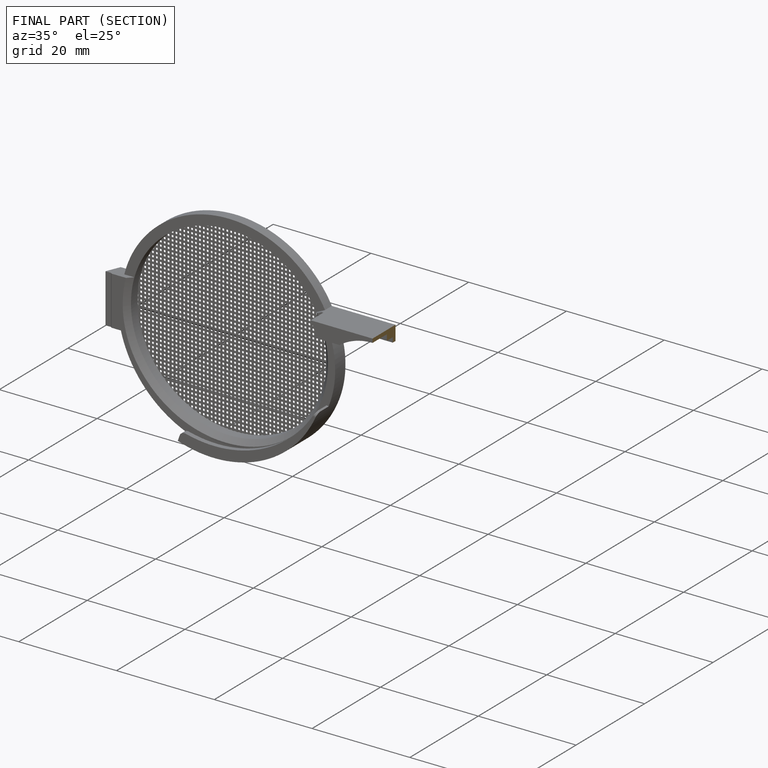
[diagram: finished part — half-section view (interior)]
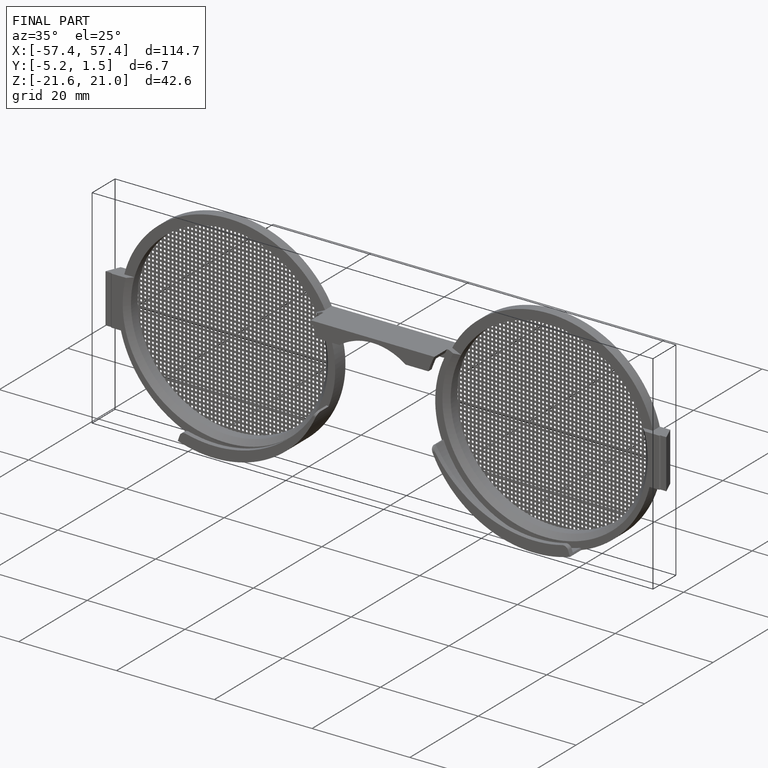
[diagram: finished part — iso view with bounding-box wireframe]
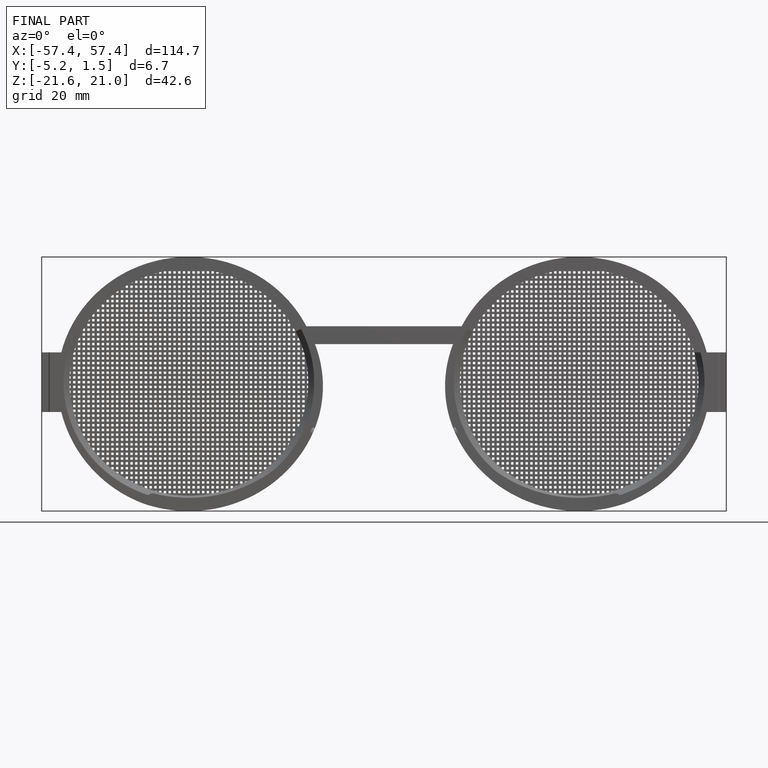
[diagram: finished part — front view with bounding-box wireframe]
